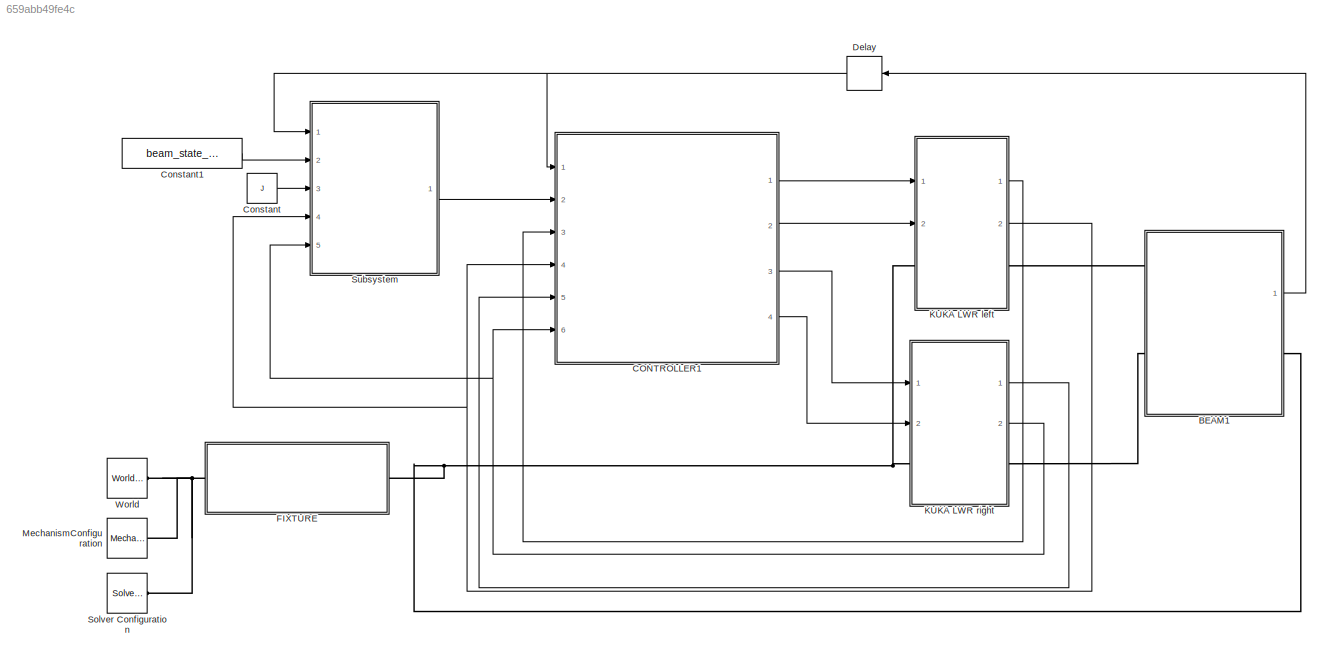
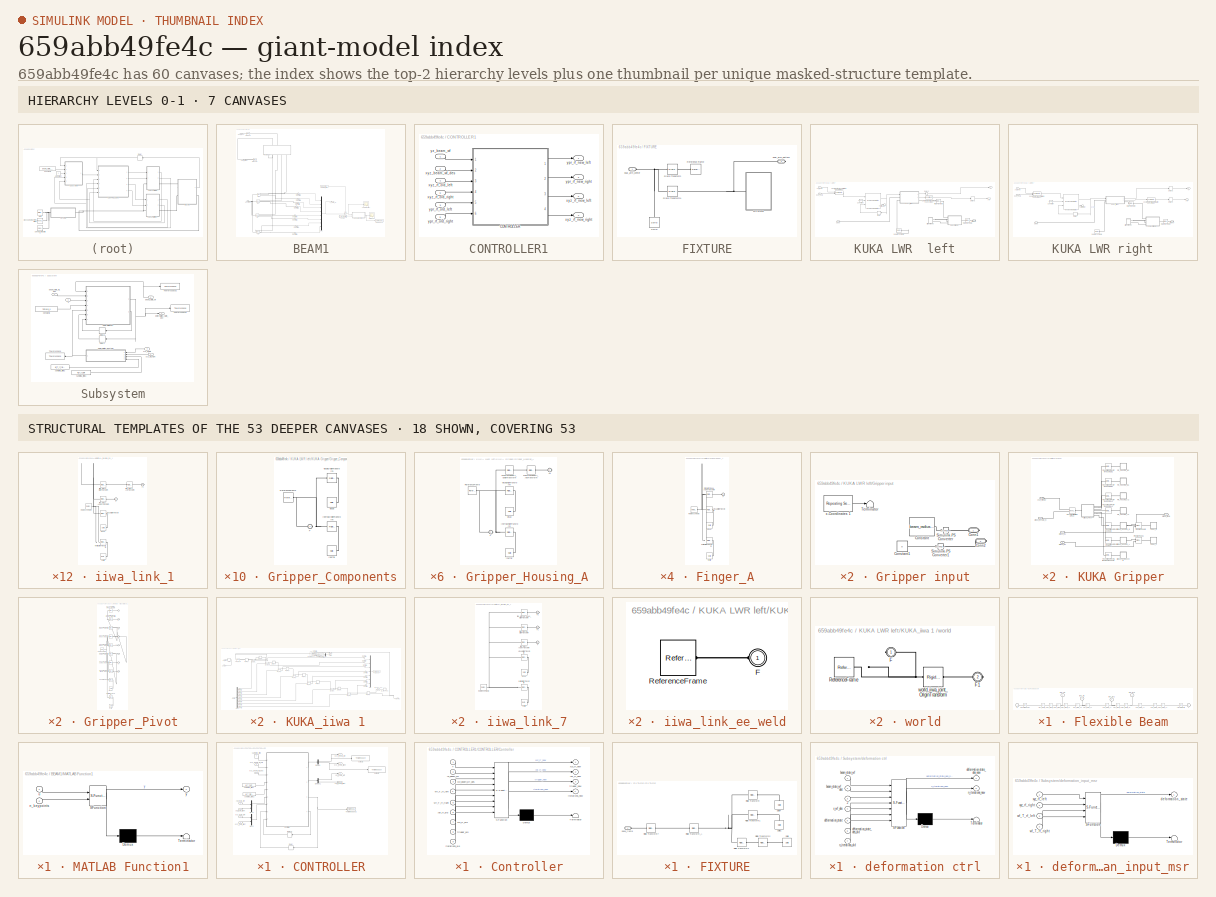
[diagram: thumbnail index - top-2 hierarchy levels (7 canvases) + 18 structural-template representatives of the remaining 53 canvases]
MODEL slx_659abb49fe4c
KIND model
CONFIG AbsTol = auto
CONFIG EnableMultiTasking = off
CONFIG FixedStep = auto
CONFIG MaxStep = auto
CONFIG MinStep = auto
CONFIG RelTol = 1e-3
CONFIG SampleTimeConstraint = Unconstrained
CONFIG Solver = VariableStepAuto
CONFIG SolverName = VariableStepAuto
CONFIG StartTime = 0.0
CONFIG StopTime = 3
BLOCK [SubSystem] BEAM1
  Ports = [0, 1, 0, 0, 0, 2, 1]
  RequestExecContextInheritance = off
BLOCK [Constant] BEAM1/Constant
  Value = n_keypoints
BLOCK [Scope] BEAM1/Coordinates errors1
  Floating = off
  NumInputPorts = 1
  Ports = [1]
  ScopeSpecificationString = Simulink.scopes.TimeScopeBlockCfg('CurrentConfiguration', extmgr.ConfigurationSet(extmgr.Configuration('Core','General UI',true),extmgr.Configuration('Core','Source UI',true),extmgr.Configuration('Sources','WiredSimulink',true,'DataLoggingVariableName','ScopeData1'),extmgr.Configuration('Visuals','Time Domain',true,'SerializedDisplays',{struct('MinYLimReal','-0.02039','MaxYLimReal','0.24956','YLab...<+1903ch>
BLOCK [SubSystem] BEAM1/Flexible Beam
  AncestorBlock = sm_flex_body_lib/Lumped Parameter/Bodies/Flexible Beam
  AttributesFormatString = No of Elem: 12\nRotation: Z
  CopyFcn = %set_param(gcb, 'LinkStatus', 'none')
  Ports = [0, 0, 0, 0, 0, 1, 5]
  RequestExecContextInheritance = off
  Tag = PublishSubsystem
BLOCK [PMIOPort] BEAM1/Flexible Beam/B
  Side = Left
BLOCK [PMIOPort] BEAM1/Flexible Beam/F
  Port = 2
  Side = Right
BLOCK [Reference] BEAM1/Flexible Beam/Flex_Elem_01  REF=sm_flex_body_lib/Lumped Parameter/Bodies/Flex_Element
  Ports = [0, 0, 0, 0, 0, 1, 1]
  SourceBlock = sm_flex_body_lib/Lumped Parameter/Bodies/Flex_Element
  SourceType = Flexible Beam Element
BLOCK [Reference] BEAM1/Flexible Beam/Flex_Elem_02  REF=sm_flex_body_lib/Lumped Parameter/Bodies/Flex_Element
  Ports = [0, 0, 0, 0, 0, 1, 1]
  SourceBlock = sm_flex_body_lib/Lumped Parameter/Bodies/Flex_Element
  SourceType = Flexible Beam Element
BLOCK [Reference] BEAM1/Flexible Beam/Flex_Elem_03  REF=sm_flex_body_lib/Lumped Parameter/Bodies/Flex_Element
  Ports = [0, 0, 0, 0, 0, 1, 1]
  SourceBlock = sm_flex_body_lib/Lumped Parameter/Bodies/Flex_Element
  SourceType = Flexible Beam Element
BLOCK [Reference] BEAM1/Flexible Beam/Flex_Elem_04  REF=sm_flex_body_lib/Lumped Parameter/Bodies/Flex_Element
  Ports = [0, 0, 0, 0, 0, 1, 1]
  SourceBlock = sm_flex_body_lib/Lumped Parameter/Bodies/Flex_Element
  SourceType = Flexible Beam Element
BLOCK [Reference] BEAM1/Flexible Beam/Flex_Elem_05  REF=sm_flex_body_lib/Lumped Parameter/Bodies/Flex_Element
  Ports = [0, 0, 0, 0, 0, 1, 1]
  SourceBlock = sm_flex_body_lib/Lumped Parameter/Bodies/Flex_Element
  SourceType = Flexible Beam Element
BLOCK [Reference] BEAM1/Flexible Beam/Flex_Elem_06  REF=sm_flex_body_lib/Lumped Parameter/Bodies/Flex_Element
  Ports = [0, 0, 0, 0, 0, 1, 1]
  SourceBlock = sm_flex_body_lib/Lumped Parameter/Bodies/Flex_Element
  SourceType = Flexible Beam Element
BLOCK [Reference] BEAM1/Flexible Beam/Flex_Elem_07  REF=sm_flex_body_lib/Lumped Parameter/Bodies/Flex_Element
  Ports = [0, 0, 0, 0, 0, 1, 1]
  SourceBlock = sm_flex_body_lib/Lumped Parameter/Bodies/Flex_Element
  SourceType = Flexible Beam Element
BLOCK [Reference] BEAM1/Flexible Beam/Flex_Elem_08  REF=sm_flex_body_lib/Lumped Parameter/Bodies/Flex_Element
  Ports = [0, 0, 0, 0, 0, 1, 1]
  SourceBlock = sm_flex_body_lib/Lumped Parameter/Bodies/Flex_Element
  SourceType = Flexible Beam Element
BLOCK [Reference] BEAM1/Flexible Beam/Flex_Elem_09  REF=sm_flex_body_lib/Lumped Parameter/Bodies/Flex_Element
  Ports = [0, 0, 0, 0, 0, 1, 1]
  SourceBlock = sm_flex_body_lib/Lumped Parameter/Bodies/Flex_Element
  SourceType = Flexible Beam Element
BLOCK [Reference] BEAM1/Flexible Beam/Flex_Elem_10  REF=sm_flex_body_lib/Lumped Parameter/Bodies/Flex_Element
  Ports = [0, 0, 0, 0, 0, 1, 1]
  SourceBlock = sm_flex_body_lib/Lumped Parameter/Bodies/Flex_Element
  SourceType = Flexible Beam Element
BLOCK [Reference] BEAM1/Flexible Beam/Flex_Elem_11  REF=sm_flex_body_lib/Lumped Parameter/Bodies/Flex_Element
  Ports = [0, 0, 0, 0, 0, 1, 1]
  SourceBlock = sm_flex_body_lib/Lumped Parameter/Bodies/Flex_Element
  SourceType = Flexible Beam Element
BLOCK [Reference] BEAM1/Flexible Beam/Flex_Elem_12  REF=sm_flex_body_lib/Lumped Parameter/Bodies/Flex_Element
  Ports = [0, 0, 0, 0, 0, 1, 1]
  SourceBlock = sm_flex_body_lib/Lumped Parameter/Bodies/Flex_Element
  SourceType = Flexible Beam Element
BLOCK [Reference] BEAM1/Flexible Beam/Transform BeamX  REF=sm_lib/Frames and
Transforms/Rigid
Transform
  Ports = [0, 0, 0, 0, 0, 1, 1]
  SourceBlock = sm_lib/Frames and\nTransforms/Rigid\nTransform
  SourceProductBaseCode = MS
  SourceProductName = Simscape Multibody
  SourceType = Rigid\nTransform
BLOCK [Reference] BEAM1/Flexible Beam/Transform PortF  REF=sm_lib/Frames and
Transforms/Rigid
Transform
  Ports = [0, 0, 0, 0, 0, 1, 1]
  SourceBlock = sm_lib/Frames and\nTransforms/Rigid\nTransform
  SourceProductBaseCode = MS
  SourceProductName = Simscape Multibody
  SourceType = Rigid\nTransform
BLOCK [PMIOPort] BEAM1/Flexible Beam/frame_left1
  Port = 4
  Side = Right
BLOCK [PMIOPort] BEAM1/Flexible Beam/frame_left2
  Port = 3
  Side = Right
BLOCK [PMIOPort] BEAM1/Flexible Beam/frame_right1
  Port = 5
  Side = Right
BLOCK [PMIOPort] BEAM1/Flexible Beam/frame_right2
  Port = 6
  Side = Right
BLOCK [Reference] BEAM1/Gimbal Joint  REF=sm_lib/Joints/Gimbal Joint
  Ports = [0, 0, 0, 0, 0, 1, 1]
  SourceBlock = sm_lib/Joints/Gimbal Joint
  SourceProductBaseCode = MS
  SourceProductName = Simscape Multibody
  SourceType = Gimbal Joint
BLOCK [Reference] BEAM1/Gimbal Joint1  REF=sm_lib/Joints/Gimbal Joint
  Ports = [0, 0, 0, 0, 0, 1, 1]
  SourceBlock = sm_lib/Joints/Gimbal Joint
  SourceProductBaseCode = MS
  SourceProductName = Simscape Multibody
  SourceType = Gimbal Joint
BLOCK [SubSystem] BEAM1/MATLAB Function1
  ErrorFcn = Stateflow.Translate.translate
  PermitHierarchicalResolution = ExplicitOnly
  Ports = [2, 1]
  RequestExecContextInheritance = off
  SFBlockType = MATLAB Function
  TreatAsAtomicUnit = on
BLOCK [Demux] BEAM1/MATLAB Function1/ Demux 
  Outputs = 1
  Ports = [1, 1]
BLOCK [S-Function] BEAM1/MATLAB Function1/ SFunction 
  EnableBusSupport = on
  FunctionName = sf_sfun
  PortCounts = [2 2]
  Ports = [2, 2]
  SFcnIsStateOwnerBlock = off
  SFunctionDeploymentMode = off
  Tag = Stateflow S-Function alignment_bending_procedure_n_4 5
BLOCK [Terminator] BEAM1/MATLAB Function1/ Terminator 
BLOCK [Inport] BEAM1/MATLAB Function1/n_keypoints
  IconDisplay = Port number
  Port = 2
BLOCK [Inport] BEAM1/MATLAB Function1/u
  IconDisplay = Port number
BLOCK [Outport] BEAM1/MATLAB Function1/y
  IconDisplay = Port number
BLOCK [Mux] BEAM1/Mux1
  DisplayOption = bar
  Inputs = 8
  Ports = [8, 1]
BLOCK [Reference] BEAM1/PS-Simulink Converter1  REF=nesl_utility/PS-Simulink
Converter
  Ports = [0, 1, 0, 0, 0, 1]
  SourceBlock = nesl_utility/PS-Simulink\nConverter
  SourceProductBaseCode = SS
  SourceProductName = Simscape
  SourceType = PS-Simulink\nConverter
BLOCK [Reference] BEAM1/PS-Simulink Converter11  REF=nesl_utility/PS-Simulink
Converter
  Ports = [0, 1, 0, 0, 0, 1]
  SourceBlock = nesl_utility/PS-Simulink\nConverter
  SourceProductBaseCode = SS
  SourceProductName = Simscape
  SourceType = PS-Simulink\nConverter
BLOCK [Reference] BEAM1/PS-Simulink Converter12  REF=nesl_utility/PS-Simulink
Converter
  Ports = [0, 1, 0, 0, 0, 1]
  SourceBlock = nesl_utility/PS-Simulink\nConverter
  SourceProductBaseCode = SS
  SourceProductName = Simscape
  SourceType = PS-Simulink\nConverter
BLOCK [Reference] BEAM1/PS-Simulink Converter2  REF=nesl_utility/PS-Simulink
Converter
  Ports = [0, 1, 0, 0, 0, 1]
  SourceBlock = nesl_utility/PS-Simulink\nConverter
  SourceProductBaseCode = SS
  SourceProductName = Simscape
  SourceType = PS-Simulink\nConverter
BLOCK [Reference] BEAM1/PS-Simulink Converter3  REF=nesl_utility/PS-Simulink
Converter
  Ports = [0, 1, 0, 0, 0, 1]
  SourceBlock = nesl_utility/PS-Simulink\nConverter
  SourceProductBaseCode = SS
  SourceProductName = Simscape
  SourceType = PS-Simulink\nConverter
BLOCK [Reference] BEAM1/PS-Simulink Converter4  REF=nesl_utility/PS-Simulink
Converter
  Ports = [0, 1, 0, 0, 0, 1]
  SourceBlock = nesl_utility/PS-Simulink\nConverter
  SourceProductBaseCode = SS
  SourceProductName = Simscape
  SourceType = PS-Simulink\nConverter
BLOCK [Reference] BEAM1/PS-Simulink Converter7  REF=nesl_utility/PS-Simulink
Converter
  Ports = [0, 1, 0, 0, 0, 1]
  SourceBlock = nesl_utility/PS-Simulink\nConverter
  SourceProductBaseCode = SS
  SourceProductName = Simscape
  SourceType = PS-Simulink\nConverter
BLOCK [Reference] BEAM1/PS-Simulink Converter8  REF=nesl_utility/PS-Simulink
Converter
  Ports = [0, 1, 0, 0, 0, 1]
  SourceBlock = nesl_utility/PS-Simulink\nConverter
  SourceProductBaseCode = SS
  SourceProductName = Simscape
  SourceType = PS-Simulink\nConverter
BLOCK [Sum] BEAM1/Sum1
  IconShape = round
  InputSameDT = off
  Inputs = -+|
  OutDataTypeStr = Inherit: Inherit via internal rule
  Ports = [2, 1]
  SaturateOnIntegerOverflow = off
BLOCK [ToWorkspace] BEAM1/To Workspace1
  FixptAsFi = on
  MaxDataPoints = inf
  Ports = [1]
  SampleTime = T
  Save2DSignal = 2-D array (concatenate along first dimension)
  VariableName = error_norm
BLOCK [PMIOPort] BEAM1/base_frame
  Port = 3
  Side = Right
BLOCK [PMIOPort] BEAM1/beam_base
  Side = Left
BLOCK [PMIOPort] BEAM1/beam_follower
  Port = 2
  Side = Left
BLOCK [Scope] BEAM1/error measure
  Floating = off
  NumInputPorts = 1
  Ports = [1]
  ScopeSpecificationString = Simulink.scopes.TimeScopeBlockCfg('CurrentConfiguration', extmgr.ConfigurationSet(extmgr.Configuration('Core','General UI',true),extmgr.Configuration('Core','Source UI',true),extmgr.Configuration('Sources','WiredSimulink',true,'DataLoggingVariableName','ScopeData2'),extmgr.Configuration('Visuals','Time Domain',true,'SerializedDisplays',{struct('MinYLimReal','-0.01312','MaxYLimReal','0.13274','YLab...<+1933ch>
BLOCK [Reference] BEAM1/left1  REF=sm_lib/Frames and
Transforms/Transform
Sensor
  Ports = [0, 0, 0, 0, 0, 1, 3]
  SourceBlock = sm_lib/Frames and\nTransforms/Transform\nSensor
  SourceProductBaseCode = MS
  SourceProductName = Simscape Multibody
  SourceType = Transform\nSensor
BLOCK [Reference] BEAM1/left2  REF=sm_lib/Frames and
Transforms/Transform
Sensor
  Ports = [0, 0, 0, 0, 0, 1, 3]
  SourceBlock = sm_lib/Frames and\nTransforms/Transform\nSensor
  SourceProductBaseCode = MS
  SourceProductName = Simscape Multibody
  SourceType = Transform\nSensor
BLOCK [Reference] BEAM1/right1  REF=sm_lib/Frames and
Transforms/Transform
Sensor
  Ports = [0, 0, 0, 0, 0, 1, 3]
  SourceBlock = sm_lib/Frames and\nTransforms/Transform\nSensor
  SourceProductBaseCode = MS
  SourceProductName = Simscape Multibody
  SourceType = Transform\nSensor
BLOCK [Reference] BEAM1/right2  REF=sm_lib/Frames and
Transforms/Transform
Sensor
  Ports = [0, 0, 0, 0, 0, 1, 3]
  SourceBlock = sm_lib/Frames and\nTransforms/Transform\nSensor
  SourceProductBaseCode = MS
  SourceProductName = Simscape Multibody
  SourceType = Transform\nSensor
BLOCK [Constant] BEAM1/sampling_time2
  Value = beam_state_wf_des
BLOCK [Outport] BEAM1/yz_beam_wf
  IconDisplay = Port number
BLOCK [SubSystem] CONTROLLER1
  Ports = [6, 4]
  RequestExecContextInheritance = off
BLOCK [SubSystem] CONTROLLER1/CONTROLLER
  Ports = [6, 4]
  RequestExecContextInheritance = off
BLOCK [SubSystem] CONTROLLER1/CONTROLLER/Controller
  ErrorFcn = Stateflow.Translate.translate
  PermitHierarchicalResolution = ExplicitOnly
  Ports = [9, 4]
  RequestExecContextInheritance = off
  SFBlockType = MATLAB Function
  TreatAsAtomicUnit = on
BLOCK [Demux] CONTROLLER1/CONTROLLER/Controller/ Demux 
  Outputs = 1
  Ports = [1, 1]
BLOCK [S-Function] CONTROLLER1/CONTROLLER/Controller/ SFunction 
  EnableBusSupport = on
  FunctionName = sf_sfun
  PortCounts = [9 5]
  Ports = [9, 5]
  SFcnIsStateOwnerBlock = off
  SFunctionDeploymentMode = off
  Tag = Stateflow S-Function alignment_bending_procedure_n_4 2
BLOCK [Terminator] CONTROLLER1/CONTROLLER/Controller/ Terminator 
BLOCK [Inport] CONTROLLER1/CONTROLLER/Controller/T
  IconDisplay = Port number
BLOCK [Outport] CONTROLLER1/CONTROLLER/Controller/iterations_new
  IconDisplay = Port number
  Port = 4
BLOCK [Inport] CONTROLLER1/CONTROLLER/Controller/iterations_old
  IconDisplay = Port number
  Port = 9
BLOCK [Outport] CONTROLLER1/CONTROLLER/Controller/trigger_new
  IconDisplay = Port number
  Port = 3
BLOCK [Inport] CONTROLLER1/CONTROLLER/Controller/trigger_old
  IconDisplay = Port number
  Port = 8
BLOCK [Inport] CONTROLLER1/CONTROLLER/Controller/wf_T_rf_left
  IconDisplay = Port number
  Port = 4
BLOCK [Inport] CONTROLLER1/CONTROLLER/Controller/wf_T_rf_right
  IconDisplay = Port number
  Port = 5
BLOCK [Inport] CONTROLLER1/CONTROLLER/Controller/xyz_beam_wf_des
  IconDisplay = Port number
  Port = 3
BLOCK [Outport] CONTROLLER1/CONTROLLER/Controller/xyz_rf_new
  IconDisplay = Port number
BLOCK [Inport] CONTROLLER1/CONTROLLER/Controller/xyz_rf_old
  IconDisplay = Port number
  Port = 7
BLOCK [Outport] CONTROLLER1/CONTROLLER/Controller/ypr_rf_new
  IconDisplay = Port number
  Port = 2
BLOCK [Inport] CONTROLLER1/CONTROLLER/Controller/ypr_rf_old
  IconDisplay = Port number
  Port = 6
BLOCK [Inport] CONTROLLER1/CONTROLLER/Controller/yz_beam_wf
  IconDisplay = Port number
  Port = 2
BLOCK [Delay] CONTROLLER1/CONTROLLER/Delay
  DelayLength = 1
  InitialCondition = zeros(5,1)
  InputPortMap = u0
  Ports = [1, 1]
BLOCK [Delay] CONTROLLER1/CONTROLLER/Delay2
  DelayLength = 1
  InitialCondition = 0
  InputPortMap = u0
  Ports = [1, 1]
  SampleTime = T
BLOCK [Demux] CONTROLLER1/CONTROLLER/Demux
  DisplayOption = bar
  Outputs = [3 3]
  Ports = [1, 2]
BLOCK [Demux] CONTROLLER1/CONTROLLER/Demux1
  DisplayOption = bar
  Outputs = [3 3]
  Ports = [1, 2]
BLOCK [Mux] CONTROLLER1/CONTROLLER/Mux1
  DisplayOption = bar
  Inputs = 2
  Ports = [2, 1]
BLOCK [Mux] CONTROLLER1/CONTROLLER/Mux2
  DisplayOption = bar
  Inputs = 2
  Ports = [2, 1]
BLOCK [ToWorkspace] CONTROLLER1/CONTROLLER/To Workspace2
  FixptAsFi = on
  MaxDataPoints = inf
  Ports = [1]
  SampleTime = -1
  Save2DSignal = 3-D array (concatenate along third dimension)
  VariableName = trigger
BLOCK [ToWorkspace] CONTROLLER1/CONTROLLER/output1
  FixptAsFi = on
  MaxDataPoints = inf
  Ports = [1]
  SampleTime = -1
  Save2DSignal = 2-D array (concatenate along first dimension)
  VariableName = xyz_rf_new_left
BLOCK [ToWorkspace] CONTROLLER1/CONTROLLER/output2
  FixptAsFi = on
  MaxDataPoints = inf
  Ports = [1]
  SampleTime = -1
  Save2DSignal = 2-D array (concatenate along first dimension)
  VariableName = xyz_rf_new_right
BLOCK [Constant] CONTROLLER1/CONTROLLER/sampling_time
  Value = T
BLOCK [Constant] CONTROLLER1/CONTROLLER/sampling_time1
  Value = wf_T_rf_left
BLOCK [Constant] CONTROLLER1/CONTROLLER/sampling_time2
  Value = wf_T_rf_right
BLOCK [Inport] CONTROLLER1/CONTROLLER/xyz_beam_wf_des
  IconDisplay = Port number
  Port = 2
BLOCK [Inport] CONTROLLER1/CONTROLLER/xyz_beam_wf_old
  IconDisplay = Port number
BLOCK [Outport] CONTROLLER1/CONTROLLER/xyz_rf_new_left
  IconDisplay = Port number
  Port = 3
BLOCK [Outport] CONTROLLER1/CONTROLLER/xyz_rf_new_right
  IconDisplay = Port number
  Port = 4
BLOCK [Inport] CONTROLLER1/CONTROLLER/xyz_rf_old_left 
  IconDisplay = Port number
  Port = 3
BLOCK [Inport] CONTROLLER1/CONTROLLER/xyz_rf_old_right
  IconDisplay = Port number
  Port = 4
BLOCK [Outport] CONTROLLER1/CONTROLLER/ypr_rf_new_left
  IconDisplay = Port number
BLOCK [Outport] CONTROLLER1/CONTROLLER/ypr_rf_new_right
  IconDisplay = Port number
  Port = 2
BLOCK [Inport] CONTROLLER1/CONTROLLER/ypr_rf_old_left
  IconDisplay = Port number
  Port = 5
BLOCK [Inport] CONTROLLER1/CONTROLLER/ypr_rf_old_right
  IconDisplay = Port number
  Port = 6
BLOCK [Inport] CONTROLLER1/xyz_beam_wf_des
  IconDisplay = Port number
  Port = 2
BLOCK [Outport] CONTROLLER1/xyz_rf_new_left
  IconDisplay = Port number
  Port = 2
BLOCK [Outport] CONTROLLER1/xyz_rf_new_right
  IconDisplay = Port number
  Port = 4
BLOCK [Inport] CONTROLLER1/xyz_rf_old_left
  IconDisplay = Port number
  Port = 4
BLOCK [Inport] CONTROLLER1/xyz_rf_old_right
  IconDisplay = Port number
  Port = 6
BLOCK [Outport] CONTROLLER1/ypr_rf_new_left
  IconDisplay = Port number
BLOCK [Outport] CONTROLLER1/ypr_rf_new_right
  IconDisplay = Port number
  Port = 3
BLOCK [Inport] CONTROLLER1/ypr_rf_old_left
  IconDisplay = Port number
  Port = 3
BLOCK [Inport] CONTROLLER1/ypr_rf_old_right
  IconDisplay = Port number
  Port = 5
BLOCK [Inport] CONTROLLER1/yz_beam_wf
  IconDisplay = Port number
BLOCK [Constant] Constant
  Value = J
BLOCK [Constant] Constant1
  Value = beam_state_wf_des
BLOCK [Delay] Delay
  DelayLength = 1
  InitialCondition = -9999*ones(2*n_keypoints,1)
  InputPortMap = u0
  Ports = [1, 1]
BLOCK [SubSystem] FIXTURE
  Ports = [0, 0, 0, 0, 0, 1, 1]
  RequestExecContextInheritance = off
BLOCK [SubSystem] FIXTURE/FIXTURE
  Ports = [0, 0, 0, 0, 0, 1]
  RequestExecContextInheritance = off
BLOCK [Reference] FIXTURE/FIXTURE/Rigid Transform  REF=sm_lib/Frames and
Transforms/Rigid
Transform
  Ports = [0, 0, 0, 0, 0, 1, 1]
  SourceBlock = sm_lib/Frames and\nTransforms/Rigid\nTransform
  SourceProductBaseCode = MS
  SourceProductName = Simscape Multibody
  SourceType = Rigid\nTransform
BLOCK [Reference] FIXTURE/FIXTURE/Rigid Transform1  REF=sm_lib/Frames and
Transforms/Rigid
Transform
  Ports = [0, 0, 0, 0, 0, 1, 1]
  SourceBlock = sm_lib/Frames and\nTransforms/Rigid\nTransform
  SourceProductBaseCode = MS
  SourceProductName = Simscape Multibody
  SourceType = Rigid\nTransform
BLOCK [Reference] FIXTURE/FIXTURE/Rigid Transform2  REF=sm_lib/Frames and
Transforms/Rigid
Transform
  Ports = [0, 0, 0, 0, 0, 1, 1]
  SourceBlock = sm_lib/Frames and\nTransforms/Rigid\nTransform
  SourceProductBaseCode = MS
  SourceProductName = Simscape Multibody
  SourceType = Rigid\nTransform
BLOCK [Reference] FIXTURE/FIXTURE/Rigid Transform3  REF=sm_lib/Frames and
Transforms/Rigid
Transform
  Ports = [0, 0, 0, 0, 0, 1, 1]
  SourceBlock = sm_lib/Frames and\nTransforms/Rigid\nTransform
  SourceProductBaseCode = MS
  SourceProductName = Simscape Multibody
  SourceType = Rigid\nTransform
BLOCK [Reference] FIXTURE/FIXTURE/Rigid Transform7  REF=sm_lib/Frames and
Transforms/Rigid
Transform
  Ports = [0, 0, 0, 0, 0, 1, 1]
  SourceBlock = sm_lib/Frames and\nTransforms/Rigid\nTransform
  SourceProductBaseCode = MS
  SourceProductName = Simscape Multibody
  SourceType = Rigid\nTransform
BLOCK [Reference] FIXTURE/FIXTURE/Rigid Transform_A  REF=sm_lib/Frames and
Transforms/Rigid
Transform
  Ports = [0, 0, 0, 0, 0, 1, 1]
  SourceBlock = sm_lib/Frames and\nTransforms/Rigid\nTransform
  SourceProductBaseCode = MS
  SourceProductName = Simscape Multibody
  SourceType = Rigid\nTransform
BLOCK [Reference] FIXTURE/FIXTURE/Solid  REF=sm_lib/Body Elements/Solid
  Ports = [0, 0, 0, 0, 0, 0, 1]
  SourceBlock = sm_lib/Body Elements/Solid
  SourceProductBaseCode = MS
  SourceProductName = Simscape Multibody
  SourceType = Solid
BLOCK [Reference] FIXTURE/FIXTURE/Solid1  REF=sm_lib/Body Elements/Solid
  Ports = [0, 0, 0, 0, 0, 0, 1]
  SourceBlock = sm_lib/Body Elements/Solid
  SourceProductBaseCode = MS
  SourceProductName = Simscape Multibody
  SourceType = Solid
BLOCK [Reference] FIXTURE/FIXTURE/Solid4  REF=sm_lib/Body Elements/Solid
  Ports = [0, 0, 0, 0, 0, 0, 1]
  SourceBlock = sm_lib/Body Elements/Solid
  SourceProductBaseCode = MS
  SourceProductName = Simscape Multibody
  SourceType = Solid
BLOCK [PMIOPort] FIXTURE/FIXTURE/base_frame
  Side = Left
BLOCK [Reference] FIXTURE/Reference Frame  REF=sm_lib/Frames and
Transforms/Reference
Frame
  Ports = [0, 0, 0, 0, 0, 0, 1]
  SourceBlock = sm_lib/Frames and\nTransforms/Reference\nFrame
  SourceProductBaseCode = MS
  SourceProductName = Simscape Multibody
  SourceType = Reference\nFrame
BLOCK [Reference] FIXTURE/Rigid Transform  REF=sm_lib/Frames and
Transforms/Rigid
Transform
  Ports = [0, 0, 0, 0, 0, 1, 1]
  SourceBlock = sm_lib/Frames and\nTransforms/Rigid\nTransform
  SourceProductBaseCode = MS
  SourceProductName = Simscape Multibody
  SourceType = Rigid\nTransform
BLOCK [Reference] FIXTURE/Rigid Transform1  REF=sm_lib/Frames and
Transforms/Rigid
Transform
  Ports = [0, 0, 0, 0, 0, 1, 1]
  SourceBlock = sm_lib/Frames and\nTransforms/Rigid\nTransform
  SourceProductBaseCode = MS
  SourceProductName = Simscape Multibody
  SourceType = Rigid\nTransform
BLOCK [Reference] FIXTURE/Solid  REF=sm_lib/Body Elements/Solid
  Ports = [0, 0, 0, 0, 0, 0, 1]
  SourceBlock = sm_lib/Body Elements/Solid
  SourceProductBaseCode = MS
  SourceProductName = Simscape Multibody
  SourceType = Solid
BLOCK [PMIOPort] FIXTURE/dual_arm_bottom
  Port = 2
  Side = Right
BLOCK [PMIOPort] FIXTURE/dual_arm_center
  Side = Left
BLOCK [SubSystem] KUKA LWR  left
  Ports = [2, 2, 0, 0, 0, 1, 1]
  RequestExecContextInheritance = off
BLOCK [Constant] KUKA LWR  left/Constant
  Value = [1 1 1 1 1 1]
BLOCK [Reference] KUKA LWR  left/Coordinate Transformation Conversion  REF=robotcorelib/Coordinate Transformation Conversion
  Ports = [1, 1]
  SourceBlock = robotcorelib/Coordinate Transformation Conversion
  SourceProductBaseCode = RO
  SourceProductName = Robotics System Toolbox
  SourceType = robotics.slcore.internal.block.CoordinateTransformationConversion
BLOCK [Reference] KUKA LWR  left/Coordinate Transformation Conversion1  REF=robotcorelib/Coordinate Transformation Conversion
  Ports = [2, 1]
  SourceBlock = robotcorelib/Coordinate Transformation Conversion
  SourceProductBaseCode = RO
  SourceProductName = Robotics System Toolbox
  SourceType = robotics.slcore.internal.block.CoordinateTransformationConversion
BLOCK [Delay] KUKA LWR  left/Delay
  DelayLength = 1
  InitialCondition = [0 0 0 0 0 0 0]'
  InputPortMap = u0
  Ports = [1, 1]
  SampleTime = T
BLOCK [Delay] KUKA LWR  left/Delay1
  DelayLength = 1
  InitialCondition = ee_initial_orientation
  InputPortMap = u0
  Ports = [1, 1]
BLOCK [Delay] KUKA LWR  left/Delay2
  DelayLength = 1
  InitialCondition = ee_initial_position
  InputPortMap = u0
  Ports = [1, 1]
BLOCK [SubSystem] KUKA LWR  left/Gripper input
  Ports = [0, 0, 0, 0, 0, 0, 2]
  RequestExecContextInheritance = off
BLOCK [PMIOPort] KUKA LWR  left/Gripper input/Conn1
  Side = Right
BLOCK [PMIOPort] KUKA LWR  left/Gripper input/Conn2
  Port = 2
  Side = Right
BLOCK [Constant] KUKA LWR  left/Gripper input/Constant
  SampleTime = T
  Value = beam_radius/2
BLOCK [Constant] KUKA LWR  left/Gripper input/Constant1
  Value = 0
BLOCK [Reference] KUKA LWR  left/Gripper input/Simulink-PS Converter  REF=nesl_utility/Simulink-PS
Converter
  Ports = [1, 0, 0, 0, 0, 0, 1]
  SourceBlock = nesl_utility/Simulink-PS\nConverter
  SourceProductBaseCode = SS
  SourceProductName = Simscape
  SourceType = Simulink-PS\nConverter
BLOCK [Reference] KUKA LWR  left/Gripper input/Simulink-PS Converter1  REF=nesl_utility/Simulink-PS
Converter
  Ports = [1, 0, 0, 0, 0, 0, 1]
  SourceBlock = nesl_utility/Simulink-PS\nConverter
  SourceProductBaseCode = SS
  SourceProductName = Simscape
  SourceType = Simulink-PS\nConverter
BLOCK [Terminator] KUKA LWR  left/Gripper input/Terminator
BLOCK [Reference] KUKA LWR  left/Gripper input/x-Coordinates 1  REF=simulink/Sources/Repeating
Sequence
Interpolated
  Ports = [0, 1]
  SourceBlock = simulink/Sources/Repeating\nSequence\nInterpolated
  SourceProductBaseCode = SL
  SourceProductName = Simulink
  SourceType = Repeating Sequence Interpolated
BLOCK [Reference] KUKA LWR  left/Inverse Kinematics  REF=robotmaniplib/Inverse Kinematics
  Ports = [3, 2]
  SourceBlock = robotmaniplib/Inverse Kinematics
  SourceProductBaseCode = RO
  SourceProductName = Robotics System Toolbox
  SourceType = Inverse Kinematics
BLOCK [SubSystem] KUKA LWR  left/KUKA Gripper
  Ports = [0, 0, 0, 0, 0, 4, 1]
  RequestExecContextInheritance = off
BLOCK [SubSystem] KUKA LWR  left/KUKA Gripper/Finger_A
  Ports = [0, 0, 0, 0, 0, 1]
  RequestExecContextInheritance = off
BLOCK [PMIOPort] KUKA LWR  left/KUKA Gripper/Finger_A/F
  Side = Left
BLOCK [Reference] KUKA LWR  left/KUKA Gripper/Finger_A/Inertia  REF=sm_lib/Body Elements/Solid
  Ports = [0, 0, 0, 0, 0, 0, 1]
  SourceBlock = sm_lib/Body Elements/Solid
  SourceProductBaseCode = MS
  SourceProductName = Simscape Multibody
  SourceType = Solid
BLOCK [Reference] KUKA LWR  left/KUKA Gripper/Finger_A/InertiaOriginTransform  REF=sm_lib/Frames and
Transforms/Rigid
Transform
  Ports = [0, 0, 0, 0, 0, 1, 1]
  SourceBlock = sm_lib/Frames and\nTransforms/Rigid\nTransform
  SourceProductBaseCode = MS
  SourceProductName = Simscape Multibody
  SourceType = Rigid\nTransform
BLOCK [Reference] KUKA LWR  left/KUKA Gripper/Finger_A/PrismaticFingerA_AxisInvTransform  REF=sm_lib/Frames and
Transforms/Rigid
Transform
  Ports = [0, 0, 0, 0, 0, 1, 1]
  SourceBlock = sm_lib/Frames and\nTransforms/Rigid\nTransform
  SourceProductBaseCode = MS
  SourceProductName = Simscape Multibody
  SourceType = Rigid\nTransform
BLOCK [Reference] KUKA LWR  left/KUKA Gripper/Finger_A/ReferenceFrame  REF=sm_lib/Frames and
Transforms/Reference
Frame
  Ports = [0, 0, 0, 0, 0, 0, 1]
  SourceBlock = sm_lib/Frames and\nTransforms/Reference\nFrame
  SourceProductBaseCode = MS
  SourceProductName = Simscape Multibody
  SourceType = Reference\nFrame
BLOCK [Reference] KUKA LWR  left/KUKA Gripper/Finger_A/Visual  REF=sm_lib/Body Elements/Solid
  Ports = [0, 0, 0, 0, 0, 0, 1]
  SourceBlock = sm_lib/Body Elements/Solid
  SourceProductBaseCode = MS
  SourceProductName = Simscape Multibody
  SourceType = Solid
BLOCK [Reference] KUKA LWR  left/KUKA Gripper/Finger_A/VisualOriginTransform  REF=sm_lib/Frames and
Transforms/Rigid
Transform
  Ports = [0, 0, 0, 0, 0, 1, 1]
  SourceBlock = sm_lib/Frames and\nTransforms/Rigid\nTransform
  SourceProductBaseCode = MS
  SourceProductName = Simscape Multibody
  SourceType = Rigid\nTransform
BLOCK [SubSystem] KUKA LWR  left/KUKA Gripper/Finger_B
  Ports = [0, 0, 0, 0, 0, 1]
  RequestExecContextInheritance = off
BLOCK [PMIOPort] KUKA LWR  left/KUKA Gripper/Finger_B/F
  Side = Left
BLOCK [Reference] KUKA LWR  left/KUKA Gripper/Finger_B/Inertia  REF=sm_lib/Body Elements/Solid
  Ports = [0, 0, 0, 0, 0, 0, 1]
  SourceBlock = sm_lib/Body Elements/Solid
  SourceProductBaseCode = MS
  SourceProductName = Simscape Multibody
  SourceType = Solid
BLOCK [Reference] KUKA LWR  left/KUKA Gripper/Finger_B/InertiaOriginTransform  REF=sm_lib/Frames and
Transforms/Rigid
Transform
  Ports = [0, 0, 0, 0, 0, 1, 1]
  SourceBlock = sm_lib/Frames and\nTransforms/Rigid\nTransform
  SourceProductBaseCode = MS
  SourceProductName = Simscape Multibody
  SourceType = Rigid\nTransform
BLOCK [Reference] KUKA LWR  left/KUKA Gripper/Finger_B/PrismaticFingerB_AxisInvTransform  REF=sm_lib/Frames and
Transforms/Rigid
Transform
  Ports = [0, 0, 0, 0, 0, 1, 1]
  SourceBlock = sm_lib/Frames and\nTransforms/Rigid\nTransform
  SourceProductBaseCode = MS
  SourceProductName = Simscape Multibody
  SourceType = Rigid\nTransform
BLOCK [Reference] KUKA LWR  left/KUKA Gripper/Finger_B/ReferenceFrame  REF=sm_lib/Frames and
Transforms/Reference
Frame
  Ports = [0, 0, 0, 0, 0, 0, 1]
  SourceBlock = sm_lib/Frames and\nTransforms/Reference\nFrame
  SourceProductBaseCode = MS
  SourceProductName = Simscape Multibody
  SourceType = Reference\nFrame
BLOCK [Reference] KUKA LWR  left/KUKA Gripper/Finger_B/Visual  REF=sm_lib/Body Elements/Solid
  Ports = [0, 0, 0, 0, 0, 0, 1]
  SourceBlock = sm_lib/Body Elements/Solid
  SourceProductBaseCode = MS
  SourceProductName = Simscape Multibody
  SourceType = Solid
BLOCK [Reference] KUKA LWR  left/KUKA Gripper/Finger_B/VisualOriginTransform  REF=sm_lib/Frames and
Transforms/Rigid
Transform
  Ports = [0, 0, 0, 0, 0, 1, 1]
  SourceBlock = sm_lib/Frames and\nTransforms/Rigid\nTransform
  SourceProductBaseCode = MS
  SourceProductName = Simscape Multibody
  SourceType = Rigid\nTransform
BLOCK [Reference] KUKA LWR  left/KUKA Gripper/FixedGripperPivotGripperComponents  REF=sm_lib/Joints/Weld Joint
  Ports = [0, 0, 0, 0, 0, 1, 1]
  SourceBlock = sm_lib/Joints/Weld Joint
  SourceProductBaseCode = MS
  SourceProductName = Simscape Multibody
  SourceType = Weld Joint
BLOCK [Reference] KUKA LWR  left/KUKA Gripper/FixedGripperPivotHousingA  REF=sm_lib/Joints/Weld Joint
  Ports = [0, 0, 0, 0, 0, 1, 1]
  SourceBlock = sm_lib/Joints/Weld Joint
  SourceProductBaseCode = MS
  SourceProductName = Simscape Multibody
  SourceType = Weld Joint
BLOCK [Reference] KUKA LWR  left/KUKA Gripper/FixedGripperPivotHousingB  REF=sm_lib/Joints/Weld Joint
  Ports = [0, 0, 0, 0, 0, 1, 1]
  SourceBlock = sm_lib/Joints/Weld Joint
  SourceProductBaseCode = MS
  SourceProductName = Simscape Multibody
  SourceType = Weld Joint
BLOCK [Reference] KUKA LWR  left/KUKA Gripper/FixedGripperPivotPinHousingA1  REF=sm_lib/Joints/Weld Joint
  Ports = [0, 0, 0, 0, 0, 1, 1]
  SourceBlock = sm_lib/Joints/Weld Joint
  SourceProductBaseCode = MS
  SourceProductName = Simscape Multibody
  SourceType = Weld Joint
BLOCK [Reference] KUKA LWR  left/KUKA Gripper/FixedGripperPivotPinHousingA2  REF=sm_lib/Joints/Weld Joint
  Ports = [0, 0, 0, 0, 0, 1, 1]
  SourceBlock = sm_lib/Joints/Weld Joint
  SourceProductBaseCode = MS
  SourceProductName = Simscape Multibody
  SourceType = Weld Joint
BLOCK [Reference] KUKA LWR  left/KUKA Gripper/FixedGripperPivotPinHousingB1  REF=sm_lib/Joints/Weld Joint
  Ports = [0, 0, 0, 0, 0, 1, 1]
  SourceBlock = sm_lib/Joints/Weld Joint
  SourceProductBaseCode = MS
  SourceProductName = Simscape Multibody
  SourceType = Weld Joint
BLOCK [Reference] KUKA LWR  left/KUKA Gripper/FixedGripperPivotPinHousingB2  REF=sm_lib/Joints/Weld Joint
  Ports = [0, 0, 0, 0, 0, 1, 1]
  SourceBlock = sm_lib/Joints/Weld Joint
  SourceProductBaseCode = MS
  SourceProductName = Simscape Multibody
  SourceType = Weld Joint
BLOCK [SubSystem] KUKA LWR  left/KUKA Gripper/Gripper_Components
  Ports = [0, 0, 0, 0, 0, 1]
  RequestExecContextInheritance = off
BLOCK [PMIOPort] KUKA LWR  left/KUKA Gripper/Gripper_Components/F
  Side = Left
BLOCK [Reference] KUKA LWR  left/KUKA Gripper/Gripper_Components/Inertia  REF=sm_lib/Body Elements/Solid
  Ports = [0, 0, 0, 0, 0, 0, 1]
  SourceBlock = sm_lib/Body Elements/Solid
  SourceProductBaseCode = MS
  SourceProductName = Simscape Multibody
  SourceType = Solid
BLOCK [Reference] KUKA LWR  left/KUKA Gripper/Gripper_Components/InertiaOriginTransform  REF=sm_lib/Frames and
Transforms/Rigid
Transform
  Ports = [0, 0, 0, 0, 0, 1, 1]
  SourceBlock = sm_lib/Frames and\nTransforms/Rigid\nTransform
  SourceProductBaseCode = MS
  SourceProductName = Simscape Multibody
  SourceType = Rigid\nTransform
BLOCK [Reference] KUKA LWR  left/KUKA Gripper/Gripper_Components/ReferenceFrame  REF=sm_lib/Frames and
Transforms/Reference
Frame
  Ports = [0, 0, 0, 0, 0, 0, 1]
  SourceBlock = sm_lib/Frames and\nTransforms/Reference\nFrame
  SourceProductBaseCode = MS
  SourceProductName = Simscape Multibody
  SourceType = Reference\nFrame
BLOCK [Reference] KUKA LWR  left/KUKA Gripper/Gripper_Components/Visual  REF=sm_lib/Body Elements/Solid
  Ports = [0, 0, 0, 0, 0, 0, 1]
  SourceBlock = sm_lib/Body Elements/Solid
  SourceProductBaseCode = MS
  SourceProductName = Simscape Multibody
  SourceType = Solid
BLOCK [Reference] KUKA LWR  left/KUKA Gripper/Gripper_Components/VisualOriginTransform  REF=sm_lib/Frames and
Transforms/Rigid
Transform
  Ports = [0, 0, 0, 0, 0, 1, 1]
  SourceBlock = sm_lib/Frames and\nTransforms/Rigid\nTransform
  SourceProductBaseCode = MS
  SourceProductName = Simscape Multibody
  SourceType = Rigid\nTransform
BLOCK [SubSystem] KUKA LWR  left/KUKA Gripper/Gripper_Housing_A
  Ports = [0, 0, 0, 0, 0, 1, 1]
  RequestExecContextInheritance = off
BLOCK [PMIOPort] KUKA LWR  left/KUKA Gripper/Gripper_Housing_A/F
  Side = Left
BLOCK [PMIOPort] KUKA LWR  left/KUKA Gripper/Gripper_Housing_A/F1
  Port = 2
  Side = Right
BLOCK [Reference] KUKA LWR  left/KUKA Gripper/Gripper_Housing_A/Inertia  REF=sm_lib/Body Elements/Solid
  Ports = [0, 0, 0, 0, 0, 0, 1]
  SourceBlock = sm_lib/Body Elements/Solid
  SourceProductBaseCode = MS
  SourceProductName = Simscape Multibody
  SourceType = Solid
BLOCK [Reference] KUKA LWR  left/KUKA Gripper/Gripper_Housing_A/InertiaOriginTransform  REF=sm_lib/Frames and
Transforms/Rigid
Transform
  Ports = [0, 0, 0, 0, 0, 1, 1]
  SourceBlock = sm_lib/Frames and\nTransforms/Rigid\nTransform
  SourceProductBaseCode = MS
  SourceProductName = Simscape Multibody
  SourceType = Rigid\nTransform
BLOCK [Reference] KUKA LWR  left/KUKA Gripper/Gripper_Housing_A/PrismaticFingerA_AxisTransform  REF=sm_lib/Frames and
Transforms/Rigid
Transform
  Ports = [0, 0, 0, 0, 0, 1, 1]
  SourceBlock = sm_lib/Frames and\nTransforms/Rigid\nTransform
  SourceProductBaseCode = MS
  SourceProductName = Simscape Multibody
  SourceType = Rigid\nTransform
BLOCK [Reference] KUKA LWR  left/KUKA Gripper/Gripper_Housing_A/PrismaticFingerA_OriginTransform  REF=sm_lib/Frames and
Transforms/Rigid
Transform
  Ports = [0, 0, 0, 0, 0, 1, 1]
  SourceBlock = sm_lib/Frames and\nTransforms/Rigid\nTransform
  SourceProductBaseCode = MS
  SourceProductName = Simscape Multibody
  SourceType = Rigid\nTransform
BLOCK [Reference] KUKA LWR  left/KUKA Gripper/Gripper_Housing_A/ReferenceFrame  REF=sm_lib/Frames and
Transforms/Reference
Frame
  Ports = [0, 0, 0, 0, 0, 0, 1]
  SourceBlock = sm_lib/Frames and\nTransforms/Reference\nFrame
  SourceProductBaseCode = MS
  SourceProductName = Simscape Multibody
  SourceType = Reference\nFrame
BLOCK [Reference] KUKA LWR  left/KUKA Gripper/Gripper_Housing_A/Visual  REF=sm_lib/Body Elements/Solid
  Ports = [0, 0, 0, 0, 0, 0, 1]
  SourceBlock = sm_lib/Body Elements/Solid
  SourceProductBaseCode = MS
  SourceProductName = Simscape Multibody
  SourceType = Solid
BLOCK [Reference] KUKA LWR  left/KUKA Gripper/Gripper_Housing_A/VisualOriginTransform  REF=sm_lib/Frames and
Transforms/Rigid
Transform
  Ports = [0, 0, 0, 0, 0, 1, 1]
  SourceBlock = sm_lib/Frames and\nTransforms/Rigid\nTransform
  SourceProductBaseCode = MS
  SourceProductName = Simscape Multibody
  SourceType = Rigid\nTransform
BLOCK [SubSystem] KUKA LWR  left/KUKA Gripper/Gripper_Housing_B
  Ports = [0, 0, 0, 0, 0, 1, 1]
  RequestExecContextInheritance = off
BLOCK [PMIOPort] KUKA LWR  left/KUKA Gripper/Gripper_Housing_B/F
  Side = Left
BLOCK [PMIOPort] KUKA LWR  left/KUKA Gripper/Gripper_Housing_B/F1
  Port = 2
  Side = Right
BLOCK [Reference] KUKA LWR  left/KUKA Gripper/Gripper_Housing_B/Inertia  REF=sm_lib/Body Elements/Solid
  Ports = [0, 0, 0, 0, 0, 0, 1]
  SourceBlock = sm_lib/Body Elements/Solid
  SourceProductBaseCode = MS
  SourceProductName = Simscape Multibody
  SourceType = Solid
BLOCK [Reference] KUKA LWR  left/KUKA Gripper/Gripper_Housing_B/InertiaOriginTransform  REF=sm_lib/Frames and
Transforms/Rigid
Transform
  Ports = [0, 0, 0, 0, 0, 1, 1]
  SourceBlock = sm_lib/Frames and\nTransforms/Rigid\nTransform
  SourceProductBaseCode = MS
  SourceProductName = Simscape Multibody
  SourceType = Rigid\nTransform
BLOCK [Reference] KUKA LWR  left/KUKA Gripper/Gripper_Housing_B/PrismaticFingerB_AxisTransform  REF=sm_lib/Frames and
Transforms/Rigid
Transform
  Ports = [0, 0, 0, 0, 0, 1, 1]
  SourceBlock = sm_lib/Frames and\nTransforms/Rigid\nTransform
  SourceProductBaseCode = MS
  SourceProductName = Simscape Multibody
  SourceType = Rigid\nTransform
BLOCK [Reference] KUKA LWR  left/KUKA Gripper/Gripper_Housing_B/PrismaticFingerB_OriginTransform  REF=sm_lib/Frames and
Transforms/Rigid
Transform
  Ports = [0, 0, 0, 0, 0, 1, 1]
  SourceBlock = sm_lib/Frames and\nTransforms/Rigid\nTransform
  SourceProductBaseCode = MS
  SourceProductName = Simscape Multibody
  SourceType = Rigid\nTransform
BLOCK [Reference] KUKA LWR  left/KUKA Gripper/Gripper_Housing_B/ReferenceFrame  REF=sm_lib/Frames and
Transforms/Reference
Frame
  Ports = [0, 0, 0, 0, 0, 0, 1]
  SourceBlock = sm_lib/Frames and\nTransforms/Reference\nFrame
  SourceProductBaseCode = MS
  SourceProductName = Simscape Multibody
  SourceType = Reference\nFrame
BLOCK [Reference] KUKA LWR  left/KUKA Gripper/Gripper_Housing_B/Visual  REF=sm_lib/Body Elements/Solid
  Ports = [0, 0, 0, 0, 0, 0, 1]
  SourceBlock = sm_lib/Body Elements/Solid
  SourceProductBaseCode = MS
  SourceProductName = Simscape Multibody
  SourceType = Solid
BLOCK [Reference] KUKA LWR  left/KUKA Gripper/Gripper_Housing_B/VisualOriginTransform  REF=sm_lib/Frames and
Transforms/Rigid
Transform
  Ports = [0, 0, 0, 0, 0, 1, 1]
  SourceBlock = sm_lib/Frames and\nTransforms/Rigid\nTransform
  SourceProductBaseCode = MS
  SourceProductName = Simscape Multibody
  SourceType = Rigid\nTransform
BLOCK [SubSystem] KUKA LWR  left/KUKA Gripper/Gripper_Pivot
  Ports = [0, 0, 0, 0, 0, 1, 7]
  RequestExecContextInheritance = off
BLOCK [PMIOPort] KUKA LWR  left/KUKA Gripper/Gripper_Pivot/F
  Side = Left
BLOCK [PMIOPort] KUKA LWR  left/KUKA Gripper/Gripper_Pivot/F1
  Port = 8
  Side = Right
BLOCK [PMIOPort] KUKA LWR  left/KUKA Gripper/Gripper_Pivot/F2
  Port = 7
  Side = Right
BLOCK [PMIOPort] KUKA LWR  left/KUKA Gripper/Gripper_Pivot/F3
  Port = 6
  Side = Right
BLOCK [PMIOPort] KUKA LWR  left/KUKA Gripper/Gripper_Pivot/F4
  Port = 5
  Side = Right
BLOCK [PMIOPort] KUKA LWR  left/KUKA Gripper/Gripper_Pivot/F5
  Port = 4
  Side = Right
BLOCK [PMIOPort] KUKA LWR  left/KUKA Gripper/Gripper_Pivot/F6
  Port = 3
  Side = Right
BLOCK [PMIOPort] KUKA LWR  left/KUKA Gripper/Gripper_Pivot/F7
  Port = 2
  Side = Right
BLOCK [Reference] KUKA LWR  left/KUKA Gripper/Gripper_Pivot/FixedGripperPivotGripperComponents_OriginTransform  REF=sm_lib/Frames and
Transforms/Rigid
Transform
  Ports = [0, 0, 0, 0, 0, 1, 1]
  SourceBlock = sm_lib/Frames and\nTransforms/Rigid\nTransform
  SourceProductBaseCode = MS
  SourceProductName = Simscape Multibody
  SourceType = Rigid\nTransform
BLOCK [Reference] KUKA LWR  left/KUKA Gripper/Gripper_Pivot/FixedGripperPivotHousingA_OriginTransform  REF=sm_lib/Frames and
Transforms/Rigid
Transform
  Ports = [0, 0, 0, 0, 0, 1, 1]
  SourceBlock = sm_lib/Frames and\nTransforms/Rigid\nTransform
  SourceProductBaseCode = MS
  SourceProductName = Simscape Multibody
  SourceType = Rigid\nTransform
BLOCK [Reference] KUKA LWR  left/KUKA Gripper/Gripper_Pivot/FixedGripperPivotHousingB_OriginTransform  REF=sm_lib/Frames and
Transforms/Rigid
Transform
  Ports = [0, 0, 0, 0, 0, 1, 1]
  SourceBlock = sm_lib/Frames and\nTransforms/Rigid\nTransform
  SourceProductBaseCode = MS
  SourceProductName = Simscape Multibody
  SourceType = Rigid\nTransform
BLOCK [Reference] KUKA LWR  left/KUKA Gripper/Gripper_Pivot/FixedGripperPivotPinHousingA1_OriginTransform  REF=sm_lib/Frames and
Transforms/Rigid
Transform
  Ports = [0, 0, 0, 0, 0, 1, 1]
  SourceBlock = sm_lib/Frames and\nTransforms/Rigid\nTransform
  SourceProductBaseCode = MS
  SourceProductName = Simscape Multibody
  SourceType = Rigid\nTransform
BLOCK [Reference] KUKA LWR  left/KUKA Gripper/Gripper_Pivot/FixedGripperPivotPinHousingA2_OriginTransform  REF=sm_lib/Frames and
Transforms/Rigid
Transform
  Ports = [0, 0, 0, 0, 0, 1, 1]
  SourceBlock = sm_lib/Frames and\nTransforms/Rigid\nTransform
  SourceProductBaseCode = MS
  SourceProductName = Simscape Multibody
  SourceType = Rigid\nTransform
BLOCK [Reference] KUKA LWR  left/KUKA Gripper/Gripper_Pivot/FixedGripperPivotPinHousingB1_OriginTransform  REF=sm_lib/Frames and
Transforms/Rigid
Transform
  Ports = [0, 0, 0, 0, 0, 1, 1]
  SourceBlock = sm_lib/Frames and\nTransforms/Rigid\nTransform
  SourceProductBaseCode = MS
  SourceProductName = Simscape Multibody
  SourceType = Rigid\nTransform
BLOCK [Reference] KUKA LWR  left/KUKA Gripper/Gripper_Pivot/FixedGripperPivotPinHousingB2_OriginTransform  REF=sm_lib/Frames and
Transforms/Rigid
Transform
  Ports = [0, 0, 0, 0, 0, 1, 1]
  SourceBlock = sm_lib/Frames and\nTransforms/Rigid\nTransform
  SourceProductBaseCode = MS
  SourceProductName = Simscape Multibody
  SourceType = Rigid\nTransform
BLOCK [Reference] KUKA LWR  left/KUKA Gripper/Gripper_Pivot/Inertia  REF=sm_lib/Body Elements/Solid
  Ports = [0, 0, 0, 0, 0, 0, 1]
  SourceBlock = sm_lib/Body Elements/Solid
  SourceProductBaseCode = MS
  SourceProductName = Simscape Multibody
  SourceType = Solid
BLOCK [Reference] KUKA LWR  left/KUKA Gripper/Gripper_Pivot/InertiaOriginTransform  REF=sm_lib/Frames and
Transforms/Rigid
Transform
  Ports = [0, 0, 0, 0, 0, 1, 1]
  SourceBlock = sm_lib/Frames and\nTransforms/Rigid\nTransform
  SourceProductBaseCode = MS
  SourceProductName = Simscape Multibody
  SourceType = Rigid\nTransform
BLOCK [Reference] KUKA LWR  left/KUKA Gripper/Gripper_Pivot/ReferenceFrame  REF=sm_lib/Frames and
Transforms/Reference
Frame
  Ports = [0, 0, 0, 0, 0, 0, 1]
  SourceBlock = sm_lib/Frames and\nTransforms/Reference\nFrame
  SourceProductBaseCode = MS
  SourceProductName = Simscape Multibody
  SourceType = Reference\nFrame
BLOCK [Reference] KUKA LWR  left/KUKA Gripper/Gripper_Pivot/RevoluteWristGripperPivot_AxisInvTransform  REF=sm_lib/Frames and
Transforms/Rigid
Transform
  Ports = [0, 0, 0, 0, 0, 1, 1]
  SourceBlock = sm_lib/Frames and\nTransforms/Rigid\nTransform
  SourceProductBaseCode = MS
  SourceProductName = Simscape Multibody
  SourceType = Rigid\nTransform
BLOCK [Reference] KUKA LWR  left/KUKA Gripper/Gripper_Pivot/Visual  REF=sm_lib/Body Elements/Solid
  Ports = [0, 0, 0, 0, 0, 0, 1]
  SourceBlock = sm_lib/Body Elements/Solid
  SourceProductBaseCode = MS
  SourceProductName = Simscape Multibody
  SourceType = Solid
BLOCK [Reference] KUKA LWR  left/KUKA Gripper/Gripper_Pivot/VisualOriginTransform  REF=sm_lib/Frames and
Transforms/Rigid
Transform
  Ports = [0, 0, 0, 0, 0, 1, 1]
  SourceBlock = sm_lib/Frames and\nTransforms/Rigid\nTransform
  SourceProductBaseCode = MS
  SourceProductName = Simscape Multibody
  SourceType = Rigid\nTransform
BLOCK [SubSystem] KUKA LWR  left/KUKA Gripper/Pin_Housing_A1
  Ports = [0, 0, 0, 0, 0, 1]
  RequestExecContextInheritance = off
BLOCK [PMIOPort] KUKA LWR  left/KUKA Gripper/Pin_Housing_A1/F
  Side = Left
BLOCK [Reference] KUKA LWR  left/KUKA Gripper/Pin_Housing_A1/Inertia  REF=sm_lib/Body Elements/Solid
  Ports = [0, 0, 0, 0, 0, 0, 1]
  SourceBlock = sm_lib/Body Elements/Solid
  SourceProductBaseCode = MS
  SourceProductName = Simscape Multibody
  SourceType = Solid
BLOCK [Reference] KUKA LWR  left/KUKA Gripper/Pin_Housing_A1/InertiaOriginTransform  REF=sm_lib/Frames and
Transforms/Rigid
Transform
  Ports = [0, 0, 0, 0, 0, 1, 1]
  SourceBlock = sm_lib/Frames and\nTransforms/Rigid\nTransform
  SourceProductBaseCode = MS
  SourceProductName = Simscape Multibody
  SourceType = Rigid\nTransform
BLOCK [Reference] KUKA LWR  left/KUKA Gripper/Pin_Housing_A1/ReferenceFrame  REF=sm_lib/Frames and
Transforms/Reference
Frame
  Ports = [0, 0, 0, 0, 0, 0, 1]
  SourceBlock = sm_lib/Frames and\nTransforms/Reference\nFrame
  SourceProductBaseCode = MS
  SourceProductName = Simscape Multibody
  SourceType = Reference\nFrame
BLOCK [Reference] KUKA LWR  left/KUKA Gripper/Pin_Housing_A1/Visual  REF=sm_lib/Body Elements/Solid
  Ports = [0, 0, 0, 0, 0, 0, 1]
  SourceBlock = sm_lib/Body Elements/Solid
  SourceProductBaseCode = MS
  SourceProductName = Simscape Multibody
  SourceType = Solid
BLOCK [Reference] KUKA LWR  left/KUKA Gripper/Pin_Housing_A1/VisualOriginTransform  REF=sm_lib/Frames and
Transforms/Rigid
Transform
  Ports = [0, 0, 0, 0, 0, 1, 1]
  SourceBlock = sm_lib/Frames and\nTransforms/Rigid\nTransform
  SourceProductBaseCode = MS
  SourceProductName = Simscape Multibody
  SourceType = Rigid\nTransform
BLOCK [SubSystem] KUKA LWR  left/KUKA Gripper/Pin_Housing_A2
  Ports = [0, 0, 0, 0, 0, 1]
  RequestExecContextInheritance = off
BLOCK [PMIOPort] KUKA LWR  left/KUKA Gripper/Pin_Housing_A2/F
  Side = Left
BLOCK [Reference] KUKA LWR  left/KUKA Gripper/Pin_Housing_A2/Inertia  REF=sm_lib/Body Elements/Solid
  Ports = [0, 0, 0, 0, 0, 0, 1]
  SourceBlock = sm_lib/Body Elements/Solid
  SourceProductBaseCode = MS
  SourceProductName = Simscape Multibody
  SourceType = Solid
BLOCK [Reference] KUKA LWR  left/KUKA Gripper/Pin_Housing_A2/InertiaOriginTransform  REF=sm_lib/Frames and
Transforms/Rigid
Transform
  Ports = [0, 0, 0, 0, 0, 1, 1]
  SourceBlock = sm_lib/Frames and\nTransforms/Rigid\nTransform
  SourceProductBaseCode = MS
  SourceProductName = Simscape Multibody
  SourceType = Rigid\nTransform
BLOCK [Reference] KUKA LWR  left/KUKA Gripper/Pin_Housing_A2/ReferenceFrame  REF=sm_lib/Frames and
Transforms/Reference
Frame
  Ports = [0, 0, 0, 0, 0, 0, 1]
  SourceBlock = sm_lib/Frames and\nTransforms/Reference\nFrame
  SourceProductBaseCode = MS
  SourceProductName = Simscape Multibody
  SourceType = Reference\nFrame
BLOCK [Reference] KUKA LWR  left/KUKA Gripper/Pin_Housing_A2/Visual  REF=sm_lib/Body Elements/Solid
  Ports = [0, 0, 0, 0, 0, 0, 1]
  SourceBlock = sm_lib/Body Elements/Solid
  SourceProductBaseCode = MS
  SourceProductName = Simscape Multibody
  SourceType = Solid
BLOCK [Reference] KUKA LWR  left/KUKA Gripper/Pin_Housing_A2/VisualOriginTransform  REF=sm_lib/Frames and
Transforms/Rigid
Transform
  Ports = [0, 0, 0, 0, 0, 1, 1]
  SourceBlock = sm_lib/Frames and\nTransforms/Rigid\nTransform
  SourceProductBaseCode = MS
  SourceProductName = Simscape Multibody
  SourceType = Rigid\nTransform
BLOCK [SubSystem] KUKA LWR  left/KUKA Gripper/Pin_Housing_B1
  Ports = [0, 0, 0, 0, 0, 1]
  RequestExecContextInheritance = off
BLOCK [PMIOPort] KUKA LWR  left/KUKA Gripper/Pin_Housing_B1/F
  Side = Left
BLOCK [Reference] KUKA LWR  left/KUKA Gripper/Pin_Housing_B1/Inertia  REF=sm_lib/Body Elements/Solid
  Ports = [0, 0, 0, 0, 0, 0, 1]
  SourceBlock = sm_lib/Body Elements/Solid
  SourceProductBaseCode = MS
  SourceProductName = Simscape Multibody
  SourceType = Solid
BLOCK [Reference] KUKA LWR  left/KUKA Gripper/Pin_Housing_B1/InertiaOriginTransform  REF=sm_lib/Frames and
Transforms/Rigid
Transform
  Ports = [0, 0, 0, 0, 0, 1, 1]
  SourceBlock = sm_lib/Frames and\nTransforms/Rigid\nTransform
  SourceProductBaseCode = MS
  SourceProductName = Simscape Multibody
  SourceType = Rigid\nTransform
BLOCK [Reference] KUKA LWR  left/KUKA Gripper/Pin_Housing_B1/ReferenceFrame  REF=sm_lib/Frames and
Transforms/Reference
Frame
  Ports = [0, 0, 0, 0, 0, 0, 1]
  SourceBlock = sm_lib/Frames and\nTransforms/Reference\nFrame
  SourceProductBaseCode = MS
  SourceProductName = Simscape Multibody
  SourceType = Reference\nFrame
BLOCK [Reference] KUKA LWR  left/KUKA Gripper/Pin_Housing_B1/Visual  REF=sm_lib/Body Elements/Solid
  Ports = [0, 0, 0, 0, 0, 0, 1]
  SourceBlock = sm_lib/Body Elements/Solid
  SourceProductBaseCode = MS
  SourceProductName = Simscape Multibody
  SourceType = Solid
BLOCK [Reference] KUKA LWR  left/KUKA Gripper/Pin_Housing_B1/VisualOriginTransform  REF=sm_lib/Frames and
Transforms/Rigid
Transform
  Ports = [0, 0, 0, 0, 0, 1, 1]
  SourceBlock = sm_lib/Frames and\nTransforms/Rigid\nTransform
  SourceProductBaseCode = MS
  SourceProductName = Simscape Multibody
  SourceType = Rigid\nTransform
BLOCK [SubSystem] KUKA LWR  left/KUKA Gripper/Pin_Housing_B2
  Ports = [0, 0, 0, 0, 0, 1]
  RequestExecContextInheritance = off
BLOCK [PMIOPort] KUKA LWR  left/KUKA Gripper/Pin_Housing_B2/F
  Side = Left
BLOCK [Reference] KUKA LWR  left/KUKA Gripper/Pin_Housing_B2/Inertia  REF=sm_lib/Body Elements/Solid
  Ports = [0, 0, 0, 0, 0, 0, 1]
  SourceBlock = sm_lib/Body Elements/Solid
  SourceProductBaseCode = MS
  SourceProductName = Simscape Multibody
  SourceType = Solid
BLOCK [Reference] KUKA LWR  left/KUKA Gripper/Pin_Housing_B2/InertiaOriginTransform  REF=sm_lib/Frames and
Transforms/Rigid
Transform
  Ports = [0, 0, 0, 0, 0, 1, 1]
  SourceBlock = sm_lib/Frames and\nTransforms/Rigid\nTransform
  SourceProductBaseCode = MS
  SourceProductName = Simscape Multibody
  SourceType = Rigid\nTransform
BLOCK [Reference] KUKA LWR  left/KUKA Gripper/Pin_Housing_B2/ReferenceFrame  REF=sm_lib/Frames and
Transforms/Reference
Frame
  Ports = [0, 0, 0, 0, 0, 0, 1]
  SourceBlock = sm_lib/Frames and\nTransforms/Reference\nFrame
  SourceProductBaseCode = MS
  SourceProductName = Simscape Multibody
  SourceType = Reference\nFrame
BLOCK [Reference] KUKA LWR  left/KUKA Gripper/Pin_Housing_B2/Visual  REF=sm_lib/Body Elements/Solid
  Ports = [0, 0, 0, 0, 0, 0, 1]
  SourceBlock = sm_lib/Body Elements/Solid
  SourceProductBaseCode = MS
  SourceProductName = Simscape Multibody
  SourceType = Solid
BLOCK [Reference] KUKA LWR  left/KUKA Gripper/Pin_Housing_B2/VisualOriginTransform  REF=sm_lib/Frames and
Transforms/Rigid
Transform
  Ports = [0, 0, 0, 0, 0, 1, 1]
  SourceBlock = sm_lib/Frames and\nTransforms/Rigid\nTransform
  SourceProductBaseCode = MS
  SourceProductName = Simscape Multibody
  SourceType = Rigid\nTransform
BLOCK [Reference] KUKA LWR  left/KUKA Gripper/PrismaticFingerA  REF=sm_lib/Joints/Prismatic
Joint
  Ports = [0, 0, 0, 0, 0, 2, 1]
  SourceBlock = sm_lib/Joints/Prismatic\nJoint
  SourceProductBaseCode = MS
  SourceProductName = Simscape Multibody
  SourceType = Prismatic\nJoint
BLOCK [Reference] KUKA LWR  left/KUKA Gripper/PrismaticFingerB  REF=sm_lib/Joints/Prismatic
Joint
  Ports = [0, 0, 0, 0, 0, 2, 1]
  SourceBlock = sm_lib/Joints/Prismatic\nJoint
  SourceProductBaseCode = MS
  SourceProductName = Simscape Multibody
  SourceType = Prismatic\nJoint
BLOCK [Reference] KUKA LWR  left/KUKA Gripper/RevoluteWristGripperPivot  REF=sm_lib/Joints/Revolute Joint
  Ports = [0, 0, 0, 0, 0, 2, 1]
  SourceBlock = sm_lib/Joints/Revolute Joint
  SourceProductBaseCode = MS
  SourceProductName = Simscape Multibody
  SourceType = Revolute Joint
BLOCK [PMIOPort] KUKA LWR  left/KUKA Gripper/end_effector
  Side = Left
BLOCK [PMIOPort] KUKA LWR  left/KUKA Gripper/gripper_frame
  Port = 4
  Side = Right
BLOCK [PMIOPort] KUKA LWR  left/KUKA Gripper/gripper_in1
  Port = 2
  Side = Left
BLOCK [PMIOPort] KUKA LWR  left/KUKA Gripper/gripper_in2
  Port = 3
  Side = Left
BLOCK [PMIOPort] KUKA LWR  left/KUKA Gripper/gripper_revolute_in
  Port = 5
  Side = Left
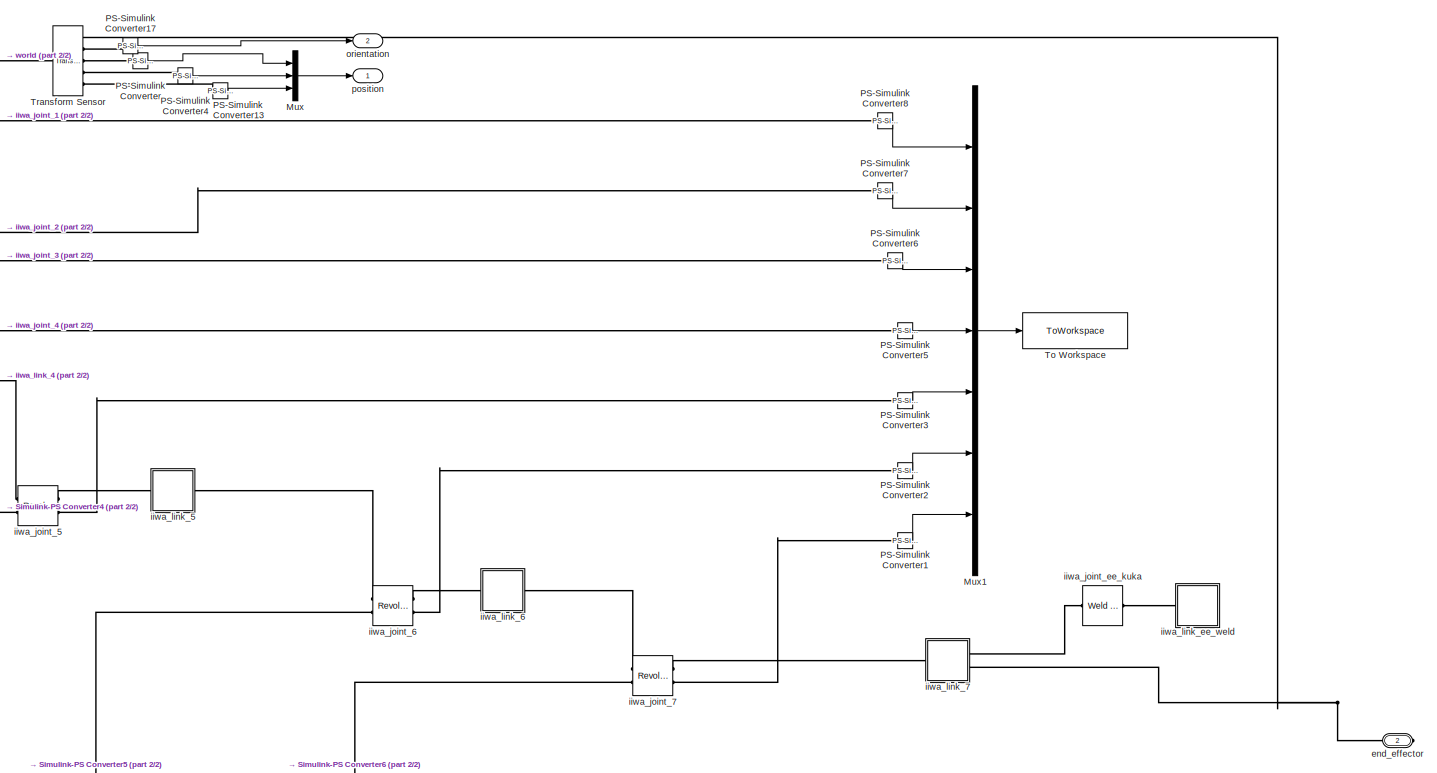
[diagram: KUKA LWR  left/KUKA_iiwa 1  - part 1/2, right side, full height]
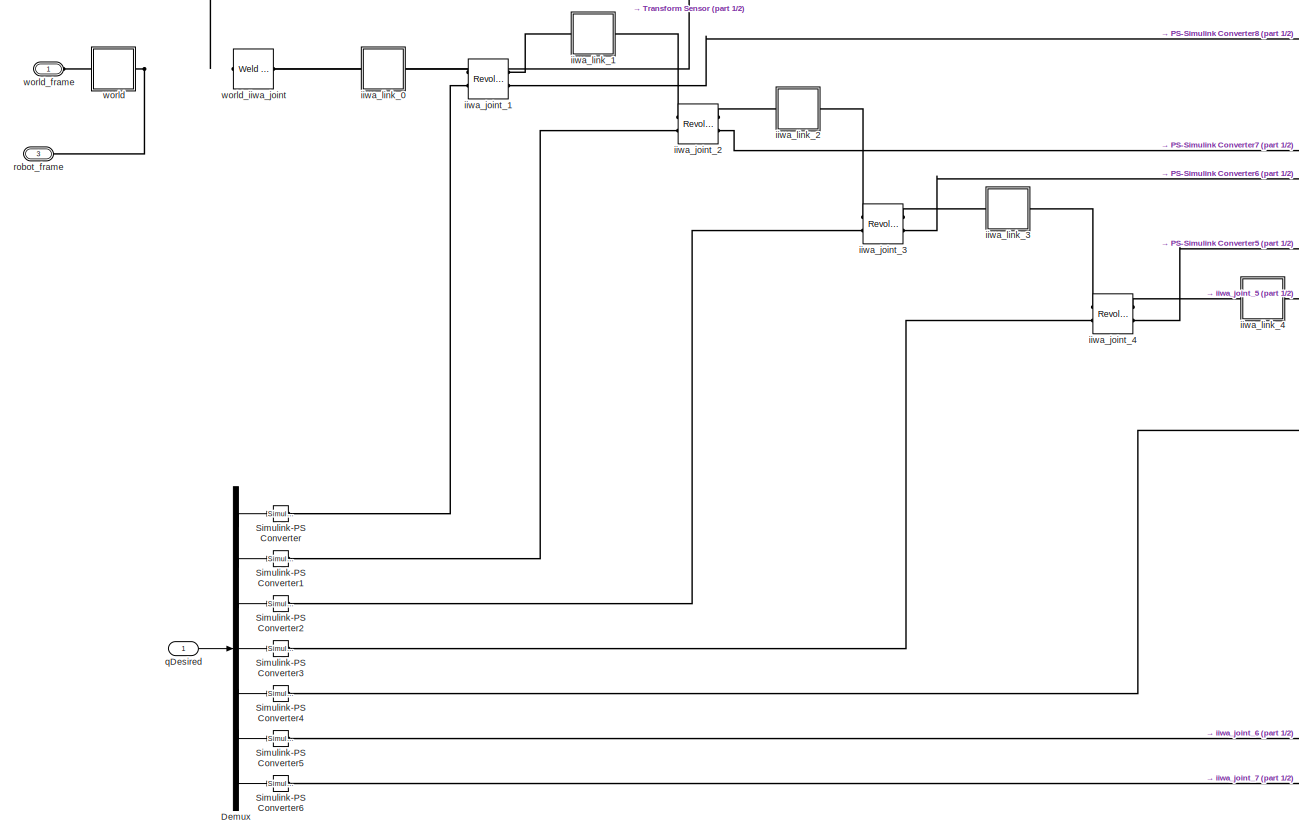
[diagram: KUKA LWR  left/KUKA_iiwa 1  - part 2/2, left side, full height]
BLOCK [SubSystem] KUKA LWR  left/KUKA_iiwa 1 
  Ports = [1, 2, 0, 0, 0, 2, 1]
  RequestExecContextInheritance = off
BLOCK [Demux] KUKA LWR  left/KUKA_iiwa 1 /Demux
  DisplayOption = bar
  Outputs = 7
  Ports = [1, 7]
BLOCK [Mux] KUKA LWR  left/KUKA_iiwa 1 /Mux
  DisplayOption = bar
  Inputs = 3
  Ports = [3, 1]
BLOCK [Mux] KUKA LWR  left/KUKA_iiwa 1 /Mux1
  DisplayOption = bar
  Inputs = 7
  Ports = [7, 1]
BLOCK [Reference] KUKA LWR  left/KUKA_iiwa 1 /PS-Simulink Converter  REF=nesl_utility/PS-Simulink
Converter
  Ports = [0, 1, 0, 0, 0, 1]
  SourceBlock = nesl_utility/PS-Simulink\nConverter
  SourceProductBaseCode = SS
  SourceProductName = Simscape
  SourceType = PS-Simulink\nConverter
BLOCK [Reference] KUKA LWR  left/KUKA_iiwa 1 /PS-Simulink Converter1  REF=nesl_utility/PS-Simulink
Converter
  Ports = [0, 1, 0, 0, 0, 1]
  SourceBlock = nesl_utility/PS-Simulink\nConverter
  SourceProductBaseCode = SS
  SourceProductName = Simscape
  SourceType = PS-Simulink\nConverter
BLOCK [Reference] KUKA LWR  left/KUKA_iiwa 1 /PS-Simulink Converter13  REF=nesl_utility/PS-Simulink
Converter
  Ports = [0, 1, 0, 0, 0, 1]
  SourceBlock = nesl_utility/PS-Simulink\nConverter
  SourceProductBaseCode = SS
  SourceProductName = Simscape
  SourceType = PS-Simulink\nConverter
BLOCK [Reference] KUKA LWR  left/KUKA_iiwa 1 /PS-Simulink Converter17  REF=nesl_utility/PS-Simulink
Converter
  Ports = [0, 1, 0, 0, 0, 1]
  SourceBlock = nesl_utility/PS-Simulink\nConverter
  SourceProductBaseCode = SS
  SourceProductName = Simscape
  SourceType = PS-Simulink\nConverter
BLOCK [Reference] KUKA LWR  left/KUKA_iiwa 1 /PS-Simulink Converter2  REF=nesl_utility/PS-Simulink
Converter
  Ports = [0, 1, 0, 0, 0, 1]
  SourceBlock = nesl_utility/PS-Simulink\nConverter
  SourceProductBaseCode = SS
  SourceProductName = Simscape
  SourceType = PS-Simulink\nConverter
BLOCK [Reference] KUKA LWR  left/KUKA_iiwa 1 /PS-Simulink Converter3  REF=nesl_utility/PS-Simulink
Converter
  Ports = [0, 1, 0, 0, 0, 1]
  SourceBlock = nesl_utility/PS-Simulink\nConverter
  SourceProductBaseCode = SS
  SourceProductName = Simscape
  SourceType = PS-Simulink\nConverter
BLOCK [Reference] KUKA LWR  left/KUKA_iiwa 1 /PS-Simulink Converter4  REF=nesl_utility/PS-Simulink
Converter
  Ports = [0, 1, 0, 0, 0, 1]
  SourceBlock = nesl_utility/PS-Simulink\nConverter
  SourceProductBaseCode = SS
  SourceProductName = Simscape
  SourceType = PS-Simulink\nConverter
BLOCK [Reference] KUKA LWR  left/KUKA_iiwa 1 /PS-Simulink Converter5  REF=nesl_utility/PS-Simulink
Converter
  Ports = [0, 1, 0, 0, 0, 1]
  SourceBlock = nesl_utility/PS-Simulink\nConverter
  SourceProductBaseCode = SS
  SourceProductName = Simscape
  SourceType = PS-Simulink\nConverter
BLOCK [Reference] KUKA LWR  left/KUKA_iiwa 1 /PS-Simulink Converter6  REF=nesl_utility/PS-Simulink
Converter
  Ports = [0, 1, 0, 0, 0, 1]
  SourceBlock = nesl_utility/PS-Simulink\nConverter
  SourceProductBaseCode = SS
  SourceProductName = Simscape
  SourceType = PS-Simulink\nConverter
BLOCK [Reference] KUKA LWR  left/KUKA_iiwa 1 /PS-Simulink Converter7  REF=nesl_utility/PS-Simulink
Converter
  Ports = [0, 1, 0, 0, 0, 1]
  SourceBlock = nesl_utility/PS-Simulink\nConverter
  SourceProductBaseCode = SS
  SourceProductName = Simscape
  SourceType = PS-Simulink\nConverter
BLOCK [Reference] KUKA LWR  left/KUKA_iiwa 1 /PS-Simulink Converter8  REF=nesl_utility/PS-Simulink
Converter
  Ports = [0, 1, 0, 0, 0, 1]
  SourceBlock = nesl_utility/PS-Simulink\nConverter
  SourceProductBaseCode = SS
  SourceProductName = Simscape
  SourceType = PS-Simulink\nConverter
BLOCK [Reference] KUKA LWR  left/KUKA_iiwa 1 /Simulink-PS Converter  REF=nesl_utility/Simulink-PS
Converter
  Ports = [1, 0, 0, 0, 0, 0, 1]
  SourceBlock = nesl_utility/Simulink-PS\nConverter
  SourceProductBaseCode = SS
  SourceProductName = Simscape
  SourceType = Simulink-PS\nConverter
BLOCK [Reference] KUKA LWR  left/KUKA_iiwa 1 /Simulink-PS Converter1  REF=nesl_utility/Simulink-PS
Converter
  Ports = [1, 0, 0, 0, 0, 0, 1]
  SourceBlock = nesl_utility/Simulink-PS\nConverter
  SourceProductBaseCode = SS
  SourceProductName = Simscape
  SourceType = Simulink-PS\nConverter
BLOCK [Reference] KUKA LWR  left/KUKA_iiwa 1 /Simulink-PS Converter2  REF=nesl_utility/Simulink-PS
Converter
  Ports = [1, 0, 0, 0, 0, 0, 1]
  SourceBlock = nesl_utility/Simulink-PS\nConverter
  SourceProductBaseCode = SS
  SourceProductName = Simscape
  SourceType = Simulink-PS\nConverter
BLOCK [Reference] KUKA LWR  left/KUKA_iiwa 1 /Simulink-PS Converter3  REF=nesl_utility/Simulink-PS
Converter
  Ports = [1, 0, 0, 0, 0, 0, 1]
  SourceBlock = nesl_utility/Simulink-PS\nConverter
  SourceProductBaseCode = SS
  SourceProductName = Simscape
  SourceType = Simulink-PS\nConverter
BLOCK [Reference] KUKA LWR  left/KUKA_iiwa 1 /Simulink-PS Converter4  REF=nesl_utility/Simulink-PS
Converter
  Ports = [1, 0, 0, 0, 0, 0, 1]
  SourceBlock = nesl_utility/Simulink-PS\nConverter
  SourceProductBaseCode = SS
  SourceProductName = Simscape
  SourceType = Simulink-PS\nConverter
BLOCK [Reference] KUKA LWR  left/KUKA_iiwa 1 /Simulink-PS Converter5  REF=nesl_utility/Simulink-PS
Converter
  Ports = [1, 0, 0, 0, 0, 0, 1]
  SourceBlock = nesl_utility/Simulink-PS\nConverter
  SourceProductBaseCode = SS
  SourceProductName = Simscape
  SourceType = Simulink-PS\nConverter
BLOCK [Reference] KUKA LWR  left/KUKA_iiwa 1 /Simulink-PS Converter6  REF=nesl_utility/Simulink-PS
Converter
  Ports = [1, 0, 0, 0, 0, 0, 1]
  SourceBlock = nesl_utility/Simulink-PS\nConverter
  SourceProductBaseCode = SS
  SourceProductName = Simscape
  SourceType = Simulink-PS\nConverter
BLOCK [ToWorkspace] KUKA LWR  left/KUKA_iiwa 1 /To Workspace
  FixptAsFi = on
  MaxDataPoints = inf
  Ports = [1]
  SampleTime = T
  Save2DSignal = 2-D array (concatenate along first dimension)
  VariableName = q_left
BLOCK [Reference] KUKA LWR  left/KUKA_iiwa 1 /Transform Sensor  REF=sm_lib/Frames and
Transforms/Transform
Sensor
  Ports = [0, 0, 0, 0, 0, 1, 5]
  SourceBlock = sm_lib/Frames and\nTransforms/Transform\nSensor
  SourceProductBaseCode = MS
  SourceProductName = Simscape Multibody
  SourceType = Transform\nSensor
BLOCK [PMIOPort] KUKA LWR  left/KUKA_iiwa 1 /end_effector
  Port = 2
  Side = Right
BLOCK [Reference] KUKA LWR  left/KUKA_iiwa 1 /iiwa_joint_1  REF=sm_lib/Joints/Revolute Joint
  Ports = [0, 0, 0, 0, 0, 2, 2]
  SourceBlock = sm_lib/Joints/Revolute Joint
  SourceProductBaseCode = MS
  SourceProductName = Simscape Multibody
  SourceType = Revolute Joint
BLOCK [Reference] KUKA LWR  left/KUKA_iiwa 1 /iiwa_joint_2  REF=sm_lib/Joints/Revolute Joint
  Ports = [0, 0, 0, 0, 0, 2, 2]
  SourceBlock = sm_lib/Joints/Revolute Joint
  SourceProductBaseCode = MS
  SourceProductName = Simscape Multibody
  SourceType = Revolute Joint
BLOCK [Reference] KUKA LWR  left/KUKA_iiwa 1 /iiwa_joint_3  REF=sm_lib/Joints/Revolute Joint
  Ports = [0, 0, 0, 0, 0, 2, 2]
  SourceBlock = sm_lib/Joints/Revolute Joint
  SourceProductBaseCode = MS
  SourceProductName = Simscape Multibody
  SourceType = Revolute Joint
BLOCK [Reference] KUKA LWR  left/KUKA_iiwa 1 /iiwa_joint_4  REF=sm_lib/Joints/Revolute Joint
  Ports = [0, 0, 0, 0, 0, 2, 2]
  SourceBlock = sm_lib/Joints/Revolute Joint
  SourceProductBaseCode = MS
  SourceProductName = Simscape Multibody
  SourceType = Revolute Joint
BLOCK [Reference] KUKA LWR  left/KUKA_iiwa 1 /iiwa_joint_5  REF=sm_lib/Joints/Revolute Joint
  Ports = [0, 0, 0, 0, 0, 2, 2]
  SourceBlock = sm_lib/Joints/Revolute Joint
  SourceProductBaseCode = MS
  SourceProductName = Simscape Multibody
  SourceType = Revolute Joint
BLOCK [Reference] KUKA LWR  left/KUKA_iiwa 1 /iiwa_joint_6  REF=sm_lib/Joints/Revolute Joint
  Ports = [0, 0, 0, 0, 0, 2, 2]
  SourceBlock = sm_lib/Joints/Revolute Joint
  SourceProductBaseCode = MS
  SourceProductName = Simscape Multibody
  SourceType = Revolute Joint
BLOCK [Reference] KUKA LWR  left/KUKA_iiwa 1 /iiwa_joint_7  REF=sm_lib/Joints/Revolute Joint
  Ports = [0, 0, 0, 0, 0, 2, 2]
  SourceBlock = sm_lib/Joints/Revolute Joint
  SourceProductBaseCode = MS
  SourceProductName = Simscape Multibody
  SourceType = Revolute Joint
BLOCK [Reference] KUKA LWR  left/KUKA_iiwa 1 /iiwa_joint_ee_kuka  REF=sm_lib/Joints/Weld Joint
  Ports = [0, 0, 0, 0, 0, 1, 1]
  SourceBlock = sm_lib/Joints/Weld Joint
  SourceProductBaseCode = MS
  SourceProductName = Simscape Multibody
  SourceType = Weld Joint
BLOCK [SubSystem] KUKA LWR  left/KUKA_iiwa 1 /iiwa_link_0
  Ports = [0, 0, 0, 0, 0, 1, 1]
  RequestExecContextInheritance = off
BLOCK [PMIOPort] KUKA LWR  left/KUKA_iiwa 1 /iiwa_link_0/F
  Side = Left
BLOCK [PMIOPort] KUKA LWR  left/KUKA_iiwa 1 /iiwa_link_0/F1
  Port = 2
  Side = Right
BLOCK [Reference] KUKA LWR  left/KUKA_iiwa 1 /iiwa_link_0/Inertia  REF=sm_lib/Body Elements/Inertia
  Ports = [0, 0, 0, 0, 0, 0, 1]
  SourceBlock = sm_lib/Body Elements/Inertia
  SourceProductBaseCode = MS
  SourceProductName = Simscape Multibody
  SourceType = Inertia
BLOCK [Reference] KUKA LWR  left/KUKA_iiwa 1 /iiwa_link_0/InertiaOriginTransform  REF=sm_lib/Frames and
Transforms/Rigid
Transform
  Ports = [0, 0, 0, 0, 0, 1, 1]
  SourceBlock = sm_lib/Frames and\nTransforms/Rigid\nTransform
  SourceProductBaseCode = MS
  SourceProductName = Simscape Multibody
  SourceType = Rigid\nTransform
BLOCK [Reference] KUKA LWR  left/KUKA_iiwa 1 /iiwa_link_0/ReferenceFrame  REF=sm_lib/Frames and
Transforms/Reference
Frame
  Ports = [0, 0, 0, 0, 0, 0, 1]
  SourceBlock = sm_lib/Frames and\nTransforms/Reference\nFrame
  SourceProductBaseCode = MS
  SourceProductName = Simscape Multibody
  SourceType = Reference\nFrame
BLOCK [Reference] KUKA LWR  left/KUKA_iiwa 1 /iiwa_link_0/Visual  REF=sm_lib/Body Elements/Solid
  Ports = [0, 0, 0, 0, 0, 0, 1]
  SourceBlock = sm_lib/Body Elements/Solid
  SourceProductBaseCode = MS
  SourceProductName = Simscape Multibody
  SourceType = Solid
BLOCK [Reference] KUKA LWR  left/KUKA_iiwa 1 /iiwa_link_0/VisualOriginTransform  REF=sm_lib/Frames and
Transforms/Rigid
Transform
  Ports = [0, 0, 0, 0, 0, 1, 1]
  SourceBlock = sm_lib/Frames and\nTransforms/Rigid\nTransform
  SourceProductBaseCode = MS
  SourceProductName = Simscape Multibody
  SourceType = Rigid\nTransform
BLOCK [Reference] KUKA LWR  left/KUKA_iiwa 1 /iiwa_link_0/iiwa_joint_1_AxisTransform  REF=sm_lib/Frames and
Transforms/Rigid
Transform
  Ports = [0, 0, 0, 0, 0, 1, 1]
  SourceBlock = sm_lib/Frames and\nTransforms/Rigid\nTransform
  SourceProductBaseCode = MS
  SourceProductName = Simscape Multibody
  SourceType = Rigid\nTransform
BLOCK [Reference] KUKA LWR  left/KUKA_iiwa 1 /iiwa_link_0/iiwa_joint_1_OriginTransform  REF=sm_lib/Frames and
Transforms/Rigid
Transform
  Ports = [0, 0, 0, 0, 0, 1, 1]
  SourceBlock = sm_lib/Frames and\nTransforms/Rigid\nTransform
  SourceProductBaseCode = MS
  SourceProductName = Simscape Multibody
  SourceType = Rigid\nTransform
BLOCK [SubSystem] KUKA LWR  left/KUKA_iiwa 1 /iiwa_link_1
  Ports = [0, 0, 0, 0, 0, 1, 1]
  RequestExecContextInheritance = off
BLOCK [PMIOPort] KUKA LWR  left/KUKA_iiwa 1 /iiwa_link_1/F
  Side = Left
BLOCK [PMIOPort] KUKA LWR  left/KUKA_iiwa 1 /iiwa_link_1/F1
  Port = 2
  Side = Right
BLOCK [Reference] KUKA LWR  left/KUKA_iiwa 1 /iiwa_link_1/Inertia  REF=sm_lib/Body Elements/Inertia
  Ports = [0, 0, 0, 0, 0, 0, 1]
  SourceBlock = sm_lib/Body Elements/Inertia
  SourceProductBaseCode = MS
  SourceProductName = Simscape Multibody
  SourceType = Inertia
BLOCK [Reference] KUKA LWR  left/KUKA_iiwa 1 /iiwa_link_1/InertiaOriginTransform  REF=sm_lib/Frames and
Transforms/Rigid
Transform
  Ports = [0, 0, 0, 0, 0, 1, 1]
  SourceBlock = sm_lib/Frames and\nTransforms/Rigid\nTransform
  SourceProductBaseCode = MS
  SourceProductName = Simscape Multibody
  SourceType = Rigid\nTransform
BLOCK [Reference] KUKA LWR  left/KUKA_iiwa 1 /iiwa_link_1/ReferenceFrame  REF=sm_lib/Frames and
Transforms/Reference
Frame
  Ports = [0, 0, 0, 0, 0, 0, 1]
  SourceBlock = sm_lib/Frames and\nTransforms/Reference\nFrame
  SourceProductBaseCode = MS
  SourceProductName = Simscape Multibody
  SourceType = Reference\nFrame
BLOCK [Reference] KUKA LWR  left/KUKA_iiwa 1 /iiwa_link_1/Visual  REF=sm_lib/Body Elements/Solid
  Ports = [0, 0, 0, 0, 0, 0, 1]
  SourceBlock = sm_lib/Body Elements/Solid
  SourceProductBaseCode = MS
  SourceProductName = Simscape Multibody
  SourceType = Solid
BLOCK [Reference] KUKA LWR  left/KUKA_iiwa 1 /iiwa_link_1/VisualOriginTransform  REF=sm_lib/Frames and
Transforms/Rigid
Transform
  Ports = [0, 0, 0, 0, 0, 1, 1]
  SourceBlock = sm_lib/Frames and\nTransforms/Rigid\nTransform
  SourceProductBaseCode = MS
  SourceProductName = Simscape Multibody
  SourceType = Rigid\nTransform
BLOCK [Reference] KUKA LWR  left/KUKA_iiwa 1 /iiwa_link_1/iiwa_joint_1_AxisInvTransform  REF=sm_lib/Frames and
Transforms/Rigid
Transform
  Ports = [0, 0, 0, 0, 0, 1, 1]
  SourceBlock = sm_lib/Frames and\nTransforms/Rigid\nTransform
  SourceProductBaseCode = MS
  SourceProductName = Simscape Multibody
  SourceType = Rigid\nTransform
BLOCK [Reference] KUKA LWR  left/KUKA_iiwa 1 /iiwa_link_1/iiwa_joint_2_AxisTransform  REF=sm_lib/Frames and
Transforms/Rigid
Transform
  Ports = [0, 0, 0, 0, 0, 1, 1]
  SourceBlock = sm_lib/Frames and\nTransforms/Rigid\nTransform
  SourceProductBaseCode = MS
  SourceProductName = Simscape Multibody
  SourceType = Rigid\nTransform
BLOCK [Reference] KUKA LWR  left/KUKA_iiwa 1 /iiwa_link_1/iiwa_joint_2_OriginTransform  REF=sm_lib/Frames and
Transforms/Rigid
Transform
  Ports = [0, 0, 0, 0, 0, 1, 1]
  SourceBlock = sm_lib/Frames and\nTransforms/Rigid\nTransform
  SourceProductBaseCode = MS
  SourceProductName = Simscape Multibody
  SourceType = Rigid\nTransform
BLOCK [SubSystem] KUKA LWR  left/KUKA_iiwa 1 /iiwa_link_2
  Ports = [0, 0, 0, 0, 0, 1, 1]
  RequestExecContextInheritance = off
BLOCK [PMIOPort] KUKA LWR  left/KUKA_iiwa 1 /iiwa_link_2/F
  Side = Left
BLOCK [PMIOPort] KUKA LWR  left/KUKA_iiwa 1 /iiwa_link_2/F1
  Port = 2
  Side = Right
BLOCK [Reference] KUKA LWR  left/KUKA_iiwa 1 /iiwa_link_2/Inertia  REF=sm_lib/Body Elements/Inertia
  Ports = [0, 0, 0, 0, 0, 0, 1]
  SourceBlock = sm_lib/Body Elements/Inertia
  SourceProductBaseCode = MS
  SourceProductName = Simscape Multibody
  SourceType = Inertia
BLOCK [Reference] KUKA LWR  left/KUKA_iiwa 1 /iiwa_link_2/InertiaOriginTransform  REF=sm_lib/Frames and
Transforms/Rigid
Transform
  Ports = [0, 0, 0, 0, 0, 1, 1]
  SourceBlock = sm_lib/Frames and\nTransforms/Rigid\nTransform
  SourceProductBaseCode = MS
  SourceProductName = Simscape Multibody
  SourceType = Rigid\nTransform
BLOCK [Reference] KUKA LWR  left/KUKA_iiwa 1 /iiwa_link_2/ReferenceFrame  REF=sm_lib/Frames and
Transforms/Reference
Frame
  Ports = [0, 0, 0, 0, 0, 0, 1]
  SourceBlock = sm_lib/Frames and\nTransforms/Reference\nFrame
  SourceProductBaseCode = MS
  SourceProductName = Simscape Multibody
  SourceType = Reference\nFrame
BLOCK [Reference] KUKA LWR  left/KUKA_iiwa 1 /iiwa_link_2/Visual  REF=sm_lib/Body Elements/Solid
  Ports = [0, 0, 0, 0, 0, 0, 1]
  SourceBlock = sm_lib/Body Elements/Solid
  SourceProductBaseCode = MS
  SourceProductName = Simscape Multibody
  SourceType = Solid
BLOCK [Reference] KUKA LWR  left/KUKA_iiwa 1 /iiwa_link_2/VisualOriginTransform  REF=sm_lib/Frames and
Transforms/Rigid
Transform
  Ports = [0, 0, 0, 0, 0, 1, 1]
  SourceBlock = sm_lib/Frames and\nTransforms/Rigid\nTransform
  SourceProductBaseCode = MS
  SourceProductName = Simscape Multibody
  SourceType = Rigid\nTransform
BLOCK [Reference] KUKA LWR  left/KUKA_iiwa 1 /iiwa_link_2/iiwa_joint_2_AxisInvTransform  REF=sm_lib/Frames and
Transforms/Rigid
Transform
  Ports = [0, 0, 0, 0, 0, 1, 1]
  SourceBlock = sm_lib/Frames and\nTransforms/Rigid\nTransform
  SourceProductBaseCode = MS
  SourceProductName = Simscape Multibody
  SourceType = Rigid\nTransform
BLOCK [Reference] KUKA LWR  left/KUKA_iiwa 1 /iiwa_link_2/iiwa_joint_3_AxisTransform  REF=sm_lib/Frames and
Transforms/Rigid
Transform
  Ports = [0, 0, 0, 0, 0, 1, 1]
  SourceBlock = sm_lib/Frames and\nTransforms/Rigid\nTransform
  SourceProductBaseCode = MS
  SourceProductName = Simscape Multibody
  SourceType = Rigid\nTransform
BLOCK [Reference] KUKA LWR  left/KUKA_iiwa 1 /iiwa_link_2/iiwa_joint_3_OriginTransform  REF=sm_lib/Frames and
Transforms/Rigid
Transform
  Ports = [0, 0, 0, 0, 0, 1, 1]
  SourceBlock = sm_lib/Frames and\nTransforms/Rigid\nTransform
  SourceProductBaseCode = MS
  SourceProductName = Simscape Multibody
  SourceType = Rigid\nTransform
BLOCK [SubSystem] KUKA LWR  left/KUKA_iiwa 1 /iiwa_link_3
  Ports = [0, 0, 0, 0, 0, 1, 1]
  RequestExecContextInheritance = off
BLOCK [PMIOPort] KUKA LWR  left/KUKA_iiwa 1 /iiwa_link_3/F
  Side = Left
BLOCK [PMIOPort] KUKA LWR  left/KUKA_iiwa 1 /iiwa_link_3/F1
  Port = 2
  Side = Right
BLOCK [Reference] KUKA LWR  left/KUKA_iiwa 1 /iiwa_link_3/Inertia  REF=sm_lib/Body Elements/Inertia
  Ports = [0, 0, 0, 0, 0, 0, 1]
  SourceBlock = sm_lib/Body Elements/Inertia
  SourceProductBaseCode = MS
  SourceProductName = Simscape Multibody
  SourceType = Inertia
BLOCK [Reference] KUKA LWR  left/KUKA_iiwa 1 /iiwa_link_3/InertiaOriginTransform  REF=sm_lib/Frames and
Transforms/Rigid
Transform
  Ports = [0, 0, 0, 0, 0, 1, 1]
  SourceBlock = sm_lib/Frames and\nTransforms/Rigid\nTransform
  SourceProductBaseCode = MS
  SourceProductName = Simscape Multibody
  SourceType = Rigid\nTransform
BLOCK [Reference] KUKA LWR  left/KUKA_iiwa 1 /iiwa_link_3/ReferenceFrame  REF=sm_lib/Frames and
Transforms/Reference
Frame
  Ports = [0, 0, 0, 0, 0, 0, 1]
  SourceBlock = sm_lib/Frames and\nTransforms/Reference\nFrame
  SourceProductBaseCode = MS
  SourceProductName = Simscape Multibody
  SourceType = Reference\nFrame
BLOCK [Reference] KUKA LWR  left/KUKA_iiwa 1 /iiwa_link_3/Visual  REF=sm_lib/Body Elements/Solid
  Ports = [0, 0, 0, 0, 0, 0, 1]
  SourceBlock = sm_lib/Body Elements/Solid
  SourceProductBaseCode = MS
  SourceProductName = Simscape Multibody
  SourceType = Solid
BLOCK [Reference] KUKA LWR  left/KUKA_iiwa 1 /iiwa_link_3/VisualOriginTransform  REF=sm_lib/Frames and
Transforms/Rigid
Transform
  Ports = [0, 0, 0, 0, 0, 1, 1]
  SourceBlock = sm_lib/Frames and\nTransforms/Rigid\nTransform
  SourceProductBaseCode = MS
  SourceProductName = Simscape Multibody
  SourceType = Rigid\nTransform
BLOCK [Reference] KUKA LWR  left/KUKA_iiwa 1 /iiwa_link_3/iiwa_joint_3_AxisInvTransform  REF=sm_lib/Frames and
Transforms/Rigid
Transform
  Ports = [0, 0, 0, 0, 0, 1, 1]
  SourceBlock = sm_lib/Frames and\nTransforms/Rigid\nTransform
  SourceProductBaseCode = MS
  SourceProductName = Simscape Multibody
  SourceType = Rigid\nTransform
BLOCK [Reference] KUKA LWR  left/KUKA_iiwa 1 /iiwa_link_3/iiwa_joint_4_AxisTransform  REF=sm_lib/Frames and
Transforms/Rigid
Transform
  Ports = [0, 0, 0, 0, 0, 1, 1]
  SourceBlock = sm_lib/Frames and\nTransforms/Rigid\nTransform
  SourceProductBaseCode = MS
  SourceProductName = Simscape Multibody
  SourceType = Rigid\nTransform
BLOCK [Reference] KUKA LWR  left/KUKA_iiwa 1 /iiwa_link_3/iiwa_joint_4_OriginTransform  REF=sm_lib/Frames and
Transforms/Rigid
Transform
  Ports = [0, 0, 0, 0, 0, 1, 1]
  SourceBlock = sm_lib/Frames and\nTransforms/Rigid\nTransform
  SourceProductBaseCode = MS
  SourceProductName = Simscape Multibody
  SourceType = Rigid\nTransform
BLOCK [SubSystem] KUKA LWR  left/KUKA_iiwa 1 /iiwa_link_4
  Ports = [0, 0, 0, 0, 0, 1, 1]
  RequestExecContextInheritance = off
BLOCK [PMIOPort] KUKA LWR  left/KUKA_iiwa 1 /iiwa_link_4/F
  Side = Left
BLOCK [PMIOPort] KUKA LWR  left/KUKA_iiwa 1 /iiwa_link_4/F1
  Port = 2
  Side = Right
BLOCK [Reference] KUKA LWR  left/KUKA_iiwa 1 /iiwa_link_4/Inertia  REF=sm_lib/Body Elements/Inertia
  Ports = [0, 0, 0, 0, 0, 0, 1]
  SourceBlock = sm_lib/Body Elements/Inertia
  SourceProductBaseCode = MS
  SourceProductName = Simscape Multibody
  SourceType = Inertia
BLOCK [Reference] KUKA LWR  left/KUKA_iiwa 1 /iiwa_link_4/InertiaOriginTransform  REF=sm_lib/Frames and
Transforms/Rigid
Transform
  Ports = [0, 0, 0, 0, 0, 1, 1]
  SourceBlock = sm_lib/Frames and\nTransforms/Rigid\nTransform
  SourceProductBaseCode = MS
  SourceProductName = Simscape Multibody
  SourceType = Rigid\nTransform
BLOCK [Reference] KUKA LWR  left/KUKA_iiwa 1 /iiwa_link_4/ReferenceFrame  REF=sm_lib/Frames and
Transforms/Reference
Frame
  Ports = [0, 0, 0, 0, 0, 0, 1]
  SourceBlock = sm_lib/Frames and\nTransforms/Reference\nFrame
  SourceProductBaseCode = MS
  SourceProductName = Simscape Multibody
  SourceType = Reference\nFrame
BLOCK [Reference] KUKA LWR  left/KUKA_iiwa 1 /iiwa_link_4/Visual  REF=sm_lib/Body Elements/Solid
  Ports = [0, 0, 0, 0, 0, 0, 1]
  SourceBlock = sm_lib/Body Elements/Solid
  SourceProductBaseCode = MS
  SourceProductName = Simscape Multibody
  SourceType = Solid
BLOCK [Reference] KUKA LWR  left/KUKA_iiwa 1 /iiwa_link_4/VisualOriginTransform  REF=sm_lib/Frames and
Transforms/Rigid
Transform
  Ports = [0, 0, 0, 0, 0, 1, 1]
  SourceBlock = sm_lib/Frames and\nTransforms/Rigid\nTransform
  SourceProductBaseCode = MS
  SourceProductName = Simscape Multibody
  SourceType = Rigid\nTransform
BLOCK [Reference] KUKA LWR  left/KUKA_iiwa 1 /iiwa_link_4/iiwa_joint_4_AxisInvTransform  REF=sm_lib/Frames and
Transforms/Rigid
Transform
  Ports = [0, 0, 0, 0, 0, 1, 1]
  SourceBlock = sm_lib/Frames and\nTransforms/Rigid\nTransform
  SourceProductBaseCode = MS
  SourceProductName = Simscape Multibody
  SourceType = Rigid\nTransform
BLOCK [Reference] KUKA LWR  left/KUKA_iiwa 1 /iiwa_link_4/iiwa_joint_5_AxisTransform  REF=sm_lib/Frames and
Transforms/Rigid
Transform
  Ports = [0, 0, 0, 0, 0, 1, 1]
  SourceBlock = sm_lib/Frames and\nTransforms/Rigid\nTransform
  SourceProductBaseCode = MS
  SourceProductName = Simscape Multibody
  SourceType = Rigid\nTransform
BLOCK [Reference] KUKA LWR  left/KUKA_iiwa 1 /iiwa_link_4/iiwa_joint_5_OriginTransform  REF=sm_lib/Frames and
Transforms/Rigid
Transform
  Ports = [0, 0, 0, 0, 0, 1, 1]
  SourceBlock = sm_lib/Frames and\nTransforms/Rigid\nTransform
  SourceProductBaseCode = MS
  SourceProductName = Simscape Multibody
  SourceType = Rigid\nTransform
BLOCK [SubSystem] KUKA LWR  left/KUKA_iiwa 1 /iiwa_link_5
  Ports = [0, 0, 0, 0, 0, 1, 1]
  RequestExecContextInheritance = off
BLOCK [PMIOPort] KUKA LWR  left/KUKA_iiwa 1 /iiwa_link_5/F
  Side = Left
BLOCK [PMIOPort] KUKA LWR  left/KUKA_iiwa 1 /iiwa_link_5/F1
  Port = 2
  Side = Right
BLOCK [Reference] KUKA LWR  left/KUKA_iiwa 1 /iiwa_link_5/Inertia  REF=sm_lib/Body Elements/Inertia
  Ports = [0, 0, 0, 0, 0, 0, 1]
  SourceBlock = sm_lib/Body Elements/Inertia
  SourceProductBaseCode = MS
  SourceProductName = Simscape Multibody
  SourceType = Inertia
BLOCK [Reference] KUKA LWR  left/KUKA_iiwa 1 /iiwa_link_5/InertiaOriginTransform  REF=sm_lib/Frames and
Transforms/Rigid
Transform
  Ports = [0, 0, 0, 0, 0, 1, 1]
  SourceBlock = sm_lib/Frames and\nTransforms/Rigid\nTransform
  SourceProductBaseCode = MS
  SourceProductName = Simscape Multibody
  SourceType = Rigid\nTransform
BLOCK [Reference] KUKA LWR  left/KUKA_iiwa 1 /iiwa_link_5/ReferenceFrame  REF=sm_lib/Frames and
Transforms/Reference
Frame
  Ports = [0, 0, 0, 0, 0, 0, 1]
  SourceBlock = sm_lib/Frames and\nTransforms/Reference\nFrame
  SourceProductBaseCode = MS
  SourceProductName = Simscape Multibody
  SourceType = Reference\nFrame
BLOCK [Reference] KUKA LWR  left/KUKA_iiwa 1 /iiwa_link_5/Visual  REF=sm_lib/Body Elements/Solid
  Ports = [0, 0, 0, 0, 0, 0, 1]
  SourceBlock = sm_lib/Body Elements/Solid
  SourceProductBaseCode = MS
  SourceProductName = Simscape Multibody
  SourceType = Solid
BLOCK [Reference] KUKA LWR  left/KUKA_iiwa 1 /iiwa_link_5/VisualOriginTransform  REF=sm_lib/Frames and
Transforms/Rigid
Transform
  Ports = [0, 0, 0, 0, 0, 1, 1]
  SourceBlock = sm_lib/Frames and\nTransforms/Rigid\nTransform
  SourceProductBaseCode = MS
  SourceProductName = Simscape Multibody
  SourceType = Rigid\nTransform
BLOCK [Reference] KUKA LWR  left/KUKA_iiwa 1 /iiwa_link_5/iiwa_joint_5_AxisInvTransform  REF=sm_lib/Frames and
Transforms/Rigid
Transform
  Ports = [0, 0, 0, 0, 0, 1, 1]
  SourceBlock = sm_lib/Frames and\nTransforms/Rigid\nTransform
  SourceProductBaseCode = MS
  SourceProductName = Simscape Multibody
  SourceType = Rigid\nTransform
BLOCK [Reference] KUKA LWR  left/KUKA_iiwa 1 /iiwa_link_5/iiwa_joint_6_AxisTransform  REF=sm_lib/Frames and
Transforms/Rigid
Transform
  Ports = [0, 0, 0, 0, 0, 1, 1]
  SourceBlock = sm_lib/Frames and\nTransforms/Rigid\nTransform
  SourceProductBaseCode = MS
  SourceProductName = Simscape Multibody
  SourceType = Rigid\nTransform
BLOCK [Reference] KUKA LWR  left/KUKA_iiwa 1 /iiwa_link_5/iiwa_joint_6_OriginTransform  REF=sm_lib/Frames and
Transforms/Rigid
Transform
  Ports = [0, 0, 0, 0, 0, 1, 1]
  SourceBlock = sm_lib/Frames and\nTransforms/Rigid\nTransform
  SourceProductBaseCode = MS
  SourceProductName = Simscape Multibody
  SourceType = Rigid\nTransform
BLOCK [SubSystem] KUKA LWR  left/KUKA_iiwa 1 /iiwa_link_6
  Ports = [0, 0, 0, 0, 0, 1, 1]
  RequestExecContextInheritance = off
BLOCK [PMIOPort] KUKA LWR  left/KUKA_iiwa 1 /iiwa_link_6/F
  Side = Left
BLOCK [PMIOPort] KUKA LWR  left/KUKA_iiwa 1 /iiwa_link_6/F1
  Port = 2
  Side = Right
BLOCK [Reference] KUKA LWR  left/KUKA_iiwa 1 /iiwa_link_6/Inertia  REF=sm_lib/Body Elements/Inertia
  Ports = [0, 0, 0, 0, 0, 0, 1]
  SourceBlock = sm_lib/Body Elements/Inertia
  SourceProductBaseCode = MS
  SourceProductName = Simscape Multibody
  SourceType = Inertia
BLOCK [Reference] KUKA LWR  left/KUKA_iiwa 1 /iiwa_link_6/InertiaOriginTransform  REF=sm_lib/Frames and
Transforms/Rigid
Transform
  Ports = [0, 0, 0, 0, 0, 1, 1]
  SourceBlock = sm_lib/Frames and\nTransforms/Rigid\nTransform
  SourceProductBaseCode = MS
  SourceProductName = Simscape Multibody
  SourceType = Rigid\nTransform
BLOCK [Reference] KUKA LWR  left/KUKA_iiwa 1 /iiwa_link_6/ReferenceFrame  REF=sm_lib/Frames and
Transforms/Reference
Frame
  Ports = [0, 0, 0, 0, 0, 0, 1]
  SourceBlock = sm_lib/Frames and\nTransforms/Reference\nFrame
  SourceProductBaseCode = MS
  SourceProductName = Simscape Multibody
  SourceType = Reference\nFrame
BLOCK [Reference] KUKA LWR  left/KUKA_iiwa 1 /iiwa_link_6/Visual  REF=sm_lib/Body Elements/Solid
  Ports = [0, 0, 0, 0, 0, 0, 1]
  SourceBlock = sm_lib/Body Elements/Solid
  SourceProductBaseCode = MS
  SourceProductName = Simscape Multibody
  SourceType = Solid
BLOCK [Reference] KUKA LWR  left/KUKA_iiwa 1 /iiwa_link_6/VisualOriginTransform  REF=sm_lib/Frames and
Transforms/Rigid
Transform
  Ports = [0, 0, 0, 0, 0, 1, 1]
  SourceBlock = sm_lib/Frames and\nTransforms/Rigid\nTransform
  SourceProductBaseCode = MS
  SourceProductName = Simscape Multibody
  SourceType = Rigid\nTransform
BLOCK [Reference] KUKA LWR  left/KUKA_iiwa 1 /iiwa_link_6/iiwa_joint_6_AxisInvTransform  REF=sm_lib/Frames and
Transforms/Rigid
Transform
  Ports = [0, 0, 0, 0, 0, 1, 1]
  SourceBlock = sm_lib/Frames and\nTransforms/Rigid\nTransform
  SourceProductBaseCode = MS
  SourceProductName = Simscape Multibody
  SourceType = Rigid\nTransform
BLOCK [Reference] KUKA LWR  left/KUKA_iiwa 1 /iiwa_link_6/iiwa_joint_7_AxisTransform  REF=sm_lib/Frames and
Transforms/Rigid
Transform
  Ports = [0, 0, 0, 0, 0, 1, 1]
  SourceBlock = sm_lib/Frames and\nTransforms/Rigid\nTransform
  SourceProductBaseCode = MS
  SourceProductName = Simscape Multibody
  SourceType = Rigid\nTransform
BLOCK [Reference] KUKA LWR  left/KUKA_iiwa 1 /iiwa_link_6/iiwa_joint_7_OriginTransform  REF=sm_lib/Frames and
Transforms/Rigid
Transform
  Ports = [0, 0, 0, 0, 0, 1, 1]
  SourceBlock = sm_lib/Frames and\nTransforms/Rigid\nTransform
  SourceProductBaseCode = MS
  SourceProductName = Simscape Multibody
  SourceType = Rigid\nTransform
BLOCK [SubSystem] KUKA LWR  left/KUKA_iiwa 1 /iiwa_link_7
  Ports = [0, 0, 0, 0, 0, 1, 2]
  RequestExecContextInheritance = off
BLOCK [PMIOPort] KUKA LWR  left/KUKA_iiwa 1 /iiwa_link_7/F
  Side = Left
BLOCK [PMIOPort] KUKA LWR  left/KUKA_iiwa 1 /iiwa_link_7/F1
  Port = 3
  Side = Right
BLOCK [PMIOPort] KUKA LWR  left/KUKA_iiwa 1 /iiwa_link_7/F2
  Port = 2
  Side = Right
BLOCK [Reference] KUKA LWR  left/KUKA_iiwa 1 /iiwa_link_7/Inertia  REF=sm_lib/Body Elements/Inertia
  Ports = [0, 0, 0, 0, 0, 0, 1]
  SourceBlock = sm_lib/Body Elements/Inertia
  SourceProductBaseCode = MS
  SourceProductName = Simscape Multibody
  SourceType = Inertia
BLOCK [Reference] KUKA LWR  left/KUKA_iiwa 1 /iiwa_link_7/InertiaOriginTransform  REF=sm_lib/Frames and
Transforms/Rigid
Transform
  Ports = [0, 0, 0, 0, 0, 1, 1]
  SourceBlock = sm_lib/Frames and\nTransforms/Rigid\nTransform
  SourceProductBaseCode = MS
  SourceProductName = Simscape Multibody
  SourceType = Rigid\nTransform
BLOCK [Reference] KUKA LWR  left/KUKA_iiwa 1 /iiwa_link_7/ReferenceFrame  REF=sm_lib/Frames and
Transforms/Reference
Frame
  Ports = [0, 0, 0, 0, 0, 0, 1]
  SourceBlock = sm_lib/Frames and\nTransforms/Reference\nFrame
  SourceProductBaseCode = MS
  SourceProductName = Simscape Multibody
  SourceType = Reference\nFrame
BLOCK [Reference] KUKA LWR  left/KUKA_iiwa 1 /iiwa_link_7/Visual  REF=sm_lib/Body Elements/Solid
  Ports = [0, 0, 0, 0, 0, 0, 1]
  SourceBlock = sm_lib/Body Elements/Solid
  SourceProductBaseCode = MS
  SourceProductName = Simscape Multibody
  SourceType = Solid
BLOCK [Reference] KUKA LWR  left/KUKA_iiwa 1 /iiwa_link_7/VisualOriginTransform  REF=sm_lib/Frames and
Transforms/Rigid
Transform
  Ports = [0, 0, 0, 0, 0, 1, 1]
  SourceBlock = sm_lib/Frames and\nTransforms/Rigid\nTransform
  SourceProductBaseCode = MS
  SourceProductName = Simscape Multibody
  SourceType = Rigid\nTransform
BLOCK [Reference] KUKA LWR  left/KUKA_iiwa 1 /iiwa_link_7/iiwa_joint_7_AxisInvTransform  REF=sm_lib/Frames and
Transforms/Rigid
Transform
  Ports = [0, 0, 0, 0, 0, 1, 1]
  SourceBlock = sm_lib/Frames and\nTransforms/Rigid\nTransform
  SourceProductBaseCode = MS
  SourceProductName = Simscape Multibody
  SourceType = Rigid\nTransform
BLOCK [Reference] KUKA LWR  left/KUKA_iiwa 1 /iiwa_link_7/iiwa_joint_ee_OriginTransform  REF=sm_lib/Frames and
Transforms/Rigid
Transform
  Ports = [0, 0, 0, 0, 0, 1, 1]
  SourceBlock = sm_lib/Frames and\nTransforms/Rigid\nTransform
  SourceProductBaseCode = MS
  SourceProductName = Simscape Multibody
  SourceType = Rigid\nTransform
BLOCK [Reference] KUKA LWR  left/KUKA_iiwa 1 /iiwa_link_7/iiwa_joint_ee_kuka_OriginTransform  REF=sm_lib/Frames and
Transforms/Rigid
Transform
  Ports = [0, 0, 0, 0, 0, 1, 1]
  SourceBlock = sm_lib/Frames and\nTransforms/Rigid\nTransform
  SourceProductBaseCode = MS
  SourceProductName = Simscape Multibody
  SourceType = Rigid\nTransform
BLOCK [SubSystem] KUKA LWR  left/KUKA_iiwa 1 /iiwa_link_ee_weld
  Ports = [0, 0, 0, 0, 0, 1]
  RequestExecContextInheritance = off
BLOCK [PMIOPort] KUKA LWR  left/KUKA_iiwa 1 /iiwa_link_ee_weld/F
  Side = Left
BLOCK [Reference] KUKA LWR  left/KUKA_iiwa 1 /iiwa_link_ee_weld/ReferenceFrame  REF=sm_lib/Frames and
Transforms/Reference
Frame
  Ports = [0, 0, 0, 0, 0, 0, 1]
  SourceBlock = sm_lib/Frames and\nTransforms/Reference\nFrame
  SourceProductBaseCode = MS
  SourceProductName = Simscape Multibody
  SourceType = Reference\nFrame
BLOCK [Outport] KUKA LWR  left/KUKA_iiwa 1 /orientation
  IconDisplay = Port number
  Port = 2
BLOCK [Outport] KUKA LWR  left/KUKA_iiwa 1 /position
  IconDisplay = Port number
BLOCK [Inport] KUKA LWR  left/KUKA_iiwa 1 /qDesired
  IconDisplay = Port number
BLOCK [PMIOPort] KUKA LWR  left/KUKA_iiwa 1 /robot_frame
  Port = 3
  Side = Left
BLOCK [SubSystem] KUKA LWR  left/KUKA_iiwa 1 /world
  Ports = [0, 0, 0, 0, 0, 1, 1]
  RequestExecContextInheritance = off
BLOCK [PMIOPort] KUKA LWR  left/KUKA_iiwa 1 /world/F
  Side = Left
BLOCK [PMIOPort] KUKA LWR  left/KUKA_iiwa 1 /world/F1
  Port = 2
  Side = Right
BLOCK [Reference] KUKA LWR  left/KUKA_iiwa 1 /world/ReferenceFrame  REF=sm_lib/Frames and
Transforms/Reference
Frame
  Ports = [0, 0, 0, 0, 0, 0, 1]
  SourceBlock = sm_lib/Frames and\nTransforms/Reference\nFrame
  SourceProductBaseCode = MS
  SourceProductName = Simscape Multibody
  SourceType = Reference\nFrame
BLOCK [Reference] KUKA LWR  left/KUKA_iiwa 1 /world/world_iiwa_joint_OriginTransform  REF=sm_lib/Frames and
Transforms/Rigid
Transform
  Ports = [0, 0, 0, 0, 0, 1, 1]
  SourceBlock = sm_lib/Frames and\nTransforms/Rigid\nTransform
  SourceProductBaseCode = MS
  SourceProductName = Simscape Multibody
  SourceType = Rigid\nTransform
BLOCK [PMIOPort] KUKA LWR  left/KUKA_iiwa 1 /world_frame
  Side = Left
BLOCK [Reference] KUKA LWR  left/KUKA_iiwa 1 /world_iiwa_joint  REF=sm_lib/Joints/Weld Joint
  Ports = [0, 0, 0, 0, 0, 1, 1]
  SourceBlock = sm_lib/Joints/Weld Joint
  SourceProductBaseCode = MS
  SourceProductName = Simscape Multibody
  SourceType = Weld Joint
BLOCK [Reference] KUKA LWR  left/Reference Frame  REF=sm_lib/Frames and
Transforms/Reference
Frame
  Ports = [0, 0, 0, 0, 0, 0, 1]
  SourceBlock = sm_lib/Frames and\nTransforms/Reference\nFrame
  SourceProductBaseCode = MS
  SourceProductName = Simscape Multibody
  SourceType = Reference\nFrame
BLOCK [Reference] KUKA LWR  left/Rigid Transform  REF=sm_lib/Frames and
Transforms/Rigid
Transform
  Ports = [0, 0, 0, 0, 0, 1, 1]
  SourceBlock = sm_lib/Frames and\nTransforms/Rigid\nTransform
  SourceProductBaseCode = MS
  SourceProductName = Simscape Multibody
  SourceType = Rigid\nTransform
BLOCK [Reference] KUKA LWR  left/Rigid Transform1  REF=sm_lib/Frames and
Transforms/Rigid
Transform
  Ports = [0, 0, 0, 0, 0, 1, 1]
  SourceBlock = sm_lib/Frames and\nTransforms/Rigid\nTransform
  SourceProductBaseCode = MS
  SourceProductName = Simscape Multibody
  SourceType = Rigid\nTransform
BLOCK [Terminator] KUKA LWR  left/Terminator
BLOCK [Outport] KUKA LWR  left/X
  IconDisplay = Port number
  Port = 2
BLOCK [PMIOPort] KUKA LWR  left/base
  Side = Left
BLOCK [PMIOPort] KUKA LWR  left/gripper
  Port = 2
  Side = Right
BLOCK [Inport] KUKA LWR  left/pos_new
  IconDisplay = Port number
  Port = 2
BLOCK [Outport] KUKA LWR  left/ypr
  IconDisplay = Port number
BLOCK [Inport] KUKA LWR  left/ypr_new
  IconDisplay = Port number
BLOCK [SubSystem] KUKA LWR right
  Ports = [2, 2, 0, 0, 0, 1, 1]
  RequestExecContextInheritance = off
BLOCK [Constant] KUKA LWR right/Constant
  Value = [1 1 1 1 1 1]
BLOCK [Reference] KUKA LWR right/Coordinate Transformation Conversion  REF=robotcorelib/Coordinate Transformation Conversion
  Ports = [1, 1]
  SourceBlock = robotcorelib/Coordinate Transformation Conversion
  SourceProductBaseCode = RO
  SourceProductName = Robotics System Toolbox
  SourceType = robotics.slcore.internal.block.CoordinateTransformationConversion
BLOCK [Reference] KUKA LWR right/Coordinate Transformation Conversion1  REF=robotcorelib/Coordinate Transformation Conversion
  Ports = [2, 1]
  SourceBlock = robotcorelib/Coordinate Transformation Conversion
  SourceProductBaseCode = RO
  SourceProductName = Robotics System Toolbox
  SourceType = robotics.slcore.internal.block.CoordinateTransformationConversion
BLOCK [Delay] KUKA LWR right/Delay
  DelayLength = 1
  InitialCondition = [0 0 0 0 0 0 0]'
  InputPortMap = u0
  Ports = [1, 1]
  SampleTime = T
BLOCK [Delay] KUKA LWR right/Delay1
  DelayLength = 1
  InitialCondition = ee_initial_orientation
  InputPortMap = u0
  Ports = [1, 1]
BLOCK [Delay] KUKA LWR right/Delay2
  DelayLength = 1
  InitialCondition = ee_initial_position
  InputPortMap = u0
  Ports = [1, 1]
BLOCK [SubSystem] KUKA LWR right/Gripper input
  Ports = [0, 0, 0, 0, 0, 0, 2]
  RequestExecContextInheritance = off
BLOCK [PMIOPort] KUKA LWR right/Gripper input/Conn1
  Side = Right
BLOCK [PMIOPort] KUKA LWR right/Gripper input/Conn2
  Port = 2
  Side = Right
BLOCK [Constant] KUKA LWR right/Gripper input/Constant
  SampleTime = T
  Value = beam_radius/2
BLOCK [Constant] KUKA LWR right/Gripper input/Constant1
  Value = 0
BLOCK [Reference] KUKA LWR right/Gripper input/Simulink-PS Converter  REF=nesl_utility/Simulink-PS
Converter
  Ports = [1, 0, 0, 0, 0, 0, 1]
  SourceBlock = nesl_utility/Simulink-PS\nConverter
  SourceProductBaseCode = SS
  SourceProductName = Simscape
  SourceType = Simulink-PS\nConverter
BLOCK [Reference] KUKA LWR right/Gripper input/Simulink-PS Converter1  REF=nesl_utility/Simulink-PS
Converter
  Ports = [1, 0, 0, 0, 0, 0, 1]
  SourceBlock = nesl_utility/Simulink-PS\nConverter
  SourceProductBaseCode = SS
  SourceProductName = Simscape
  SourceType = Simulink-PS\nConverter
BLOCK [Terminator] KUKA LWR right/Gripper input/Terminator
BLOCK [Reference] KUKA LWR right/Gripper input/x-Coordinates 1  REF=simulink/Sources/Repeating
Sequence
Interpolated
  Ports = [0, 1]
  SourceBlock = simulink/Sources/Repeating\nSequence\nInterpolated
  SourceProductBaseCode = SL
  SourceProductName = Simulink
  SourceType = Repeating Sequence Interpolated
BLOCK [Reference] KUKA LWR right/Inverse Kinematics  REF=robotmaniplib/Inverse Kinematics
  Ports = [3, 2]
  SourceBlock = robotmaniplib/Inverse Kinematics
  SourceProductBaseCode = RO
  SourceProductName = Robotics System Toolbox
  SourceType = Inverse Kinematics
BLOCK [SubSystem] KUKA LWR right/KUKA Gripper
  Ports = [0, 0, 0, 0, 0, 4, 1]
  RequestExecContextInheritance = off
BLOCK [SubSystem] KUKA LWR right/KUKA Gripper/Finger_A
  Ports = [0, 0, 0, 0, 0, 1]
  RequestExecContextInheritance = off
BLOCK [PMIOPort] KUKA LWR right/KUKA Gripper/Finger_A/F
  Side = Left
BLOCK [Reference] KUKA LWR right/KUKA Gripper/Finger_A/Inertia  REF=sm_lib/Body Elements/Solid
  Ports = [0, 0, 0, 0, 0, 0, 1]
  SourceBlock = sm_lib/Body Elements/Solid
  SourceProductBaseCode = MS
  SourceProductName = Simscape Multibody
  SourceType = Solid
BLOCK [Reference] KUKA LWR right/KUKA Gripper/Finger_A/InertiaOriginTransform  REF=sm_lib/Frames and
Transforms/Rigid
Transform
  Ports = [0, 0, 0, 0, 0, 1, 1]
  SourceBlock = sm_lib/Frames and\nTransforms/Rigid\nTransform
  SourceProductBaseCode = MS
  SourceProductName = Simscape Multibody
  SourceType = Rigid\nTransform
BLOCK [Reference] KUKA LWR right/KUKA Gripper/Finger_A/PrismaticFingerA_AxisInvTransform  REF=sm_lib/Frames and
Transforms/Rigid
Transform
  Ports = [0, 0, 0, 0, 0, 1, 1]
  SourceBlock = sm_lib/Frames and\nTransforms/Rigid\nTransform
  SourceProductBaseCode = MS
  SourceProductName = Simscape Multibody
  SourceType = Rigid\nTransform
BLOCK [Reference] KUKA LWR right/KUKA Gripper/Finger_A/ReferenceFrame  REF=sm_lib/Frames and
Transforms/Reference
Frame
  Ports = [0, 0, 0, 0, 0, 0, 1]
  SourceBlock = sm_lib/Frames and\nTransforms/Reference\nFrame
  SourceProductBaseCode = MS
  SourceProductName = Simscape Multibody
  SourceType = Reference\nFrame
BLOCK [Reference] KUKA LWR right/KUKA Gripper/Finger_A/Visual  REF=sm_lib/Body Elements/Solid
  Ports = [0, 0, 0, 0, 0, 0, 1]
  SourceBlock = sm_lib/Body Elements/Solid
  SourceProductBaseCode = MS
  SourceProductName = Simscape Multibody
  SourceType = Solid
BLOCK [Reference] KUKA LWR right/KUKA Gripper/Finger_A/VisualOriginTransform  REF=sm_lib/Frames and
Transforms/Rigid
Transform
  Ports = [0, 0, 0, 0, 0, 1, 1]
  SourceBlock = sm_lib/Frames and\nTransforms/Rigid\nTransform
  SourceProductBaseCode = MS
  SourceProductName = Simscape Multibody
  SourceType = Rigid\nTransform
BLOCK [SubSystem] KUKA LWR right/KUKA Gripper/Finger_B
  Ports = [0, 0, 0, 0, 0, 1]
  RequestExecContextInheritance = off
BLOCK [PMIOPort] KUKA LWR right/KUKA Gripper/Finger_B/F
  Side = Left
BLOCK [Reference] KUKA LWR right/KUKA Gripper/Finger_B/Inertia  REF=sm_lib/Body Elements/Solid
  Ports = [0, 0, 0, 0, 0, 0, 1]
  SourceBlock = sm_lib/Body Elements/Solid
  SourceProductBaseCode = MS
  SourceProductName = Simscape Multibody
  SourceType = Solid
BLOCK [Reference] KUKA LWR right/KUKA Gripper/Finger_B/InertiaOriginTransform  REF=sm_lib/Frames and
Transforms/Rigid
Transform
  Ports = [0, 0, 0, 0, 0, 1, 1]
  SourceBlock = sm_lib/Frames and\nTransforms/Rigid\nTransform
  SourceProductBaseCode = MS
  SourceProductName = Simscape Multibody
  SourceType = Rigid\nTransform
BLOCK [Reference] KUKA LWR right/KUKA Gripper/Finger_B/PrismaticFingerB_AxisInvTransform  REF=sm_lib/Frames and
Transforms/Rigid
Transform
  Ports = [0, 0, 0, 0, 0, 1, 1]
  SourceBlock = sm_lib/Frames and\nTransforms/Rigid\nTransform
  SourceProductBaseCode = MS
  SourceProductName = Simscape Multibody
  SourceType = Rigid\nTransform
BLOCK [Reference] KUKA LWR right/KUKA Gripper/Finger_B/ReferenceFrame  REF=sm_lib/Frames and
Transforms/Reference
Frame
  Ports = [0, 0, 0, 0, 0, 0, 1]
  SourceBlock = sm_lib/Frames and\nTransforms/Reference\nFrame
  SourceProductBaseCode = MS
  SourceProductName = Simscape Multibody
  SourceType = Reference\nFrame
BLOCK [Reference] KUKA LWR right/KUKA Gripper/Finger_B/Visual  REF=sm_lib/Body Elements/Solid
  Ports = [0, 0, 0, 0, 0, 0, 1]
  SourceBlock = sm_lib/Body Elements/Solid
  SourceProductBaseCode = MS
  SourceProductName = Simscape Multibody
  SourceType = Solid
BLOCK [Reference] KUKA LWR right/KUKA Gripper/Finger_B/VisualOriginTransform  REF=sm_lib/Frames and
Transforms/Rigid
Transform
  Ports = [0, 0, 0, 0, 0, 1, 1]
  SourceBlock = sm_lib/Frames and\nTransforms/Rigid\nTransform
  SourceProductBaseCode = MS
  SourceProductName = Simscape Multibody
  SourceType = Rigid\nTransform
BLOCK [Reference] KUKA LWR right/KUKA Gripper/FixedGripperPivotGripperComponents  REF=sm_lib/Joints/Weld Joint
  Ports = [0, 0, 0, 0, 0, 1, 1]
  SourceBlock = sm_lib/Joints/Weld Joint
  SourceProductBaseCode = MS
  SourceProductName = Simscape Multibody
  SourceType = Weld Joint
BLOCK [Reference] KUKA LWR right/KUKA Gripper/FixedGripperPivotHousingA  REF=sm_lib/Joints/Weld Joint
  Ports = [0, 0, 0, 0, 0, 1, 1]
  SourceBlock = sm_lib/Joints/Weld Joint
  SourceProductBaseCode = MS
  SourceProductName = Simscape Multibody
  SourceType = Weld Joint
BLOCK [Reference] KUKA LWR right/KUKA Gripper/FixedGripperPivotHousingB  REF=sm_lib/Joints/Weld Joint
  Ports = [0, 0, 0, 0, 0, 1, 1]
  SourceBlock = sm_lib/Joints/Weld Joint
  SourceProductBaseCode = MS
  SourceProductName = Simscape Multibody
  SourceType = Weld Joint
BLOCK [Reference] KUKA LWR right/KUKA Gripper/FixedGripperPivotPinHousingA1  REF=sm_lib/Joints/Weld Joint
  Ports = [0, 0, 0, 0, 0, 1, 1]
  SourceBlock = sm_lib/Joints/Weld Joint
  SourceProductBaseCode = MS
  SourceProductName = Simscape Multibody
  SourceType = Weld Joint
BLOCK [Reference] KUKA LWR right/KUKA Gripper/FixedGripperPivotPinHousingA2  REF=sm_lib/Joints/Weld Joint
  Ports = [0, 0, 0, 0, 0, 1, 1]
  SourceBlock = sm_lib/Joints/Weld Joint
  SourceProductBaseCode = MS
  SourceProductName = Simscape Multibody
  SourceType = Weld Joint
BLOCK [Reference] KUKA LWR right/KUKA Gripper/FixedGripperPivotPinHousingB1  REF=sm_lib/Joints/Weld Joint
  Ports = [0, 0, 0, 0, 0, 1, 1]
  SourceBlock = sm_lib/Joints/Weld Joint
  SourceProductBaseCode = MS
  SourceProductName = Simscape Multibody
  SourceType = Weld Joint
BLOCK [Reference] KUKA LWR right/KUKA Gripper/FixedGripperPivotPinHousingB2  REF=sm_lib/Joints/Weld Joint
  Ports = [0, 0, 0, 0, 0, 1, 1]
  SourceBlock = sm_lib/Joints/Weld Joint
  SourceProductBaseCode = MS
  SourceProductName = Simscape Multibody
  SourceType = Weld Joint
BLOCK [SubSystem] KUKA LWR right/KUKA Gripper/Gripper_Components
  Ports = [0, 0, 0, 0, 0, 1]
  RequestExecContextInheritance = off
BLOCK [PMIOPort] KUKA LWR right/KUKA Gripper/Gripper_Components/F
  Side = Left
BLOCK [Reference] KUKA LWR right/KUKA Gripper/Gripper_Components/Inertia  REF=sm_lib/Body Elements/Solid
  Ports = [0, 0, 0, 0, 0, 0, 1]
  SourceBlock = sm_lib/Body Elements/Solid
  SourceProductBaseCode = MS
  SourceProductName = Simscape Multibody
  SourceType = Solid
BLOCK [Reference] KUKA LWR right/KUKA Gripper/Gripper_Components/InertiaOriginTransform  REF=sm_lib/Frames and
Transforms/Rigid
Transform
  Ports = [0, 0, 0, 0, 0, 1, 1]
  SourceBlock = sm_lib/Frames and\nTransforms/Rigid\nTransform
  SourceProductBaseCode = MS
  SourceProductName = Simscape Multibody
  SourceType = Rigid\nTransform
BLOCK [Reference] KUKA LWR right/KUKA Gripper/Gripper_Components/ReferenceFrame  REF=sm_lib/Frames and
Transforms/Reference
Frame
  Ports = [0, 0, 0, 0, 0, 0, 1]
  SourceBlock = sm_lib/Frames and\nTransforms/Reference\nFrame
  SourceProductBaseCode = MS
  SourceProductName = Simscape Multibody
  SourceType = Reference\nFrame
BLOCK [Reference] KUKA LWR right/KUKA Gripper/Gripper_Components/Visual  REF=sm_lib/Body Elements/Solid
  Ports = [0, 0, 0, 0, 0, 0, 1]
  SourceBlock = sm_lib/Body Elements/Solid
  SourceProductBaseCode = MS
  SourceProductName = Simscape Multibody
  SourceType = Solid
BLOCK [Reference] KUKA LWR right/KUKA Gripper/Gripper_Components/VisualOriginTransform  REF=sm_lib/Frames and
Transforms/Rigid
Transform
  Ports = [0, 0, 0, 0, 0, 1, 1]
  SourceBlock = sm_lib/Frames and\nTransforms/Rigid\nTransform
  SourceProductBaseCode = MS
  SourceProductName = Simscape Multibody
  SourceType = Rigid\nTransform
BLOCK [SubSystem] KUKA LWR right/KUKA Gripper/Gripper_Housing_A
  Ports = [0, 0, 0, 0, 0, 1, 1]
  RequestExecContextInheritance = off
BLOCK [PMIOPort] KUKA LWR right/KUKA Gripper/Gripper_Housing_A/F
  Side = Left
BLOCK [PMIOPort] KUKA LWR right/KUKA Gripper/Gripper_Housing_A/F1
  Port = 2
  Side = Right
BLOCK [Reference] KUKA LWR right/KUKA Gripper/Gripper_Housing_A/Inertia  REF=sm_lib/Body Elements/Solid
  Ports = [0, 0, 0, 0, 0, 0, 1]
  SourceBlock = sm_lib/Body Elements/Solid
  SourceProductBaseCode = MS
  SourceProductName = Simscape Multibody
  SourceType = Solid
BLOCK [Reference] KUKA LWR right/KUKA Gripper/Gripper_Housing_A/InertiaOriginTransform  REF=sm_lib/Frames and
Transforms/Rigid
Transform
  Ports = [0, 0, 0, 0, 0, 1, 1]
  SourceBlock = sm_lib/Frames and\nTransforms/Rigid\nTransform
  SourceProductBaseCode = MS
  SourceProductName = Simscape Multibody
  SourceType = Rigid\nTransform
BLOCK [Reference] KUKA LWR right/KUKA Gripper/Gripper_Housing_A/PrismaticFingerA_AxisTransform  REF=sm_lib/Frames and
Transforms/Rigid
Transform
  Ports = [0, 0, 0, 0, 0, 1, 1]
  SourceBlock = sm_lib/Frames and\nTransforms/Rigid\nTransform
  SourceProductBaseCode = MS
  SourceProductName = Simscape Multibody
  SourceType = Rigid\nTransform
BLOCK [Reference] KUKA LWR right/KUKA Gripper/Gripper_Housing_A/PrismaticFingerA_OriginTransform  REF=sm_lib/Frames and
Transforms/Rigid
Transform
  Ports = [0, 0, 0, 0, 0, 1, 1]
  SourceBlock = sm_lib/Frames and\nTransforms/Rigid\nTransform
  SourceProductBaseCode = MS
  SourceProductName = Simscape Multibody
  SourceType = Rigid\nTransform
BLOCK [Reference] KUKA LWR right/KUKA Gripper/Gripper_Housing_A/ReferenceFrame  REF=sm_lib/Frames and
Transforms/Reference
Frame
  Ports = [0, 0, 0, 0, 0, 0, 1]
  SourceBlock = sm_lib/Frames and\nTransforms/Reference\nFrame
  SourceProductBaseCode = MS
  SourceProductName = Simscape Multibody
  SourceType = Reference\nFrame
BLOCK [Reference] KUKA LWR right/KUKA Gripper/Gripper_Housing_A/Visual  REF=sm_lib/Body Elements/Solid
  Ports = [0, 0, 0, 0, 0, 0, 1]
  SourceBlock = sm_lib/Body Elements/Solid
  SourceProductBaseCode = MS
  SourceProductName = Simscape Multibody
  SourceType = Solid
BLOCK [Reference] KUKA LWR right/KUKA Gripper/Gripper_Housing_A/VisualOriginTransform  REF=sm_lib/Frames and
Transforms/Rigid
Transform
  Ports = [0, 0, 0, 0, 0, 1, 1]
  SourceBlock = sm_lib/Frames and\nTransforms/Rigid\nTransform
  SourceProductBaseCode = MS
  SourceProductName = Simscape Multibody
  SourceType = Rigid\nTransform
BLOCK [SubSystem] KUKA LWR right/KUKA Gripper/Gripper_Housing_B
  Ports = [0, 0, 0, 0, 0, 1, 1]
  RequestExecContextInheritance = off
BLOCK [PMIOPort] KUKA LWR right/KUKA Gripper/Gripper_Housing_B/F
  Side = Left
BLOCK [PMIOPort] KUKA LWR right/KUKA Gripper/Gripper_Housing_B/F1
  Port = 2
  Side = Right
BLOCK [Reference] KUKA LWR right/KUKA Gripper/Gripper_Housing_B/Inertia  REF=sm_lib/Body Elements/Solid
  Ports = [0, 0, 0, 0, 0, 0, 1]
  SourceBlock = sm_lib/Body Elements/Solid
  SourceProductBaseCode = MS
  SourceProductName = Simscape Multibody
  SourceType = Solid
BLOCK [Reference] KUKA LWR right/KUKA Gripper/Gripper_Housing_B/InertiaOriginTransform  REF=sm_lib/Frames and
Transforms/Rigid
Transform
  Ports = [0, 0, 0, 0, 0, 1, 1]
  SourceBlock = sm_lib/Frames and\nTransforms/Rigid\nTransform
  SourceProductBaseCode = MS
  SourceProductName = Simscape Multibody
  SourceType = Rigid\nTransform
BLOCK [Reference] KUKA LWR right/KUKA Gripper/Gripper_Housing_B/PrismaticFingerB_AxisTransform  REF=sm_lib/Frames and
Transforms/Rigid
Transform
  Ports = [0, 0, 0, 0, 0, 1, 1]
  SourceBlock = sm_lib/Frames and\nTransforms/Rigid\nTransform
  SourceProductBaseCode = MS
  SourceProductName = Simscape Multibody
  SourceType = Rigid\nTransform
BLOCK [Reference] KUKA LWR right/KUKA Gripper/Gripper_Housing_B/PrismaticFingerB_OriginTransform  REF=sm_lib/Frames and
Transforms/Rigid
Transform
  Ports = [0, 0, 0, 0, 0, 1, 1]
  SourceBlock = sm_lib/Frames and\nTransforms/Rigid\nTransform
  SourceProductBaseCode = MS
  SourceProductName = Simscape Multibody
  SourceType = Rigid\nTransform
BLOCK [Reference] KUKA LWR right/KUKA Gripper/Gripper_Housing_B/ReferenceFrame  REF=sm_lib/Frames and
Transforms/Reference
Frame
  Ports = [0, 0, 0, 0, 0, 0, 1]
  SourceBlock = sm_lib/Frames and\nTransforms/Reference\nFrame
  SourceProductBaseCode = MS
  SourceProductName = Simscape Multibody
  SourceType = Reference\nFrame
BLOCK [Reference] KUKA LWR right/KUKA Gripper/Gripper_Housing_B/Visual  REF=sm_lib/Body Elements/Solid
  Ports = [0, 0, 0, 0, 0, 0, 1]
  SourceBlock = sm_lib/Body Elements/Solid
  SourceProductBaseCode = MS
  SourceProductName = Simscape Multibody
  SourceType = Solid
BLOCK [Reference] KUKA LWR right/KUKA Gripper/Gripper_Housing_B/VisualOriginTransform  REF=sm_lib/Frames and
Transforms/Rigid
Transform
  Ports = [0, 0, 0, 0, 0, 1, 1]
  SourceBlock = sm_lib/Frames and\nTransforms/Rigid\nTransform
  SourceProductBaseCode = MS
  SourceProductName = Simscape Multibody
  SourceType = Rigid\nTransform
BLOCK [SubSystem] KUKA LWR right/KUKA Gripper/Gripper_Pivot
  Ports = [0, 0, 0, 0, 0, 1, 7]
  RequestExecContextInheritance = off
BLOCK [PMIOPort] KUKA LWR right/KUKA Gripper/Gripper_Pivot/F
  Side = Left
BLOCK [PMIOPort] KUKA LWR right/KUKA Gripper/Gripper_Pivot/F1
  Port = 8
  Side = Right
BLOCK [PMIOPort] KUKA LWR right/KUKA Gripper/Gripper_Pivot/F2
  Port = 7
  Side = Right
BLOCK [PMIOPort] KUKA LWR right/KUKA Gripper/Gripper_Pivot/F3
  Port = 6
  Side = Right
BLOCK [PMIOPort] KUKA LWR right/KUKA Gripper/Gripper_Pivot/F4
  Port = 5
  Side = Right
BLOCK [PMIOPort] KUKA LWR right/KUKA Gripper/Gripper_Pivot/F5
  Port = 4
  Side = Right
BLOCK [PMIOPort] KUKA LWR right/KUKA Gripper/Gripper_Pivot/F6
  Port = 3
  Side = Right
BLOCK [PMIOPort] KUKA LWR right/KUKA Gripper/Gripper_Pivot/F7
  Port = 2
  Side = Right
BLOCK [Reference] KUKA LWR right/KUKA Gripper/Gripper_Pivot/FixedGripperPivotGripperComponents_OriginTransform  REF=sm_lib/Frames and
Transforms/Rigid
Transform
  Ports = [0, 0, 0, 0, 0, 1, 1]
  SourceBlock = sm_lib/Frames and\nTransforms/Rigid\nTransform
  SourceProductBaseCode = MS
  SourceProductName = Simscape Multibody
  SourceType = Rigid\nTransform
BLOCK [Reference] KUKA LWR right/KUKA Gripper/Gripper_Pivot/FixedGripperPivotHousingA_OriginTransform  REF=sm_lib/Frames and
Transforms/Rigid
Transform
  Ports = [0, 0, 0, 0, 0, 1, 1]
  SourceBlock = sm_lib/Frames and\nTransforms/Rigid\nTransform
  SourceProductBaseCode = MS
  SourceProductName = Simscape Multibody
  SourceType = Rigid\nTransform
BLOCK [Reference] KUKA LWR right/KUKA Gripper/Gripper_Pivot/FixedGripperPivotHousingB_OriginTransform  REF=sm_lib/Frames and
Transforms/Rigid
Transform
  Ports = [0, 0, 0, 0, 0, 1, 1]
  SourceBlock = sm_lib/Frames and\nTransforms/Rigid\nTransform
  SourceProductBaseCode = MS
  SourceProductName = Simscape Multibody
  SourceType = Rigid\nTransform
BLOCK [Reference] KUKA LWR right/KUKA Gripper/Gripper_Pivot/FixedGripperPivotPinHousingA1_OriginTransform  REF=sm_lib/Frames and
Transforms/Rigid
Transform
  Ports = [0, 0, 0, 0, 0, 1, 1]
  SourceBlock = sm_lib/Frames and\nTransforms/Rigid\nTransform
  SourceProductBaseCode = MS
  SourceProductName = Simscape Multibody
  SourceType = Rigid\nTransform
BLOCK [Reference] KUKA LWR right/KUKA Gripper/Gripper_Pivot/FixedGripperPivotPinHousingA2_OriginTransform  REF=sm_lib/Frames and
Transforms/Rigid
Transform
  Ports = [0, 0, 0, 0, 0, 1, 1]
  SourceBlock = sm_lib/Frames and\nTransforms/Rigid\nTransform
  SourceProductBaseCode = MS
  SourceProductName = Simscape Multibody
  SourceType = Rigid\nTransform
BLOCK [Reference] KUKA LWR right/KUKA Gripper/Gripper_Pivot/FixedGripperPivotPinHousingB1_OriginTransform  REF=sm_lib/Frames and
Transforms/Rigid
Transform
  Ports = [0, 0, 0, 0, 0, 1, 1]
  SourceBlock = sm_lib/Frames and\nTransforms/Rigid\nTransform
  SourceProductBaseCode = MS
  SourceProductName = Simscape Multibody
  SourceType = Rigid\nTransform
BLOCK [Reference] KUKA LWR right/KUKA Gripper/Gripper_Pivot/FixedGripperPivotPinHousingB2_OriginTransform  REF=sm_lib/Frames and
Transforms/Rigid
Transform
  Ports = [0, 0, 0, 0, 0, 1, 1]
  SourceBlock = sm_lib/Frames and\nTransforms/Rigid\nTransform
  SourceProductBaseCode = MS
  SourceProductName = Simscape Multibody
  SourceType = Rigid\nTransform
BLOCK [Reference] KUKA LWR right/KUKA Gripper/Gripper_Pivot/Inertia  REF=sm_lib/Body Elements/Solid
  Ports = [0, 0, 0, 0, 0, 0, 1]
  SourceBlock = sm_lib/Body Elements/Solid
  SourceProductBaseCode = MS
  SourceProductName = Simscape Multibody
  SourceType = Solid
BLOCK [Reference] KUKA LWR right/KUKA Gripper/Gripper_Pivot/InertiaOriginTransform  REF=sm_lib/Frames and
Transforms/Rigid
Transform
  Ports = [0, 0, 0, 0, 0, 1, 1]
  SourceBlock = sm_lib/Frames and\nTransforms/Rigid\nTransform
  SourceProductBaseCode = MS
  SourceProductName = Simscape Multibody
  SourceType = Rigid\nTransform
BLOCK [Reference] KUKA LWR right/KUKA Gripper/Gripper_Pivot/ReferenceFrame  REF=sm_lib/Frames and
Transforms/Reference
Frame
  Ports = [0, 0, 0, 0, 0, 0, 1]
  SourceBlock = sm_lib/Frames and\nTransforms/Reference\nFrame
  SourceProductBaseCode = MS
  SourceProductName = Simscape Multibody
  SourceType = Reference\nFrame
BLOCK [Reference] KUKA LWR right/KUKA Gripper/Gripper_Pivot/RevoluteWristGripperPivot_AxisInvTransform  REF=sm_lib/Frames and
Transforms/Rigid
Transform
  Ports = [0, 0, 0, 0, 0, 1, 1]
  SourceBlock = sm_lib/Frames and\nTransforms/Rigid\nTransform
  SourceProductBaseCode = MS
  SourceProductName = Simscape Multibody
  SourceType = Rigid\nTransform
BLOCK [Reference] KUKA LWR right/KUKA Gripper/Gripper_Pivot/Visual  REF=sm_lib/Body Elements/Solid
  Ports = [0, 0, 0, 0, 0, 0, 1]
  SourceBlock = sm_lib/Body Elements/Solid
  SourceProductBaseCode = MS
  SourceProductName = Simscape Multibody
  SourceType = Solid
BLOCK [Reference] KUKA LWR right/KUKA Gripper/Gripper_Pivot/VisualOriginTransform  REF=sm_lib/Frames and
Transforms/Rigid
Transform
  Ports = [0, 0, 0, 0, 0, 1, 1]
  SourceBlock = sm_lib/Frames and\nTransforms/Rigid\nTransform
  SourceProductBaseCode = MS
  SourceProductName = Simscape Multibody
  SourceType = Rigid\nTransform
BLOCK [SubSystem] KUKA LWR right/KUKA Gripper/Pin_Housing_A1
  Ports = [0, 0, 0, 0, 0, 1]
  RequestExecContextInheritance = off
BLOCK [PMIOPort] KUKA LWR right/KUKA Gripper/Pin_Housing_A1/F
  Side = Left
BLOCK [Reference] KUKA LWR right/KUKA Gripper/Pin_Housing_A1/Inertia  REF=sm_lib/Body Elements/Solid
  Ports = [0, 0, 0, 0, 0, 0, 1]
  SourceBlock = sm_lib/Body Elements/Solid
  SourceProductBaseCode = MS
  SourceProductName = Simscape Multibody
  SourceType = Solid
BLOCK [Reference] KUKA LWR right/KUKA Gripper/Pin_Housing_A1/InertiaOriginTransform  REF=sm_lib/Frames and
Transforms/Rigid
Transform
  Ports = [0, 0, 0, 0, 0, 1, 1]
  SourceBlock = sm_lib/Frames and\nTransforms/Rigid\nTransform
  SourceProductBaseCode = MS
  SourceProductName = Simscape Multibody
  SourceType = Rigid\nTransform
BLOCK [Reference] KUKA LWR right/KUKA Gripper/Pin_Housing_A1/ReferenceFrame  REF=sm_lib/Frames and
Transforms/Reference
Frame
  Ports = [0, 0, 0, 0, 0, 0, 1]
  SourceBlock = sm_lib/Frames and\nTransforms/Reference\nFrame
  SourceProductBaseCode = MS
  SourceProductName = Simscape Multibody
  SourceType = Reference\nFrame
BLOCK [Reference] KUKA LWR right/KUKA Gripper/Pin_Housing_A1/Visual  REF=sm_lib/Body Elements/Solid
  Ports = [0, 0, 0, 0, 0, 0, 1]
  SourceBlock = sm_lib/Body Elements/Solid
  SourceProductBaseCode = MS
  SourceProductName = Simscape Multibody
  SourceType = Solid
BLOCK [Reference] KUKA LWR right/KUKA Gripper/Pin_Housing_A1/VisualOriginTransform  REF=sm_lib/Frames and
Transforms/Rigid
Transform
  Ports = [0, 0, 0, 0, 0, 1, 1]
  SourceBlock = sm_lib/Frames and\nTransforms/Rigid\nTransform
  SourceProductBaseCode = MS
  SourceProductName = Simscape Multibody
  SourceType = Rigid\nTransform
BLOCK [SubSystem] KUKA LWR right/KUKA Gripper/Pin_Housing_A2
  Ports = [0, 0, 0, 0, 0, 1]
  RequestExecContextInheritance = off
BLOCK [PMIOPort] KUKA LWR right/KUKA Gripper/Pin_Housing_A2/F
  Side = Left
BLOCK [Reference] KUKA LWR right/KUKA Gripper/Pin_Housing_A2/Inertia  REF=sm_lib/Body Elements/Solid
  Ports = [0, 0, 0, 0, 0, 0, 1]
  SourceBlock = sm_lib/Body Elements/Solid
  SourceProductBaseCode = MS
  SourceProductName = Simscape Multibody
  SourceType = Solid
BLOCK [Reference] KUKA LWR right/KUKA Gripper/Pin_Housing_A2/InertiaOriginTransform  REF=sm_lib/Frames and
Transforms/Rigid
Transform
  Ports = [0, 0, 0, 0, 0, 1, 1]
  SourceBlock = sm_lib/Frames and\nTransforms/Rigid\nTransform
  SourceProductBaseCode = MS
  SourceProductName = Simscape Multibody
  SourceType = Rigid\nTransform
BLOCK [Reference] KUKA LWR right/KUKA Gripper/Pin_Housing_A2/ReferenceFrame  REF=sm_lib/Frames and
Transforms/Reference
Frame
  Ports = [0, 0, 0, 0, 0, 0, 1]
  SourceBlock = sm_lib/Frames and\nTransforms/Reference\nFrame
  SourceProductBaseCode = MS
  SourceProductName = Simscape Multibody
  SourceType = Reference\nFrame
BLOCK [Reference] KUKA LWR right/KUKA Gripper/Pin_Housing_A2/Visual  REF=sm_lib/Body Elements/Solid
  Ports = [0, 0, 0, 0, 0, 0, 1]
  SourceBlock = sm_lib/Body Elements/Solid
  SourceProductBaseCode = MS
  SourceProductName = Simscape Multibody
  SourceType = Solid
BLOCK [Reference] KUKA LWR right/KUKA Gripper/Pin_Housing_A2/VisualOriginTransform  REF=sm_lib/Frames and
Transforms/Rigid
Transform
  Ports = [0, 0, 0, 0, 0, 1, 1]
  SourceBlock = sm_lib/Frames and\nTransforms/Rigid\nTransform
  SourceProductBaseCode = MS
  SourceProductName = Simscape Multibody
  SourceType = Rigid\nTransform
BLOCK [SubSystem] KUKA LWR right/KUKA Gripper/Pin_Housing_B1
  Ports = [0, 0, 0, 0, 0, 1]
  RequestExecContextInheritance = off
BLOCK [PMIOPort] KUKA LWR right/KUKA Gripper/Pin_Housing_B1/F
  Side = Left
BLOCK [Reference] KUKA LWR right/KUKA Gripper/Pin_Housing_B1/Inertia  REF=sm_lib/Body Elements/Solid
  Ports = [0, 0, 0, 0, 0, 0, 1]
  SourceBlock = sm_lib/Body Elements/Solid
  SourceProductBaseCode = MS
  SourceProductName = Simscape Multibody
  SourceType = Solid
BLOCK [Reference] KUKA LWR right/KUKA Gripper/Pin_Housing_B1/InertiaOriginTransform  REF=sm_lib/Frames and
Transforms/Rigid
Transform
  Ports = [0, 0, 0, 0, 0, 1, 1]
  SourceBlock = sm_lib/Frames and\nTransforms/Rigid\nTransform
  SourceProductBaseCode = MS
  SourceProductName = Simscape Multibody
  SourceType = Rigid\nTransform
BLOCK [Reference] KUKA LWR right/KUKA Gripper/Pin_Housing_B1/ReferenceFrame  REF=sm_lib/Frames and
Transforms/Reference
Frame
  Ports = [0, 0, 0, 0, 0, 0, 1]
  SourceBlock = sm_lib/Frames and\nTransforms/Reference\nFrame
  SourceProductBaseCode = MS
  SourceProductName = Simscape Multibody
  SourceType = Reference\nFrame
BLOCK [Reference] KUKA LWR right/KUKA Gripper/Pin_Housing_B1/Visual  REF=sm_lib/Body Elements/Solid
  Ports = [0, 0, 0, 0, 0, 0, 1]
  SourceBlock = sm_lib/Body Elements/Solid
  SourceProductBaseCode = MS
  SourceProductName = Simscape Multibody
  SourceType = Solid
BLOCK [Reference] KUKA LWR right/KUKA Gripper/Pin_Housing_B1/VisualOriginTransform  REF=sm_lib/Frames and
Transforms/Rigid
Transform
  Ports = [0, 0, 0, 0, 0, 1, 1]
  SourceBlock = sm_lib/Frames and\nTransforms/Rigid\nTransform
  SourceProductBaseCode = MS
  SourceProductName = Simscape Multibody
  SourceType = Rigid\nTransform
BLOCK [SubSystem] KUKA LWR right/KUKA Gripper/Pin_Housing_B2
  Ports = [0, 0, 0, 0, 0, 1]
  RequestExecContextInheritance = off
BLOCK [PMIOPort] KUKA LWR right/KUKA Gripper/Pin_Housing_B2/F
  Side = Left
BLOCK [Reference] KUKA LWR right/KUKA Gripper/Pin_Housing_B2/Inertia  REF=sm_lib/Body Elements/Solid
  Ports = [0, 0, 0, 0, 0, 0, 1]
  SourceBlock = sm_lib/Body Elements/Solid
  SourceProductBaseCode = MS
  SourceProductName = Simscape Multibody
  SourceType = Solid
BLOCK [Reference] KUKA LWR right/KUKA Gripper/Pin_Housing_B2/InertiaOriginTransform  REF=sm_lib/Frames and
Transforms/Rigid
Transform
  Ports = [0, 0, 0, 0, 0, 1, 1]
  SourceBlock = sm_lib/Frames and\nTransforms/Rigid\nTransform
  SourceProductBaseCode = MS
  SourceProductName = Simscape Multibody
  SourceType = Rigid\nTransform
BLOCK [Reference] KUKA LWR right/KUKA Gripper/Pin_Housing_B2/ReferenceFrame  REF=sm_lib/Frames and
Transforms/Reference
Frame
  Ports = [0, 0, 0, 0, 0, 0, 1]
  SourceBlock = sm_lib/Frames and\nTransforms/Reference\nFrame
  SourceProductBaseCode = MS
  SourceProductName = Simscape Multibody
  SourceType = Reference\nFrame
BLOCK [Reference] KUKA LWR right/KUKA Gripper/Pin_Housing_B2/Visual  REF=sm_lib/Body Elements/Solid
  Ports = [0, 0, 0, 0, 0, 0, 1]
  SourceBlock = sm_lib/Body Elements/Solid
  SourceProductBaseCode = MS
  SourceProductName = Simscape Multibody
  SourceType = Solid
BLOCK [Reference] KUKA LWR right/KUKA Gripper/Pin_Housing_B2/VisualOriginTransform  REF=sm_lib/Frames and
Transforms/Rigid
Transform
  Ports = [0, 0, 0, 0, 0, 1, 1]
  SourceBlock = sm_lib/Frames and\nTransforms/Rigid\nTransform
  SourceProductBaseCode = MS
  SourceProductName = Simscape Multibody
  SourceType = Rigid\nTransform
BLOCK [Reference] KUKA LWR right/KUKA Gripper/PrismaticFingerA  REF=sm_lib/Joints/Prismatic
Joint
  Ports = [0, 0, 0, 0, 0, 2, 1]
  SourceBlock = sm_lib/Joints/Prismatic\nJoint
  SourceProductBaseCode = MS
  SourceProductName = Simscape Multibody
  SourceType = Prismatic\nJoint
BLOCK [Reference] KUKA LWR right/KUKA Gripper/PrismaticFingerB  REF=sm_lib/Joints/Prismatic
Joint
  Ports = [0, 0, 0, 0, 0, 2, 1]
  SourceBlock = sm_lib/Joints/Prismatic\nJoint
  SourceProductBaseCode = MS
  SourceProductName = Simscape Multibody
  SourceType = Prismatic\nJoint
BLOCK [Reference] KUKA LWR right/KUKA Gripper/RevoluteWristGripperPivot  REF=sm_lib/Joints/Revolute Joint
  Ports = [0, 0, 0, 0, 0, 2, 1]
  SourceBlock = sm_lib/Joints/Revolute Joint
  SourceProductBaseCode = MS
  SourceProductName = Simscape Multibody
  SourceType = Revolute Joint
BLOCK [PMIOPort] KUKA LWR right/KUKA Gripper/end_effector
  Side = Left
BLOCK [PMIOPort] KUKA LWR right/KUKA Gripper/gripper_frame
  Port = 4
  Side = Right
BLOCK [PMIOPort] KUKA LWR right/KUKA Gripper/gripper_in1
  Port = 2
  Side = Left
BLOCK [PMIOPort] KUKA LWR right/KUKA Gripper/gripper_in2
  Port = 3
  Side = Left
BLOCK [PMIOPort] KUKA LWR right/KUKA Gripper/gripper_revolute_in
  Port = 5
  Side = Left
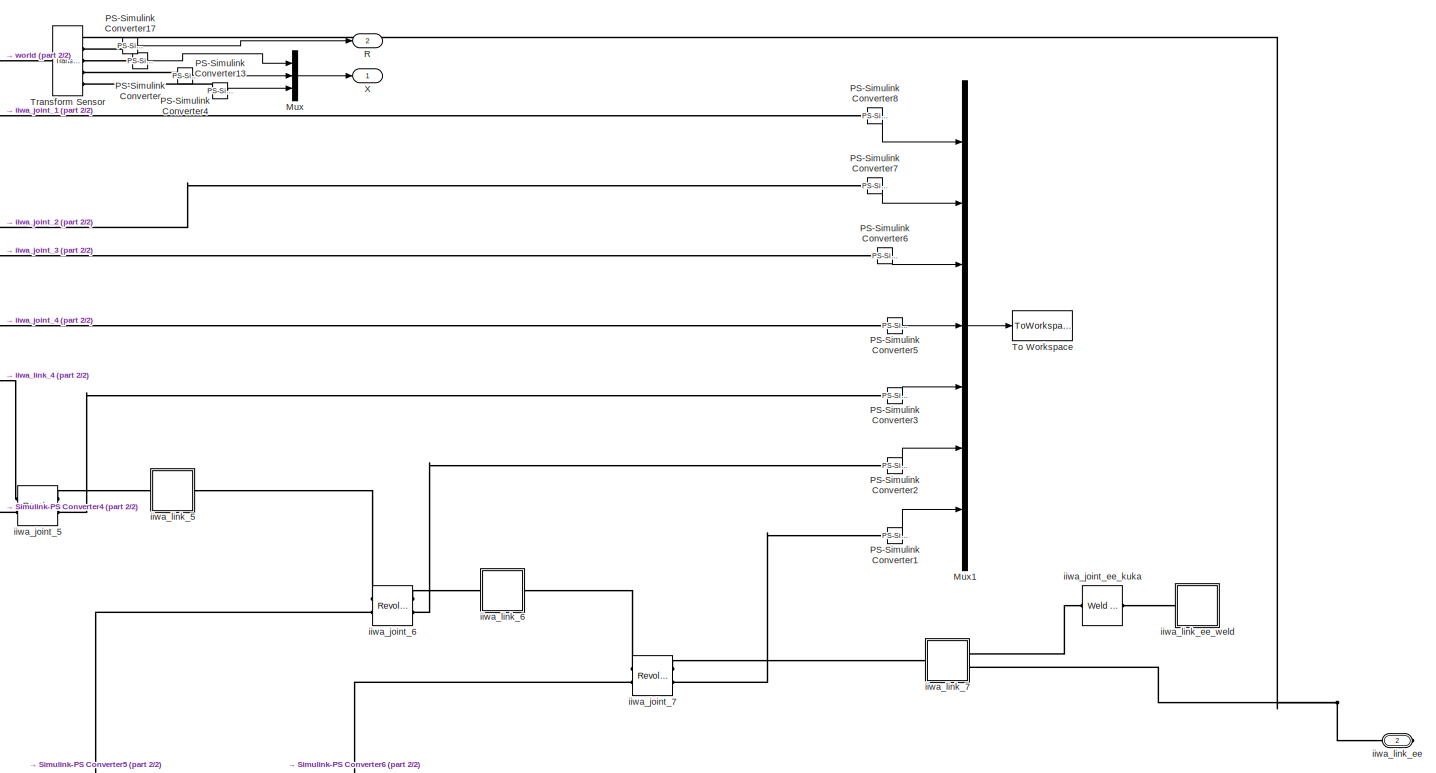
[diagram: KUKA LWR right/KUKA_iiwa 1  - part 1/2, right side, full height]
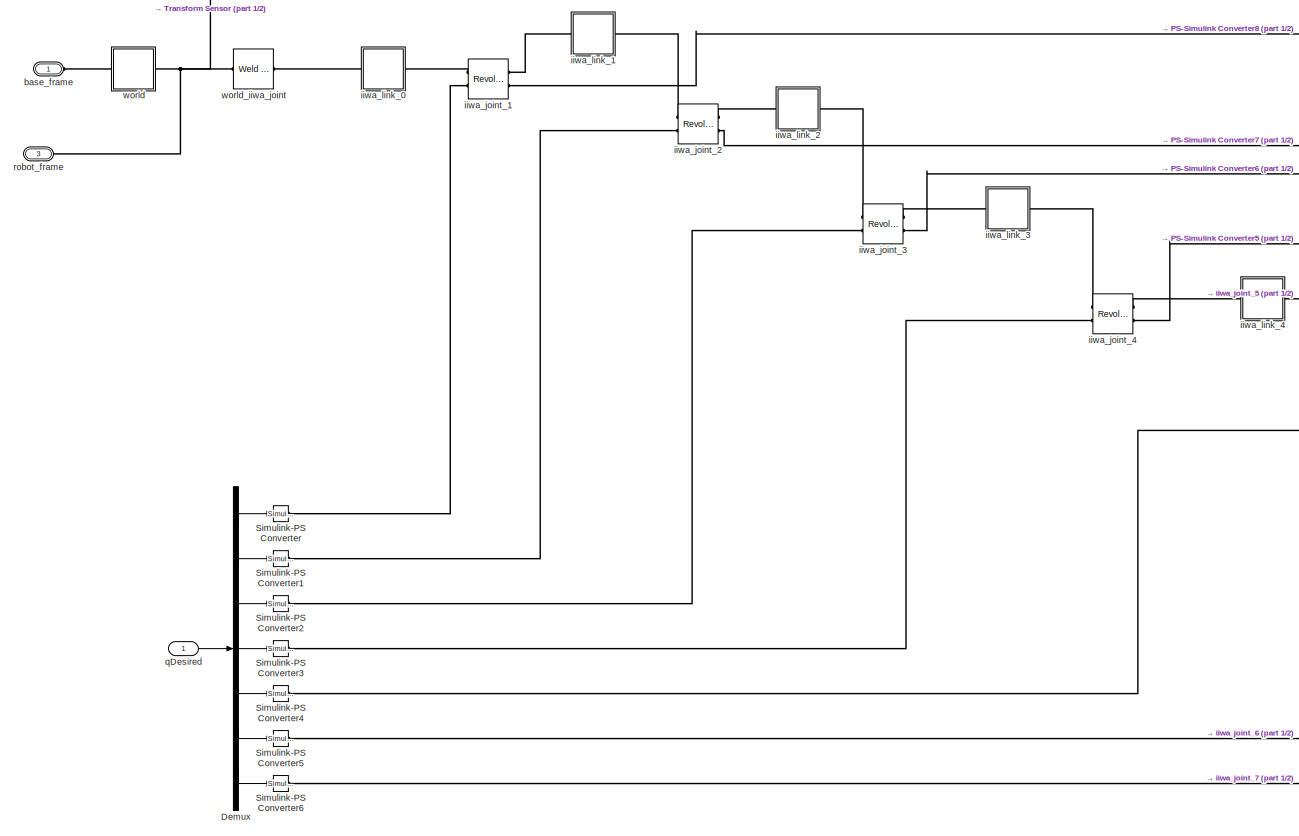
[diagram: KUKA LWR right/KUKA_iiwa 1  - part 2/2, left side, full height]
BLOCK [SubSystem] KUKA LWR right/KUKA_iiwa 1 
  Ports = [1, 2, 0, 0, 0, 2, 1]
  RequestExecContextInheritance = off
BLOCK [Demux] KUKA LWR right/KUKA_iiwa 1 /Demux
  DisplayOption = bar
  Outputs = 7
  Ports = [1, 7]
BLOCK [Mux] KUKA LWR right/KUKA_iiwa 1 /Mux
  DisplayOption = bar
  Inputs = 3
  Ports = [3, 1]
BLOCK [Mux] KUKA LWR right/KUKA_iiwa 1 /Mux1
  DisplayOption = bar
  Inputs = 7
  Ports = [7, 1]
BLOCK [Reference] KUKA LWR right/KUKA_iiwa 1 /PS-Simulink Converter  REF=nesl_utility/PS-Simulink
Converter
  Ports = [0, 1, 0, 0, 0, 1]
  SourceBlock = nesl_utility/PS-Simulink\nConverter
  SourceProductBaseCode = SS
  SourceProductName = Simscape
  SourceType = PS-Simulink\nConverter
BLOCK [Reference] KUKA LWR right/KUKA_iiwa 1 /PS-Simulink Converter1  REF=nesl_utility/PS-Simulink
Converter
  Ports = [0, 1, 0, 0, 0, 1]
  SourceBlock = nesl_utility/PS-Simulink\nConverter
  SourceProductBaseCode = SS
  SourceProductName = Simscape
  SourceType = PS-Simulink\nConverter
BLOCK [Reference] KUKA LWR right/KUKA_iiwa 1 /PS-Simulink Converter13  REF=nesl_utility/PS-Simulink
Converter
  Ports = [0, 1, 0, 0, 0, 1]
  SourceBlock = nesl_utility/PS-Simulink\nConverter
  SourceProductBaseCode = SS
  SourceProductName = Simscape
  SourceType = PS-Simulink\nConverter
BLOCK [Reference] KUKA LWR right/KUKA_iiwa 1 /PS-Simulink Converter17  REF=nesl_utility/PS-Simulink
Converter
  Ports = [0, 1, 0, 0, 0, 1]
  SourceBlock = nesl_utility/PS-Simulink\nConverter
  SourceProductBaseCode = SS
  SourceProductName = Simscape
  SourceType = PS-Simulink\nConverter
BLOCK [Reference] KUKA LWR right/KUKA_iiwa 1 /PS-Simulink Converter2  REF=nesl_utility/PS-Simulink
Converter
  Ports = [0, 1, 0, 0, 0, 1]
  SourceBlock = nesl_utility/PS-Simulink\nConverter
  SourceProductBaseCode = SS
  SourceProductName = Simscape
  SourceType = PS-Simulink\nConverter
BLOCK [Reference] KUKA LWR right/KUKA_iiwa 1 /PS-Simulink Converter3  REF=nesl_utility/PS-Simulink
Converter
  Ports = [0, 1, 0, 0, 0, 1]
  SourceBlock = nesl_utility/PS-Simulink\nConverter
  SourceProductBaseCode = SS
  SourceProductName = Simscape
  SourceType = PS-Simulink\nConverter
BLOCK [Reference] KUKA LWR right/KUKA_iiwa 1 /PS-Simulink Converter4  REF=nesl_utility/PS-Simulink
Converter
  Ports = [0, 1, 0, 0, 0, 1]
  SourceBlock = nesl_utility/PS-Simulink\nConverter
  SourceProductBaseCode = SS
  SourceProductName = Simscape
  SourceType = PS-Simulink\nConverter
BLOCK [Reference] KUKA LWR right/KUKA_iiwa 1 /PS-Simulink Converter5  REF=nesl_utility/PS-Simulink
Converter
  Ports = [0, 1, 0, 0, 0, 1]
  SourceBlock = nesl_utility/PS-Simulink\nConverter
  SourceProductBaseCode = SS
  SourceProductName = Simscape
  SourceType = PS-Simulink\nConverter
BLOCK [Reference] KUKA LWR right/KUKA_iiwa 1 /PS-Simulink Converter6  REF=nesl_utility/PS-Simulink
Converter
  Ports = [0, 1, 0, 0, 0, 1]
  SourceBlock = nesl_utility/PS-Simulink\nConverter
  SourceProductBaseCode = SS
  SourceProductName = Simscape
  SourceType = PS-Simulink\nConverter
BLOCK [Reference] KUKA LWR right/KUKA_iiwa 1 /PS-Simulink Converter7  REF=nesl_utility/PS-Simulink
Converter
  Ports = [0, 1, 0, 0, 0, 1]
  SourceBlock = nesl_utility/PS-Simulink\nConverter
  SourceProductBaseCode = SS
  SourceProductName = Simscape
  SourceType = PS-Simulink\nConverter
BLOCK [Reference] KUKA LWR right/KUKA_iiwa 1 /PS-Simulink Converter8  REF=nesl_utility/PS-Simulink
Converter
  Ports = [0, 1, 0, 0, 0, 1]
  SourceBlock = nesl_utility/PS-Simulink\nConverter
  SourceProductBaseCode = SS
  SourceProductName = Simscape
  SourceType = PS-Simulink\nConverter
BLOCK [Outport] KUKA LWR right/KUKA_iiwa 1 /R
  IconDisplay = Port number
  Port = 2
BLOCK [Reference] KUKA LWR right/KUKA_iiwa 1 /Simulink-PS Converter  REF=nesl_utility/Simulink-PS
Converter
  Ports = [1, 0, 0, 0, 0, 0, 1]
  SourceBlock = nesl_utility/Simulink-PS\nConverter
  SourceProductBaseCode = SS
  SourceProductName = Simscape
  SourceType = Simulink-PS\nConverter
BLOCK [Reference] KUKA LWR right/KUKA_iiwa 1 /Simulink-PS Converter1  REF=nesl_utility/Simulink-PS
Converter
  Ports = [1, 0, 0, 0, 0, 0, 1]
  SourceBlock = nesl_utility/Simulink-PS\nConverter
  SourceProductBaseCode = SS
  SourceProductName = Simscape
  SourceType = Simulink-PS\nConverter
BLOCK [Reference] KUKA LWR right/KUKA_iiwa 1 /Simulink-PS Converter2  REF=nesl_utility/Simulink-PS
Converter
  Ports = [1, 0, 0, 0, 0, 0, 1]
  SourceBlock = nesl_utility/Simulink-PS\nConverter
  SourceProductBaseCode = SS
  SourceProductName = Simscape
  SourceType = Simulink-PS\nConverter
BLOCK [Reference] KUKA LWR right/KUKA_iiwa 1 /Simulink-PS Converter3  REF=nesl_utility/Simulink-PS
Converter
  Ports = [1, 0, 0, 0, 0, 0, 1]
  SourceBlock = nesl_utility/Simulink-PS\nConverter
  SourceProductBaseCode = SS
  SourceProductName = Simscape
  SourceType = Simulink-PS\nConverter
BLOCK [Reference] KUKA LWR right/KUKA_iiwa 1 /Simulink-PS Converter4  REF=nesl_utility/Simulink-PS
Converter
  Ports = [1, 0, 0, 0, 0, 0, 1]
  SourceBlock = nesl_utility/Simulink-PS\nConverter
  SourceProductBaseCode = SS
  SourceProductName = Simscape
  SourceType = Simulink-PS\nConverter
BLOCK [Reference] KUKA LWR right/KUKA_iiwa 1 /Simulink-PS Converter5  REF=nesl_utility/Simulink-PS
Converter
  Ports = [1, 0, 0, 0, 0, 0, 1]
  SourceBlock = nesl_utility/Simulink-PS\nConverter
  SourceProductBaseCode = SS
  SourceProductName = Simscape
  SourceType = Simulink-PS\nConverter
BLOCK [Reference] KUKA LWR right/KUKA_iiwa 1 /Simulink-PS Converter6  REF=nesl_utility/Simulink-PS
Converter
  Ports = [1, 0, 0, 0, 0, 0, 1]
  SourceBlock = nesl_utility/Simulink-PS\nConverter
  SourceProductBaseCode = SS
  SourceProductName = Simscape
  SourceType = Simulink-PS\nConverter
BLOCK [ToWorkspace] KUKA LWR right/KUKA_iiwa 1 /To Workspace
  FixptAsFi = on
  MaxDataPoints = inf
  Ports = [1]
  SampleTime = T
  Save2DSignal = 2-D array (concatenate along first dimension)
  VariableName = q_right
BLOCK [Reference] KUKA LWR right/KUKA_iiwa 1 /Transform Sensor  REF=sm_lib/Frames and
Transforms/Transform
Sensor
  Ports = [0, 0, 0, 0, 0, 1, 5]
  SourceBlock = sm_lib/Frames and\nTransforms/Transform\nSensor
  SourceProductBaseCode = MS
  SourceProductName = Simscape Multibody
  SourceType = Transform\nSensor
BLOCK [Outport] KUKA LWR right/KUKA_iiwa 1 /X
  IconDisplay = Port number
BLOCK [PMIOPort] KUKA LWR right/KUKA_iiwa 1 /base_frame
  Side = Left
BLOCK [Reference] KUKA LWR right/KUKA_iiwa 1 /iiwa_joint_1  REF=sm_lib/Joints/Revolute Joint
  Ports = [0, 0, 0, 0, 0, 2, 2]
  SourceBlock = sm_lib/Joints/Revolute Joint
  SourceProductBaseCode = MS
  SourceProductName = Simscape Multibody
  SourceType = Revolute Joint
BLOCK [Reference] KUKA LWR right/KUKA_iiwa 1 /iiwa_joint_2  REF=sm_lib/Joints/Revolute Joint
  Ports = [0, 0, 0, 0, 0, 2, 2]
  SourceBlock = sm_lib/Joints/Revolute Joint
  SourceProductBaseCode = MS
  SourceProductName = Simscape Multibody
  SourceType = Revolute Joint
BLOCK [Reference] KUKA LWR right/KUKA_iiwa 1 /iiwa_joint_3  REF=sm_lib/Joints/Revolute Joint
  Ports = [0, 0, 0, 0, 0, 2, 2]
  SourceBlock = sm_lib/Joints/Revolute Joint
  SourceProductBaseCode = MS
  SourceProductName = Simscape Multibody
  SourceType = Revolute Joint
BLOCK [Reference] KUKA LWR right/KUKA_iiwa 1 /iiwa_joint_4  REF=sm_lib/Joints/Revolute Joint
  Ports = [0, 0, 0, 0, 0, 2, 2]
  SourceBlock = sm_lib/Joints/Revolute Joint
  SourceProductBaseCode = MS
  SourceProductName = Simscape Multibody
  SourceType = Revolute Joint
BLOCK [Reference] KUKA LWR right/KUKA_iiwa 1 /iiwa_joint_5  REF=sm_lib/Joints/Revolute Joint
  Ports = [0, 0, 0, 0, 0, 2, 2]
  SourceBlock = sm_lib/Joints/Revolute Joint
  SourceProductBaseCode = MS
  SourceProductName = Simscape Multibody
  SourceType = Revolute Joint
BLOCK [Reference] KUKA LWR right/KUKA_iiwa 1 /iiwa_joint_6  REF=sm_lib/Joints/Revolute Joint
  Ports = [0, 0, 0, 0, 0, 2, 2]
  SourceBlock = sm_lib/Joints/Revolute Joint
  SourceProductBaseCode = MS
  SourceProductName = Simscape Multibody
  SourceType = Revolute Joint
BLOCK [Reference] KUKA LWR right/KUKA_iiwa 1 /iiwa_joint_7  REF=sm_lib/Joints/Revolute Joint
  Ports = [0, 0, 0, 0, 0, 2, 2]
  SourceBlock = sm_lib/Joints/Revolute Joint
  SourceProductBaseCode = MS
  SourceProductName = Simscape Multibody
  SourceType = Revolute Joint
BLOCK [Reference] KUKA LWR right/KUKA_iiwa 1 /iiwa_joint_ee_kuka  REF=sm_lib/Joints/Weld Joint
  Ports = [0, 0, 0, 0, 0, 1, 1]
  SourceBlock = sm_lib/Joints/Weld Joint
  SourceProductBaseCode = MS
  SourceProductName = Simscape Multibody
  SourceType = Weld Joint
BLOCK [SubSystem] KUKA LWR right/KUKA_iiwa 1 /iiwa_link_0
  Ports = [0, 0, 0, 0, 0, 1, 1]
  RequestExecContextInheritance = off
BLOCK [PMIOPort] KUKA LWR right/KUKA_iiwa 1 /iiwa_link_0/F
  Side = Left
BLOCK [PMIOPort] KUKA LWR right/KUKA_iiwa 1 /iiwa_link_0/F1
  Port = 2
  Side = Right
BLOCK [Reference] KUKA LWR right/KUKA_iiwa 1 /iiwa_link_0/Inertia  REF=sm_lib/Body Elements/Inertia
  Ports = [0, 0, 0, 0, 0, 0, 1]
  SourceBlock = sm_lib/Body Elements/Inertia
  SourceProductBaseCode = MS
  SourceProductName = Simscape Multibody
  SourceType = Inertia
BLOCK [Reference] KUKA LWR right/KUKA_iiwa 1 /iiwa_link_0/InertiaOriginTransform  REF=sm_lib/Frames and
Transforms/Rigid
Transform
  Ports = [0, 0, 0, 0, 0, 1, 1]
  SourceBlock = sm_lib/Frames and\nTransforms/Rigid\nTransform
  SourceProductBaseCode = MS
  SourceProductName = Simscape Multibody
  SourceType = Rigid\nTransform
BLOCK [Reference] KUKA LWR right/KUKA_iiwa 1 /iiwa_link_0/ReferenceFrame  REF=sm_lib/Frames and
Transforms/Reference
Frame
  Ports = [0, 0, 0, 0, 0, 0, 1]
  SourceBlock = sm_lib/Frames and\nTransforms/Reference\nFrame
  SourceProductBaseCode = MS
  SourceProductName = Simscape Multibody
  SourceType = Reference\nFrame
BLOCK [Reference] KUKA LWR right/KUKA_iiwa 1 /iiwa_link_0/Visual  REF=sm_lib/Body Elements/Solid
  Ports = [0, 0, 0, 0, 0, 0, 1]
  SourceBlock = sm_lib/Body Elements/Solid
  SourceProductBaseCode = MS
  SourceProductName = Simscape Multibody
  SourceType = Solid
BLOCK [Reference] KUKA LWR right/KUKA_iiwa 1 /iiwa_link_0/VisualOriginTransform  REF=sm_lib/Frames and
Transforms/Rigid
Transform
  Ports = [0, 0, 0, 0, 0, 1, 1]
  SourceBlock = sm_lib/Frames and\nTransforms/Rigid\nTransform
  SourceProductBaseCode = MS
  SourceProductName = Simscape Multibody
  SourceType = Rigid\nTransform
BLOCK [Reference] KUKA LWR right/KUKA_iiwa 1 /iiwa_link_0/iiwa_joint_1_AxisTransform  REF=sm_lib/Frames and
Transforms/Rigid
Transform
  Ports = [0, 0, 0, 0, 0, 1, 1]
  SourceBlock = sm_lib/Frames and\nTransforms/Rigid\nTransform
  SourceProductBaseCode = MS
  SourceProductName = Simscape Multibody
  SourceType = Rigid\nTransform
BLOCK [Reference] KUKA LWR right/KUKA_iiwa 1 /iiwa_link_0/iiwa_joint_1_OriginTransform  REF=sm_lib/Frames and
Transforms/Rigid
Transform
  Ports = [0, 0, 0, 0, 0, 1, 1]
  SourceBlock = sm_lib/Frames and\nTransforms/Rigid\nTransform
  SourceProductBaseCode = MS
  SourceProductName = Simscape Multibody
  SourceType = Rigid\nTransform
BLOCK [SubSystem] KUKA LWR right/KUKA_iiwa 1 /iiwa_link_1
  Ports = [0, 0, 0, 0, 0, 1, 1]
  RequestExecContextInheritance = off
BLOCK [PMIOPort] KUKA LWR right/KUKA_iiwa 1 /iiwa_link_1/F
  Side = Left
BLOCK [PMIOPort] KUKA LWR right/KUKA_iiwa 1 /iiwa_link_1/F1
  Port = 2
  Side = Right
BLOCK [Reference] KUKA LWR right/KUKA_iiwa 1 /iiwa_link_1/Inertia  REF=sm_lib/Body Elements/Inertia
  Ports = [0, 0, 0, 0, 0, 0, 1]
  SourceBlock = sm_lib/Body Elements/Inertia
  SourceProductBaseCode = MS
  SourceProductName = Simscape Multibody
  SourceType = Inertia
BLOCK [Reference] KUKA LWR right/KUKA_iiwa 1 /iiwa_link_1/InertiaOriginTransform  REF=sm_lib/Frames and
Transforms/Rigid
Transform
  Ports = [0, 0, 0, 0, 0, 1, 1]
  SourceBlock = sm_lib/Frames and\nTransforms/Rigid\nTransform
  SourceProductBaseCode = MS
  SourceProductName = Simscape Multibody
  SourceType = Rigid\nTransform
BLOCK [Reference] KUKA LWR right/KUKA_iiwa 1 /iiwa_link_1/ReferenceFrame  REF=sm_lib/Frames and
Transforms/Reference
Frame
  Ports = [0, 0, 0, 0, 0, 0, 1]
  SourceBlock = sm_lib/Frames and\nTransforms/Reference\nFrame
  SourceProductBaseCode = MS
  SourceProductName = Simscape Multibody
  SourceType = Reference\nFrame
BLOCK [Reference] KUKA LWR right/KUKA_iiwa 1 /iiwa_link_1/Visual  REF=sm_lib/Body Elements/Solid
  Ports = [0, 0, 0, 0, 0, 0, 1]
  SourceBlock = sm_lib/Body Elements/Solid
  SourceProductBaseCode = MS
  SourceProductName = Simscape Multibody
  SourceType = Solid
BLOCK [Reference] KUKA LWR right/KUKA_iiwa 1 /iiwa_link_1/VisualOriginTransform  REF=sm_lib/Frames and
Transforms/Rigid
Transform
  Ports = [0, 0, 0, 0, 0, 1, 1]
  SourceBlock = sm_lib/Frames and\nTransforms/Rigid\nTransform
  SourceProductBaseCode = MS
  SourceProductName = Simscape Multibody
  SourceType = Rigid\nTransform
BLOCK [Reference] KUKA LWR right/KUKA_iiwa 1 /iiwa_link_1/iiwa_joint_1_AxisInvTransform  REF=sm_lib/Frames and
Transforms/Rigid
Transform
  Ports = [0, 0, 0, 0, 0, 1, 1]
  SourceBlock = sm_lib/Frames and\nTransforms/Rigid\nTransform
  SourceProductBaseCode = MS
  SourceProductName = Simscape Multibody
  SourceType = Rigid\nTransform
BLOCK [Reference] KUKA LWR right/KUKA_iiwa 1 /iiwa_link_1/iiwa_joint_2_AxisTransform  REF=sm_lib/Frames and
Transforms/Rigid
Transform
  Ports = [0, 0, 0, 0, 0, 1, 1]
  SourceBlock = sm_lib/Frames and\nTransforms/Rigid\nTransform
  SourceProductBaseCode = MS
  SourceProductName = Simscape Multibody
  SourceType = Rigid\nTransform
BLOCK [Reference] KUKA LWR right/KUKA_iiwa 1 /iiwa_link_1/iiwa_joint_2_OriginTransform  REF=sm_lib/Frames and
Transforms/Rigid
Transform
  Ports = [0, 0, 0, 0, 0, 1, 1]
  SourceBlock = sm_lib/Frames and\nTransforms/Rigid\nTransform
  SourceProductBaseCode = MS
  SourceProductName = Simscape Multibody
  SourceType = Rigid\nTransform
BLOCK [SubSystem] KUKA LWR right/KUKA_iiwa 1 /iiwa_link_2
  Ports = [0, 0, 0, 0, 0, 1, 1]
  RequestExecContextInheritance = off
BLOCK [PMIOPort] KUKA LWR right/KUKA_iiwa 1 /iiwa_link_2/F
  Side = Left
BLOCK [PMIOPort] KUKA LWR right/KUKA_iiwa 1 /iiwa_link_2/F1
  Port = 2
  Side = Right
BLOCK [Reference] KUKA LWR right/KUKA_iiwa 1 /iiwa_link_2/Inertia  REF=sm_lib/Body Elements/Inertia
  Ports = [0, 0, 0, 0, 0, 0, 1]
  SourceBlock = sm_lib/Body Elements/Inertia
  SourceProductBaseCode = MS
  SourceProductName = Simscape Multibody
  SourceType = Inertia
BLOCK [Reference] KUKA LWR right/KUKA_iiwa 1 /iiwa_link_2/InertiaOriginTransform  REF=sm_lib/Frames and
Transforms/Rigid
Transform
  Ports = [0, 0, 0, 0, 0, 1, 1]
  SourceBlock = sm_lib/Frames and\nTransforms/Rigid\nTransform
  SourceProductBaseCode = MS
  SourceProductName = Simscape Multibody
  SourceType = Rigid\nTransform
BLOCK [Reference] KUKA LWR right/KUKA_iiwa 1 /iiwa_link_2/ReferenceFrame  REF=sm_lib/Frames and
Transforms/Reference
Frame
  Ports = [0, 0, 0, 0, 0, 0, 1]
  SourceBlock = sm_lib/Frames and\nTransforms/Reference\nFrame
  SourceProductBaseCode = MS
  SourceProductName = Simscape Multibody
  SourceType = Reference\nFrame
BLOCK [Reference] KUKA LWR right/KUKA_iiwa 1 /iiwa_link_2/Visual  REF=sm_lib/Body Elements/Solid
  Ports = [0, 0, 0, 0, 0, 0, 1]
  SourceBlock = sm_lib/Body Elements/Solid
  SourceProductBaseCode = MS
  SourceProductName = Simscape Multibody
  SourceType = Solid
BLOCK [Reference] KUKA LWR right/KUKA_iiwa 1 /iiwa_link_2/VisualOriginTransform  REF=sm_lib/Frames and
Transforms/Rigid
Transform
  Ports = [0, 0, 0, 0, 0, 1, 1]
  SourceBlock = sm_lib/Frames and\nTransforms/Rigid\nTransform
  SourceProductBaseCode = MS
  SourceProductName = Simscape Multibody
  SourceType = Rigid\nTransform
BLOCK [Reference] KUKA LWR right/KUKA_iiwa 1 /iiwa_link_2/iiwa_joint_2_AxisInvTransform  REF=sm_lib/Frames and
Transforms/Rigid
Transform
  Ports = [0, 0, 0, 0, 0, 1, 1]
  SourceBlock = sm_lib/Frames and\nTransforms/Rigid\nTransform
  SourceProductBaseCode = MS
  SourceProductName = Simscape Multibody
  SourceType = Rigid\nTransform
BLOCK [Reference] KUKA LWR right/KUKA_iiwa 1 /iiwa_link_2/iiwa_joint_3_AxisTransform  REF=sm_lib/Frames and
Transforms/Rigid
Transform
  Ports = [0, 0, 0, 0, 0, 1, 1]
  SourceBlock = sm_lib/Frames and\nTransforms/Rigid\nTransform
  SourceProductBaseCode = MS
  SourceProductName = Simscape Multibody
  SourceType = Rigid\nTransform
BLOCK [Reference] KUKA LWR right/KUKA_iiwa 1 /iiwa_link_2/iiwa_joint_3_OriginTransform  REF=sm_lib/Frames and
Transforms/Rigid
Transform
  Ports = [0, 0, 0, 0, 0, 1, 1]
  SourceBlock = sm_lib/Frames and\nTransforms/Rigid\nTransform
  SourceProductBaseCode = MS
  SourceProductName = Simscape Multibody
  SourceType = Rigid\nTransform
BLOCK [SubSystem] KUKA LWR right/KUKA_iiwa 1 /iiwa_link_3
  Ports = [0, 0, 0, 0, 0, 1, 1]
  RequestExecContextInheritance = off
BLOCK [PMIOPort] KUKA LWR right/KUKA_iiwa 1 /iiwa_link_3/F
  Side = Left
BLOCK [PMIOPort] KUKA LWR right/KUKA_iiwa 1 /iiwa_link_3/F1
  Port = 2
  Side = Right
BLOCK [Reference] KUKA LWR right/KUKA_iiwa 1 /iiwa_link_3/Inertia  REF=sm_lib/Body Elements/Inertia
  Ports = [0, 0, 0, 0, 0, 0, 1]
  SourceBlock = sm_lib/Body Elements/Inertia
  SourceProductBaseCode = MS
  SourceProductName = Simscape Multibody
  SourceType = Inertia
BLOCK [Reference] KUKA LWR right/KUKA_iiwa 1 /iiwa_link_3/InertiaOriginTransform  REF=sm_lib/Frames and
Transforms/Rigid
Transform
  Ports = [0, 0, 0, 0, 0, 1, 1]
  SourceBlock = sm_lib/Frames and\nTransforms/Rigid\nTransform
  SourceProductBaseCode = MS
  SourceProductName = Simscape Multibody
  SourceType = Rigid\nTransform
BLOCK [Reference] KUKA LWR right/KUKA_iiwa 1 /iiwa_link_3/ReferenceFrame  REF=sm_lib/Frames and
Transforms/Reference
Frame
  Ports = [0, 0, 0, 0, 0, 0, 1]
  SourceBlock = sm_lib/Frames and\nTransforms/Reference\nFrame
  SourceProductBaseCode = MS
  SourceProductName = Simscape Multibody
  SourceType = Reference\nFrame
BLOCK [Reference] KUKA LWR right/KUKA_iiwa 1 /iiwa_link_3/Visual  REF=sm_lib/Body Elements/Solid
  Ports = [0, 0, 0, 0, 0, 0, 1]
  SourceBlock = sm_lib/Body Elements/Solid
  SourceProductBaseCode = MS
  SourceProductName = Simscape Multibody
  SourceType = Solid
BLOCK [Reference] KUKA LWR right/KUKA_iiwa 1 /iiwa_link_3/VisualOriginTransform  REF=sm_lib/Frames and
Transforms/Rigid
Transform
  Ports = [0, 0, 0, 0, 0, 1, 1]
  SourceBlock = sm_lib/Frames and\nTransforms/Rigid\nTransform
  SourceProductBaseCode = MS
  SourceProductName = Simscape Multibody
  SourceType = Rigid\nTransform
BLOCK [Reference] KUKA LWR right/KUKA_iiwa 1 /iiwa_link_3/iiwa_joint_3_AxisInvTransform  REF=sm_lib/Frames and
Transforms/Rigid
Transform
  Ports = [0, 0, 0, 0, 0, 1, 1]
  SourceBlock = sm_lib/Frames and\nTransforms/Rigid\nTransform
  SourceProductBaseCode = MS
  SourceProductName = Simscape Multibody
  SourceType = Rigid\nTransform
BLOCK [Reference] KUKA LWR right/KUKA_iiwa 1 /iiwa_link_3/iiwa_joint_4_AxisTransform  REF=sm_lib/Frames and
Transforms/Rigid
Transform
  Ports = [0, 0, 0, 0, 0, 1, 1]
  SourceBlock = sm_lib/Frames and\nTransforms/Rigid\nTransform
  SourceProductBaseCode = MS
  SourceProductName = Simscape Multibody
  SourceType = Rigid\nTransform
BLOCK [Reference] KUKA LWR right/KUKA_iiwa 1 /iiwa_link_3/iiwa_joint_4_OriginTransform  REF=sm_lib/Frames and
Transforms/Rigid
Transform
  Ports = [0, 0, 0, 0, 0, 1, 1]
  SourceBlock = sm_lib/Frames and\nTransforms/Rigid\nTransform
  SourceProductBaseCode = MS
  SourceProductName = Simscape Multibody
  SourceType = Rigid\nTransform
BLOCK [SubSystem] KUKA LWR right/KUKA_iiwa 1 /iiwa_link_4
  Ports = [0, 0, 0, 0, 0, 1, 1]
  RequestExecContextInheritance = off
BLOCK [PMIOPort] KUKA LWR right/KUKA_iiwa 1 /iiwa_link_4/F
  Side = Left
BLOCK [PMIOPort] KUKA LWR right/KUKA_iiwa 1 /iiwa_link_4/F1
  Port = 2
  Side = Right
BLOCK [Reference] KUKA LWR right/KUKA_iiwa 1 /iiwa_link_4/Inertia  REF=sm_lib/Body Elements/Inertia
  Ports = [0, 0, 0, 0, 0, 0, 1]
  SourceBlock = sm_lib/Body Elements/Inertia
  SourceProductBaseCode = MS
  SourceProductName = Simscape Multibody
  SourceType = Inertia
BLOCK [Reference] KUKA LWR right/KUKA_iiwa 1 /iiwa_link_4/InertiaOriginTransform  REF=sm_lib/Frames and
Transforms/Rigid
Transform
  Ports = [0, 0, 0, 0, 0, 1, 1]
  SourceBlock = sm_lib/Frames and\nTransforms/Rigid\nTransform
  SourceProductBaseCode = MS
  SourceProductName = Simscape Multibody
  SourceType = Rigid\nTransform
BLOCK [Reference] KUKA LWR right/KUKA_iiwa 1 /iiwa_link_4/ReferenceFrame  REF=sm_lib/Frames and
Transforms/Reference
Frame
  Ports = [0, 0, 0, 0, 0, 0, 1]
  SourceBlock = sm_lib/Frames and\nTransforms/Reference\nFrame
  SourceProductBaseCode = MS
  SourceProductName = Simscape Multibody
  SourceType = Reference\nFrame
BLOCK [Reference] KUKA LWR right/KUKA_iiwa 1 /iiwa_link_4/Visual  REF=sm_lib/Body Elements/Solid
  Ports = [0, 0, 0, 0, 0, 0, 1]
  SourceBlock = sm_lib/Body Elements/Solid
  SourceProductBaseCode = MS
  SourceProductName = Simscape Multibody
  SourceType = Solid
BLOCK [Reference] KUKA LWR right/KUKA_iiwa 1 /iiwa_link_4/VisualOriginTransform  REF=sm_lib/Frames and
Transforms/Rigid
Transform
  Ports = [0, 0, 0, 0, 0, 1, 1]
  SourceBlock = sm_lib/Frames and\nTransforms/Rigid\nTransform
  SourceProductBaseCode = MS
  SourceProductName = Simscape Multibody
  SourceType = Rigid\nTransform
BLOCK [Reference] KUKA LWR right/KUKA_iiwa 1 /iiwa_link_4/iiwa_joint_4_AxisInvTransform  REF=sm_lib/Frames and
Transforms/Rigid
Transform
  Ports = [0, 0, 0, 0, 0, 1, 1]
  SourceBlock = sm_lib/Frames and\nTransforms/Rigid\nTransform
  SourceProductBaseCode = MS
  SourceProductName = Simscape Multibody
  SourceType = Rigid\nTransform
BLOCK [Reference] KUKA LWR right/KUKA_iiwa 1 /iiwa_link_4/iiwa_joint_5_AxisTransform  REF=sm_lib/Frames and
Transforms/Rigid
Transform
  Ports = [0, 0, 0, 0, 0, 1, 1]
  SourceBlock = sm_lib/Frames and\nTransforms/Rigid\nTransform
  SourceProductBaseCode = MS
  SourceProductName = Simscape Multibody
  SourceType = Rigid\nTransform
BLOCK [Reference] KUKA LWR right/KUKA_iiwa 1 /iiwa_link_4/iiwa_joint_5_OriginTransform  REF=sm_lib/Frames and
Transforms/Rigid
Transform
  Ports = [0, 0, 0, 0, 0, 1, 1]
  SourceBlock = sm_lib/Frames and\nTransforms/Rigid\nTransform
  SourceProductBaseCode = MS
  SourceProductName = Simscape Multibody
  SourceType = Rigid\nTransform
BLOCK [SubSystem] KUKA LWR right/KUKA_iiwa 1 /iiwa_link_5
  Ports = [0, 0, 0, 0, 0, 1, 1]
  RequestExecContextInheritance = off
BLOCK [PMIOPort] KUKA LWR right/KUKA_iiwa 1 /iiwa_link_5/F
  Side = Left
BLOCK [PMIOPort] KUKA LWR right/KUKA_iiwa 1 /iiwa_link_5/F1
  Port = 2
  Side = Right
BLOCK [Reference] KUKA LWR right/KUKA_iiwa 1 /iiwa_link_5/Inertia  REF=sm_lib/Body Elements/Inertia
  Ports = [0, 0, 0, 0, 0, 0, 1]
  SourceBlock = sm_lib/Body Elements/Inertia
  SourceProductBaseCode = MS
  SourceProductName = Simscape Multibody
  SourceType = Inertia
BLOCK [Reference] KUKA LWR right/KUKA_iiwa 1 /iiwa_link_5/InertiaOriginTransform  REF=sm_lib/Frames and
Transforms/Rigid
Transform
  Ports = [0, 0, 0, 0, 0, 1, 1]
  SourceBlock = sm_lib/Frames and\nTransforms/Rigid\nTransform
  SourceProductBaseCode = MS
  SourceProductName = Simscape Multibody
  SourceType = Rigid\nTransform
BLOCK [Reference] KUKA LWR right/KUKA_iiwa 1 /iiwa_link_5/ReferenceFrame  REF=sm_lib/Frames and
Transforms/Reference
Frame
  Ports = [0, 0, 0, 0, 0, 0, 1]
  SourceBlock = sm_lib/Frames and\nTransforms/Reference\nFrame
  SourceProductBaseCode = MS
  SourceProductName = Simscape Multibody
  SourceType = Reference\nFrame
BLOCK [Reference] KUKA LWR right/KUKA_iiwa 1 /iiwa_link_5/Visual  REF=sm_lib/Body Elements/Solid
  Ports = [0, 0, 0, 0, 0, 0, 1]
  SourceBlock = sm_lib/Body Elements/Solid
  SourceProductBaseCode = MS
  SourceProductName = Simscape Multibody
  SourceType = Solid
BLOCK [Reference] KUKA LWR right/KUKA_iiwa 1 /iiwa_link_5/VisualOriginTransform  REF=sm_lib/Frames and
Transforms/Rigid
Transform
  Ports = [0, 0, 0, 0, 0, 1, 1]
  SourceBlock = sm_lib/Frames and\nTransforms/Rigid\nTransform
  SourceProductBaseCode = MS
  SourceProductName = Simscape Multibody
  SourceType = Rigid\nTransform
BLOCK [Reference] KUKA LWR right/KUKA_iiwa 1 /iiwa_link_5/iiwa_joint_5_AxisInvTransform  REF=sm_lib/Frames and
Transforms/Rigid
Transform
  Ports = [0, 0, 0, 0, 0, 1, 1]
  SourceBlock = sm_lib/Frames and\nTransforms/Rigid\nTransform
  SourceProductBaseCode = MS
  SourceProductName = Simscape Multibody
  SourceType = Rigid\nTransform
BLOCK [Reference] KUKA LWR right/KUKA_iiwa 1 /iiwa_link_5/iiwa_joint_6_AxisTransform  REF=sm_lib/Frames and
Transforms/Rigid
Transform
  Ports = [0, 0, 0, 0, 0, 1, 1]
  SourceBlock = sm_lib/Frames and\nTransforms/Rigid\nTransform
  SourceProductBaseCode = MS
  SourceProductName = Simscape Multibody
  SourceType = Rigid\nTransform
BLOCK [Reference] KUKA LWR right/KUKA_iiwa 1 /iiwa_link_5/iiwa_joint_6_OriginTransform  REF=sm_lib/Frames and
Transforms/Rigid
Transform
  Ports = [0, 0, 0, 0, 0, 1, 1]
  SourceBlock = sm_lib/Frames and\nTransforms/Rigid\nTransform
  SourceProductBaseCode = MS
  SourceProductName = Simscape Multibody
  SourceType = Rigid\nTransform
BLOCK [SubSystem] KUKA LWR right/KUKA_iiwa 1 /iiwa_link_6
  Ports = [0, 0, 0, 0, 0, 1, 1]
  RequestExecContextInheritance = off
BLOCK [PMIOPort] KUKA LWR right/KUKA_iiwa 1 /iiwa_link_6/F
  Side = Left
BLOCK [PMIOPort] KUKA LWR right/KUKA_iiwa 1 /iiwa_link_6/F1
  Port = 2
  Side = Right
BLOCK [Reference] KUKA LWR right/KUKA_iiwa 1 /iiwa_link_6/Inertia  REF=sm_lib/Body Elements/Inertia
  Ports = [0, 0, 0, 0, 0, 0, 1]
  SourceBlock = sm_lib/Body Elements/Inertia
  SourceProductBaseCode = MS
  SourceProductName = Simscape Multibody
  SourceType = Inertia
BLOCK [Reference] KUKA LWR right/KUKA_iiwa 1 /iiwa_link_6/InertiaOriginTransform  REF=sm_lib/Frames and
Transforms/Rigid
Transform
  Ports = [0, 0, 0, 0, 0, 1, 1]
  SourceBlock = sm_lib/Frames and\nTransforms/Rigid\nTransform
  SourceProductBaseCode = MS
  SourceProductName = Simscape Multibody
  SourceType = Rigid\nTransform
BLOCK [Reference] KUKA LWR right/KUKA_iiwa 1 /iiwa_link_6/ReferenceFrame  REF=sm_lib/Frames and
Transforms/Reference
Frame
  Ports = [0, 0, 0, 0, 0, 0, 1]
  SourceBlock = sm_lib/Frames and\nTransforms/Reference\nFrame
  SourceProductBaseCode = MS
  SourceProductName = Simscape Multibody
  SourceType = Reference\nFrame
BLOCK [Reference] KUKA LWR right/KUKA_iiwa 1 /iiwa_link_6/Visual  REF=sm_lib/Body Elements/Solid
  Ports = [0, 0, 0, 0, 0, 0, 1]
  SourceBlock = sm_lib/Body Elements/Solid
  SourceProductBaseCode = MS
  SourceProductName = Simscape Multibody
  SourceType = Solid
BLOCK [Reference] KUKA LWR right/KUKA_iiwa 1 /iiwa_link_6/VisualOriginTransform  REF=sm_lib/Frames and
Transforms/Rigid
Transform
  Ports = [0, 0, 0, 0, 0, 1, 1]
  SourceBlock = sm_lib/Frames and\nTransforms/Rigid\nTransform
  SourceProductBaseCode = MS
  SourceProductName = Simscape Multibody
  SourceType = Rigid\nTransform
BLOCK [Reference] KUKA LWR right/KUKA_iiwa 1 /iiwa_link_6/iiwa_joint_6_AxisInvTransform  REF=sm_lib/Frames and
Transforms/Rigid
Transform
  Ports = [0, 0, 0, 0, 0, 1, 1]
  SourceBlock = sm_lib/Frames and\nTransforms/Rigid\nTransform
  SourceProductBaseCode = MS
  SourceProductName = Simscape Multibody
  SourceType = Rigid\nTransform
BLOCK [Reference] KUKA LWR right/KUKA_iiwa 1 /iiwa_link_6/iiwa_joint_7_AxisTransform  REF=sm_lib/Frames and
Transforms/Rigid
Transform
  Ports = [0, 0, 0, 0, 0, 1, 1]
  SourceBlock = sm_lib/Frames and\nTransforms/Rigid\nTransform
  SourceProductBaseCode = MS
  SourceProductName = Simscape Multibody
  SourceType = Rigid\nTransform
BLOCK [Reference] KUKA LWR right/KUKA_iiwa 1 /iiwa_link_6/iiwa_joint_7_OriginTransform  REF=sm_lib/Frames and
Transforms/Rigid
Transform
  Ports = [0, 0, 0, 0, 0, 1, 1]
  SourceBlock = sm_lib/Frames and\nTransforms/Rigid\nTransform
  SourceProductBaseCode = MS
  SourceProductName = Simscape Multibody
  SourceType = Rigid\nTransform
BLOCK [SubSystem] KUKA LWR right/KUKA_iiwa 1 /iiwa_link_7
  Ports = [0, 0, 0, 0, 0, 1, 2]
  RequestExecContextInheritance = off
BLOCK [PMIOPort] KUKA LWR right/KUKA_iiwa 1 /iiwa_link_7/F
  Side = Left
BLOCK [PMIOPort] KUKA LWR right/KUKA_iiwa 1 /iiwa_link_7/F1
  Port = 3
  Side = Right
BLOCK [PMIOPort] KUKA LWR right/KUKA_iiwa 1 /iiwa_link_7/F2
  Port = 2
  Side = Right
BLOCK [Reference] KUKA LWR right/KUKA_iiwa 1 /iiwa_link_7/Inertia  REF=sm_lib/Body Elements/Inertia
  Ports = [0, 0, 0, 0, 0, 0, 1]
  SourceBlock = sm_lib/Body Elements/Inertia
  SourceProductBaseCode = MS
  SourceProductName = Simscape Multibody
  SourceType = Inertia
BLOCK [Reference] KUKA LWR right/KUKA_iiwa 1 /iiwa_link_7/InertiaOriginTransform  REF=sm_lib/Frames and
Transforms/Rigid
Transform
  Ports = [0, 0, 0, 0, 0, 1, 1]
  SourceBlock = sm_lib/Frames and\nTransforms/Rigid\nTransform
  SourceProductBaseCode = MS
  SourceProductName = Simscape Multibody
  SourceType = Rigid\nTransform
BLOCK [Reference] KUKA LWR right/KUKA_iiwa 1 /iiwa_link_7/ReferenceFrame  REF=sm_lib/Frames and
Transforms/Reference
Frame
  Ports = [0, 0, 0, 0, 0, 0, 1]
  SourceBlock = sm_lib/Frames and\nTransforms/Reference\nFrame
  SourceProductBaseCode = MS
  SourceProductName = Simscape Multibody
  SourceType = Reference\nFrame
BLOCK [Reference] KUKA LWR right/KUKA_iiwa 1 /iiwa_link_7/Visual  REF=sm_lib/Body Elements/Solid
  Ports = [0, 0, 0, 0, 0, 0, 1]
  SourceBlock = sm_lib/Body Elements/Solid
  SourceProductBaseCode = MS
  SourceProductName = Simscape Multibody
  SourceType = Solid
BLOCK [Reference] KUKA LWR right/KUKA_iiwa 1 /iiwa_link_7/VisualOriginTransform  REF=sm_lib/Frames and
Transforms/Rigid
Transform
  Ports = [0, 0, 0, 0, 0, 1, 1]
  SourceBlock = sm_lib/Frames and\nTransforms/Rigid\nTransform
  SourceProductBaseCode = MS
  SourceProductName = Simscape Multibody
  SourceType = Rigid\nTransform
BLOCK [Reference] KUKA LWR right/KUKA_iiwa 1 /iiwa_link_7/iiwa_joint_7_AxisInvTransform  REF=sm_lib/Frames and
Transforms/Rigid
Transform
  Ports = [0, 0, 0, 0, 0, 1, 1]
  SourceBlock = sm_lib/Frames and\nTransforms/Rigid\nTransform
  SourceProductBaseCode = MS
  SourceProductName = Simscape Multibody
  SourceType = Rigid\nTransform
BLOCK [Reference] KUKA LWR right/KUKA_iiwa 1 /iiwa_link_7/iiwa_joint_ee_OriginTransform  REF=sm_lib/Frames and
Transforms/Rigid
Transform
  Ports = [0, 0, 0, 0, 0, 1, 1]
  SourceBlock = sm_lib/Frames and\nTransforms/Rigid\nTransform
  SourceProductBaseCode = MS
  SourceProductName = Simscape Multibody
  SourceType = Rigid\nTransform
BLOCK [Reference] KUKA LWR right/KUKA_iiwa 1 /iiwa_link_7/iiwa_joint_ee_kuka_OriginTransform  REF=sm_lib/Frames and
Transforms/Rigid
Transform
  Ports = [0, 0, 0, 0, 0, 1, 1]
  SourceBlock = sm_lib/Frames and\nTransforms/Rigid\nTransform
  SourceProductBaseCode = MS
  SourceProductName = Simscape Multibody
  SourceType = Rigid\nTransform
BLOCK [PMIOPort] KUKA LWR right/KUKA_iiwa 1 /iiwa_link_ee
  Port = 2
  Side = Right
BLOCK [SubSystem] KUKA LWR right/KUKA_iiwa 1 /iiwa_link_ee_weld
  Ports = [0, 0, 0, 0, 0, 1]
  RequestExecContextInheritance = off
BLOCK [PMIOPort] KUKA LWR right/KUKA_iiwa 1 /iiwa_link_ee_weld/F
  Side = Left
BLOCK [Reference] KUKA LWR right/KUKA_iiwa 1 /iiwa_link_ee_weld/ReferenceFrame  REF=sm_lib/Frames and
Transforms/Reference
Frame
  Ports = [0, 0, 0, 0, 0, 0, 1]
  SourceBlock = sm_lib/Frames and\nTransforms/Reference\nFrame
  SourceProductBaseCode = MS
  SourceProductName = Simscape Multibody
  SourceType = Reference\nFrame
BLOCK [Inport] KUKA LWR right/KUKA_iiwa 1 /qDesired
  IconDisplay = Port number
BLOCK [PMIOPort] KUKA LWR right/KUKA_iiwa 1 /robot_frame
  Port = 3
  Side = Left
BLOCK [SubSystem] KUKA LWR right/KUKA_iiwa 1 /world
  Ports = [0, 0, 0, 0, 0, 1, 1]
  RequestExecContextInheritance = off
BLOCK [PMIOPort] KUKA LWR right/KUKA_iiwa 1 /world/F
  Side = Left
BLOCK [PMIOPort] KUKA LWR right/KUKA_iiwa 1 /world/F1
  Port = 2
  Side = Right
BLOCK [Reference] KUKA LWR right/KUKA_iiwa 1 /world/ReferenceFrame  REF=sm_lib/Frames and
Transforms/Reference
Frame
  Ports = [0, 0, 0, 0, 0, 0, 1]
  SourceBlock = sm_lib/Frames and\nTransforms/Reference\nFrame
  SourceProductBaseCode = MS
  SourceProductName = Simscape Multibody
  SourceType = Reference\nFrame
BLOCK [Reference] KUKA LWR right/KUKA_iiwa 1 /world/world_iiwa_joint_OriginTransform  REF=sm_lib/Frames and
Transforms/Rigid
Transform
  Ports = [0, 0, 0, 0, 0, 1, 1]
  SourceBlock = sm_lib/Frames and\nTransforms/Rigid\nTransform
  SourceProductBaseCode = MS
  SourceProductName = Simscape Multibody
  SourceType = Rigid\nTransform
BLOCK [Reference] KUKA LWR right/KUKA_iiwa 1 /world_iiwa_joint  REF=sm_lib/Joints/Weld Joint
  Ports = [0, 0, 0, 0, 0, 1, 1]
  SourceBlock = sm_lib/Joints/Weld Joint
  SourceProductBaseCode = MS
  SourceProductName = Simscape Multibody
  SourceType = Weld Joint
BLOCK [Reference] KUKA LWR right/Reference Frame  REF=sm_lib/Frames and
Transforms/Reference
Frame
  Ports = [0, 0, 0, 0, 0, 0, 1]
  SourceBlock = sm_lib/Frames and\nTransforms/Reference\nFrame
  SourceProductBaseCode = MS
  SourceProductName = Simscape Multibody
  SourceType = Reference\nFrame
BLOCK [Reference] KUKA LWR right/Rigid Transform  REF=sm_lib/Frames and
Transforms/Rigid
Transform
  Ports = [0, 0, 0, 0, 0, 1, 1]
  SourceBlock = sm_lib/Frames and\nTransforms/Rigid\nTransform
  SourceProductBaseCode = MS
  SourceProductName = Simscape Multibody
  SourceType = Rigid\nTransform
BLOCK [Reference] KUKA LWR right/Rigid Transform1  REF=sm_lib/Frames and
Transforms/Rigid
Transform
  Ports = [0, 0, 0, 0, 0, 1, 1]
  SourceBlock = sm_lib/Frames and\nTransforms/Rigid\nTransform
  SourceProductBaseCode = MS
  SourceProductName = Simscape Multibody
  SourceType = Rigid\nTransform
BLOCK [Terminator] KUKA LWR right/Terminator
BLOCK [Outport] KUKA LWR right/X
  IconDisplay = Port number
  Port = 2
BLOCK [PMIOPort] KUKA LWR right/base
  Side = Left
BLOCK [PMIOPort] KUKA LWR right/gripper
  Port = 2
  Side = Right
BLOCK [Inport] KUKA LWR right/pos_new
  IconDisplay = Port number
  Port = 2
BLOCK [Outport] KUKA LWR right/ypr
  IconDisplay = Port number
BLOCK [Inport] KUKA LWR right/ypr_new
  IconDisplay = Port number
BLOCK [Reference] MechanismConfiguration  REF=sm_lib/Utilities/Mechanism
Configuration
  Ports = [0, 0, 0, 0, 0, 0, 1]
  SourceBlock = sm_lib/Utilities/Mechanism\nConfiguration
  SourceProductBaseCode = MS
  SourceProductName = Simscape Multibody
  SourceType = Mechanism\nConfiguration
BLOCK [Reference] Solver Configuration  REF=nesl_utility/Solver
Configuration
  Ports = [0, 0, 0, 0, 0, 0, 1]
  SourceBlock = nesl_utility/Solver\nConfiguration
  SourceProductBaseCode = SS
  SourceProductName = Simscape
  SourceType = Solver\nConfiguration
BLOCK [SubSystem] Subsystem
  Ports = [5, 1]
  RequestExecContextInheritance = off
BLOCK [Constant] Subsystem/Constant1
  Value = fixture_x
BLOCK [Delay] Subsystem/Delay1
  DelayLength = 1
  InitialCondition = -9999*ones(5,1)
  InputPortMap = u0
  Ports = [1, 1]
BLOCK [Delay] Subsystem/Delay2
  DelayLength = 1
  InitialCondition = 0
  InputPortMap = u0
  Ports = [1, 1]
BLOCK [Inport] Subsystem/J
  IconDisplay = Port number
  Port = 3
BLOCK [ToWorkspace] Subsystem/To Workspace
  FixptAsFi = on
  MaxDataPoints = inf
  Ports = [1]
  SampleTime = T
  Save2DSignal = 2-D array (concatenate along first dimension)
  VariableName = deformation_state
BLOCK [ToWorkspace] Subsystem/To Workspace1
  FixptAsFi = on
  MaxDataPoints = inf
  Ports = [1]
  SampleTime = T
  Save2DSignal = 2-D array (concatenate along first dimension)
  VariableName = deformation_state_des
BLOCK [ToWorkspace] Subsystem/To Workspace2
  FixptAsFi = on
  MaxDataPoints = inf
  Ports = [1]
  SampleTime = T
  Save2DSignal = 2-D array (concatenate along first dimension)
  VariableName = beam_state_wf
BLOCK [Inport] Subsystem/beam_state_wf
  IconDisplay = Port number
BLOCK [Inport] Subsystem/beam_state_wf_des
  IconDisplay = Port number
  Port = 2
BLOCK [SubSystem] Subsystem/deformation ctrl
  ErrorFcn = Stateflow.Translate.translate
  PermitHierarchicalResolution = ExplicitOnly
  Ports = [7, 2]
  RequestExecContextInheritance = off
  SFBlockType = MATLAB Function
  TreatAsAtomicUnit = on
BLOCK [Demux] Subsystem/deformation ctrl/ Demux 
  Outputs = 1
  Ports = [1, 1]
BLOCK [S-Function] Subsystem/deformation ctrl/ SFunction 
  EnableBusSupport = on
  FunctionName = sf_sfun
  PortCounts = [7 3]
  Ports = [7, 3]
  SFcnIsStateOwnerBlock = off
  SFunctionDeploymentMode = off
  Tag = Stateflow S-Function alignment_bending_procedure_n_4 1
BLOCK [Terminator] Subsystem/deformation ctrl/ Terminator 
BLOCK [Inport] Subsystem/deformation ctrl/J
  IconDisplay = Port number
  Port = 3
BLOCK [Inport] Subsystem/deformation ctrl/beam_state_wf
  IconDisplay = Port number
BLOCK [Inport] Subsystem/deformation ctrl/beam_state_wf_des
  IconDisplay = Port number
  Port = 2
BLOCK [Inport] Subsystem/deformation ctrl/deformation_state
  IconDisplay = Port number
  Port = 5
BLOCK [Outport] Subsystem/deformation ctrl/deformation_state_des_new
  IconDisplay = Port number
BLOCK [Inport] Subsystem/deformation ctrl/deformation_state_des_old
  IconDisplay = Port number
  Port = 6
BLOCK [Outport] Subsystem/deformation ctrl/n_iterations_new
  IconDisplay = Port number
  Port = 2
BLOCK [Inport] Subsystem/deformation ctrl/n_iterations_old
  IconDisplay = Port number
  Port = 7
BLOCK [Inport] Subsystem/deformation ctrl/x_wf_des
  IconDisplay = Port number
  Port = 4
BLOCK [SubSystem] Subsystem/deformation_input_msr
  ErrorFcn = Stateflow.Translate.translate
  PermitHierarchicalResolution = ExplicitOnly
  Ports = [4, 1]
  RequestExecContextInheritance = off
  SFBlockType = MATLAB Function
  TreatAsAtomicUnit = on
BLOCK [Demux] Subsystem/deformation_input_msr/ Demux 
  Outputs = 1
  Ports = [1, 1]
BLOCK [S-Function] Subsystem/deformation_input_msr/ SFunction 
  EnableBusSupport = on
  FunctionName = sf_sfun
  PortCounts = [4 2]
  Ports = [4, 2]
  SFcnIsStateOwnerBlock = off
  SFunctionDeploymentMode = off
  Tag = Stateflow S-Function alignment_bending_procedure_n_4 4
BLOCK [Terminator] Subsystem/deformation_input_msr/ Terminator 
BLOCK [Outport] Subsystem/deformation_input_msr/deformation_state
  IconDisplay = Port number
BLOCK [Inport] Subsystem/deformation_input_msr/wf_T_rf_left
  IconDisplay = Port number
  Port = 3
BLOCK [Inport] Subsystem/deformation_input_msr/wf_T_rf_right
  IconDisplay = Port number
  Port = 4
BLOCK [Inport] Subsystem/deformation_input_msr/xyz_rf_left
  IconDisplay = Port number
BLOCK [Inport] Subsystem/deformation_input_msr/xyz_rf_right
  IconDisplay = Port number
  Port = 2
BLOCK [Outport] Subsystem/deformation_state_des
  IconDisplay = Port number
BLOCK [Constant] Subsystem/sampling_time1
  Value = wf_T_rf_left
BLOCK [Constant] Subsystem/sampling_time2
  Value = wf_T_rf_right
BLOCK [Inport] Subsystem/xyz_wf_left
  IconDisplay = Port number
  Port = 4
BLOCK [Inport] Subsystem/xyz_wf_right
  IconDisplay = Port number
  Port = 5
BLOCK [Reference] World  REF=sm_lib/Frames and
Transforms/World Frame
  Ports = [0, 0, 0, 0, 0, 0, 1]
  SourceBlock = sm_lib/Frames and\nTransforms/World Frame
  SourceProductBaseCode = MS
  SourceProductName = Simscape Multibody
  SourceType = World Frame
LINE BEAM1/Constant:1 -> BEAM1/MATLAB Function1:2
NET BEAM1/MATLAB Function1:1 -> BEAM1/To Workspace1:1, BEAM1/error measure:1
NET BEAM1/Mux1:1 -> BEAM1/Sum1:2, BEAM1/yz_beam_wf:1
LINE BEAM1/PS-Simulink Converter11:1 -> BEAM1/Mux1:7
LINE BEAM1/PS-Simulink Converter12:1 -> BEAM1/Mux1:8
LINE BEAM1/PS-Simulink Converter1:1 -> BEAM1/Mux1:5
LINE BEAM1/PS-Simulink Converter2:1 -> BEAM1/Mux1:3
LINE BEAM1/PS-Simulink Converter3:1 -> BEAM1/Mux1:4
LINE BEAM1/PS-Simulink Converter4:1 -> BEAM1/Mux1:6
LINE BEAM1/PS-Simulink Converter7:1 -> BEAM1/Mux1:1
LINE BEAM1/PS-Simulink Converter8:1 -> BEAM1/Mux1:2
NET BEAM1/Sum1:1 -> BEAM1/Coordinates errors1:1, BEAM1/MATLAB Function1:1
LINE BEAM1/sampling_time2:1 -> BEAM1/Sum1:1
LINE BEAM1:1 -> Delay:1
LINE CONTROLLER1/CONTROLLER/Controller:1 -> CONTROLLER1/CONTROLLER/Demux:1
LINE CONTROLLER1/CONTROLLER/Controller:2 -> CONTROLLER1/CONTROLLER/Demux1:1
NET CONTROLLER1/CONTROLLER/Controller:3 -> CONTROLLER1/CONTROLLER/Delay:1, CONTROLLER1/CONTROLLER/To Workspace2:1
LINE CONTROLLER1/CONTROLLER/Controller:4 -> CONTROLLER1/CONTROLLER/Delay2:1
LINE CONTROLLER1/CONTROLLER/Delay2:1 -> CONTROLLER1/CONTROLLER/Controller:9
LINE CONTROLLER1/CONTROLLER/Delay:1 -> CONTROLLER1/CONTROLLER/Controller:8
LINE CONTROLLER1/CONTROLLER/Demux1:1 -> CONTROLLER1/CONTROLLER/ypr_rf_new_left:1
LINE CONTROLLER1/CONTROLLER/Demux1:2 -> CONTROLLER1/CONTROLLER/ypr_rf_new_right:1
NET CONTROLLER1/CONTROLLER/Demux:1 -> CONTROLLER1/CONTROLLER/output1:1, CONTROLLER1/CONTROLLER/xyz_rf_new_left:1
NET CONTROLLER1/CONTROLLER/Demux:2 -> CONTROLLER1/CONTROLLER/output2:1, CONTROLLER1/CONTROLLER/xyz_rf_new_right:1
LINE CONTROLLER1/CONTROLLER/Mux1:1 -> CONTROLLER1/CONTROLLER/Controller:6
LINE CONTROLLER1/CONTROLLER/Mux2:1 -> CONTROLLER1/CONTROLLER/Controller:7
LINE CONTROLLER1/CONTROLLER/sampling_time1:1 -> CONTROLLER1/CONTROLLER/Controller:4
LINE CONTROLLER1/CONTROLLER/sampling_time2:1 -> CONTROLLER1/CONTROLLER/Controller:5
LINE CONTROLLER1/CONTROLLER/sampling_time:1 -> CONTROLLER1/CONTROLLER/Controller:1
LINE CONTROLLER1/CONTROLLER/xyz_beam_wf_des:1 -> CONTROLLER1/CONTROLLER/Controller:3
LINE CONTROLLER1/CONTROLLER/xyz_beam_wf_old:1 -> CONTROLLER1/CONTROLLER/Controller:2
LINE CONTROLLER1/CONTROLLER/xyz_rf_old_left :1 -> CONTROLLER1/CONTROLLER/Mux2:1
LINE CONTROLLER1/CONTROLLER/xyz_rf_old_right:1 -> CONTROLLER1/CONTROLLER/Mux2:2
LINE CONTROLLER1/CONTROLLER/ypr_rf_old_left:1 -> CONTROLLER1/CONTROLLER/Mux1:1
LINE CONTROLLER1/CONTROLLER/ypr_rf_old_right:1 -> CONTROLLER1/CONTROLLER/Mux1:2
LINE CONTROLLER1/CONTROLLER:1 -> CONTROLLER1/ypr_rf_new_left:1
LINE CONTROLLER1/CONTROLLER:2 -> CONTROLLER1/ypr_rf_new_right:1
LINE CONTROLLER1/CONTROLLER:3 -> CONTROLLER1/xyz_rf_new_left:1
LINE CONTROLLER1/CONTROLLER:4 -> CONTROLLER1/xyz_rf_new_right:1
LINE CONTROLLER1/xyz_beam_wf_des:1 -> CONTROLLER1/CONTROLLER:2
LINE CONTROLLER1/xyz_rf_old_left:1 -> CONTROLLER1/CONTROLLER:3
LINE CONTROLLER1/xyz_rf_old_right:1 -> CONTROLLER1/CONTROLLER:4
LINE CONTROLLER1/ypr_rf_old_left:1 -> CONTROLLER1/CONTROLLER:5
LINE CONTROLLER1/ypr_rf_old_right:1 -> CONTROLLER1/CONTROLLER:6
LINE CONTROLLER1/yz_beam_wf:1 -> CONTROLLER1/CONTROLLER:1
LINE CONTROLLER1:1 -> KUKA LWR  left:1
LINE CONTROLLER1:2 -> KUKA LWR  left:2
LINE CONTROLLER1:3 -> KUKA LWR right:1
LINE CONTROLLER1:4 -> KUKA LWR right:2
LINE Constant1:1 -> Subsystem:2
LINE Constant:1 -> Subsystem:3
NET Delay:1 -> CONTROLLER1:1, Subsystem:1
LINE KUKA LWR  left/Constant:1 -> KUKA LWR  left/Inverse Kinematics:2
LINE KUKA LWR  left/Coordinate Transformation Conversion1:1 -> KUKA LWR  left/Inverse Kinematics:1
LINE KUKA LWR  left/Coordinate Transformation Conversion:1 -> KUKA LWR  left/Delay1:1
LINE KUKA LWR  left/Delay1:1 -> KUKA LWR  left/ypr:1
LINE KUKA LWR  left/Delay2:1 -> KUKA LWR  left/X:1
LINE KUKA LWR  left/Delay:1 -> KUKA LWR  left/Inverse Kinematics:3
LINE KUKA LWR  left/Gripper input/Constant1:1 -> KUKA LWR  left/Gripper input/Simulink-PS Converter1:1
LINE KUKA LWR  left/Gripper input/Constant:1 -> KUKA LWR  left/Gripper input/Simulink-PS Converter:1
LINE KUKA LWR  left/Gripper input/x-Coordinates 1:1 -> KUKA LWR  left/Gripper input/Terminator:1
NET KUKA LWR  left/Inverse Kinematics:1 -> KUKA LWR  left/Delay:1, KUKA LWR  left/KUKA_iiwa 1 :1
LINE KUKA LWR  left/Inverse Kinematics:2 -> KUKA LWR  left/Terminator:1
LINE KUKA LWR  left/KUKA_iiwa 1 /Demux:1 -> KUKA LWR  left/KUKA_iiwa 1 /Simulink-PS Converter:1
LINE KUKA LWR  left/KUKA_iiwa 1 /Demux:2 -> KUKA LWR  left/KUKA_iiwa 1 /Simulink-PS Converter1:1
LINE KUKA LWR  left/KUKA_iiwa 1 /Demux:3 -> KUKA LWR  left/KUKA_iiwa 1 /Simulink-PS Converter2:1
LINE KUKA LWR  left/KUKA_iiwa 1 /Demux:4 -> KUKA LWR  left/KUKA_iiwa 1 /Simulink-PS Converter3:1
LINE KUKA LWR  left/KUKA_iiwa 1 /Demux:5 -> KUKA LWR  left/KUKA_iiwa 1 /Simulink-PS Converter4:1
LINE KUKA LWR  left/KUKA_iiwa 1 /Demux:6 -> KUKA LWR  left/KUKA_iiwa 1 /Simulink-PS Converter5:1
LINE KUKA LWR  left/KUKA_iiwa 1 /Demux:7 -> KUKA LWR  left/KUKA_iiwa 1 /Simulink-PS Converter6:1
LINE KUKA LWR  left/KUKA_iiwa 1 /Mux1:1 -> KUKA LWR  left/KUKA_iiwa 1 /To Workspace:1
LINE KUKA LWR  left/KUKA_iiwa 1 /Mux:1 -> KUKA LWR  left/KUKA_iiwa 1 /position:1
LINE KUKA LWR  left/KUKA_iiwa 1 /PS-Simulink Converter13:1 -> KUKA LWR  left/KUKA_iiwa 1 /Mux:3
LINE KUKA LWR  left/KUKA_iiwa 1 /PS-Simulink Converter17:1 -> KUKA LWR  left/KUKA_iiwa 1 /orientation:1
LINE KUKA LWR  left/KUKA_iiwa 1 /PS-Simulink Converter1:1 -> KUKA LWR  left/KUKA_iiwa 1 /Mux1:7
LINE KUKA LWR  left/KUKA_iiwa 1 /PS-Simulink Converter2:1 -> KUKA LWR  left/KUKA_iiwa 1 /Mux1:6
LINE KUKA LWR  left/KUKA_iiwa 1 /PS-Simulink Converter3:1 -> KUKA LWR  left/KUKA_iiwa 1 /Mux1:5
LINE KUKA LWR  left/KUKA_iiwa 1 /PS-Simulink Converter4:1 -> KUKA LWR  left/KUKA_iiwa 1 /Mux:2
LINE KUKA LWR  left/KUKA_iiwa 1 /PS-Simulink Converter5:1 -> KUKA LWR  left/KUKA_iiwa 1 /Mux1:4
LINE KUKA LWR  left/KUKA_iiwa 1 /PS-Simulink Converter6:1 -> KUKA LWR  left/KUKA_iiwa 1 /Mux1:3
LINE KUKA LWR  left/KUKA_iiwa 1 /PS-Simulink Converter7:1 -> KUKA LWR  left/KUKA_iiwa 1 /Mux1:2
LINE KUKA LWR  left/KUKA_iiwa 1 /PS-Simulink Converter8:1 -> KUKA LWR  left/KUKA_iiwa 1 /Mux1:1
LINE KUKA LWR  left/KUKA_iiwa 1 /PS-Simulink Converter:1 -> KUKA LWR  left/KUKA_iiwa 1 /Mux:1
LINE KUKA LWR  left/KUKA_iiwa 1 /qDesired:1 -> KUKA LWR  left/KUKA_iiwa 1 /Demux:1
LINE KUKA LWR  left/KUKA_iiwa 1 :1 -> KUKA LWR  left/Delay2:1
LINE KUKA LWR  left/KUKA_iiwa 1 :2 -> KUKA LWR  left/Coordinate Transformation Conversion:1
LINE KUKA LWR  left/pos_new:1 -> KUKA LWR  left/Coordinate Transformation Conversion1:2
LINE KUKA LWR  left/ypr_new:1 -> KUKA LWR  left/Coordinate Transformation Conversion1:1
LINE KUKA LWR  left:1 -> CONTROLLER1:3
NET KUKA LWR  left:2 -> CONTROLLER1:4, Subsystem:4
LINE KUKA LWR right/Constant:1 -> KUKA LWR right/Inverse Kinematics:2
LINE KUKA LWR right/Coordinate Transformation Conversion1:1 -> KUKA LWR right/Inverse Kinematics:1
LINE KUKA LWR right/Coordinate Transformation Conversion:1 -> KUKA LWR right/Delay1:1
LINE KUKA LWR right/Delay1:1 -> KUKA LWR right/ypr:1
LINE KUKA LWR right/Delay2:1 -> KUKA LWR right/X:1
LINE KUKA LWR right/Delay:1 -> KUKA LWR right/Inverse Kinematics:3
LINE KUKA LWR right/Gripper input/Constant1:1 -> KUKA LWR right/Gripper input/Simulink-PS Converter1:1
LINE KUKA LWR right/Gripper input/Constant:1 -> KUKA LWR right/Gripper input/Simulink-PS Converter:1
LINE KUKA LWR right/Gripper input/x-Coordinates 1:1 -> KUKA LWR right/Gripper input/Terminator:1
NET KUKA LWR right/Inverse Kinematics:1 -> KUKA LWR right/Delay:1, KUKA LWR right/KUKA_iiwa 1 :1
LINE KUKA LWR right/Inverse Kinematics:2 -> KUKA LWR right/Terminator:1
LINE KUKA LWR right/KUKA_iiwa 1 /Demux:1 -> KUKA LWR right/KUKA_iiwa 1 /Simulink-PS Converter:1
LINE KUKA LWR right/KUKA_iiwa 1 /Demux:2 -> KUKA LWR right/KUKA_iiwa 1 /Simulink-PS Converter1:1
LINE KUKA LWR right/KUKA_iiwa 1 /Demux:3 -> KUKA LWR right/KUKA_iiwa 1 /Simulink-PS Converter2:1
LINE KUKA LWR right/KUKA_iiwa 1 /Demux:4 -> KUKA LWR right/KUKA_iiwa 1 /Simulink-PS Converter3:1
LINE KUKA LWR right/KUKA_iiwa 1 /Demux:5 -> KUKA LWR right/KUKA_iiwa 1 /Simulink-PS Converter4:1
LINE KUKA LWR right/KUKA_iiwa 1 /Demux:6 -> KUKA LWR right/KUKA_iiwa 1 /Simulink-PS Converter5:1
LINE KUKA LWR right/KUKA_iiwa 1 /Demux:7 -> KUKA LWR right/KUKA_iiwa 1 /Simulink-PS Converter6:1
LINE KUKA LWR right/KUKA_iiwa 1 /Mux1:1 -> KUKA LWR right/KUKA_iiwa 1 /To Workspace:1
LINE KUKA LWR right/KUKA_iiwa 1 /Mux:1 -> KUKA LWR right/KUKA_iiwa 1 /X:1
LINE KUKA LWR right/KUKA_iiwa 1 /PS-Simulink Converter13:1 -> KUKA LWR right/KUKA_iiwa 1 /Mux:3
LINE KUKA LWR right/KUKA_iiwa 1 /PS-Simulink Converter17:1 -> KUKA LWR right/KUKA_iiwa 1 /R:1
LINE KUKA LWR right/KUKA_iiwa 1 /PS-Simulink Converter1:1 -> KUKA LWR right/KUKA_iiwa 1 /Mux1:7
LINE KUKA LWR right/KUKA_iiwa 1 /PS-Simulink Converter2:1 -> KUKA LWR right/KUKA_iiwa 1 /Mux1:6
LINE KUKA LWR right/KUKA_iiwa 1 /PS-Simulink Converter3:1 -> KUKA LWR right/KUKA_iiwa 1 /Mux1:5
LINE KUKA LWR right/KUKA_iiwa 1 /PS-Simulink Converter4:1 -> KUKA LWR right/KUKA_iiwa 1 /Mux:2
LINE KUKA LWR right/KUKA_iiwa 1 /PS-Simulink Converter5:1 -> KUKA LWR right/KUKA_iiwa 1 /Mux1:4
LINE KUKA LWR right/KUKA_iiwa 1 /PS-Simulink Converter6:1 -> KUKA LWR right/KUKA_iiwa 1 /Mux1:3
LINE KUKA LWR right/KUKA_iiwa 1 /PS-Simulink Converter7:1 -> KUKA LWR right/KUKA_iiwa 1 /Mux1:2
LINE KUKA LWR right/KUKA_iiwa 1 /PS-Simulink Converter8:1 -> KUKA LWR right/KUKA_iiwa 1 /Mux1:1
LINE KUKA LWR right/KUKA_iiwa 1 /PS-Simulink Converter:1 -> KUKA LWR right/KUKA_iiwa 1 /Mux:1
LINE KUKA LWR right/KUKA_iiwa 1 /qDesired:1 -> KUKA LWR right/KUKA_iiwa 1 /Demux:1
LINE KUKA LWR right/KUKA_iiwa 1 :1 -> KUKA LWR right/Delay2:1
LINE KUKA LWR right/KUKA_iiwa 1 :2 -> KUKA LWR right/Coordinate Transformation Conversion:1
LINE KUKA LWR right/pos_new:1 -> KUKA LWR right/Coordinate Transformation Conversion1:2
LINE KUKA LWR right/ypr_new:1 -> KUKA LWR right/Coordinate Transformation Conversion1:1
LINE KUKA LWR right:1 -> CONTROLLER1:5
NET KUKA LWR right:2 -> CONTROLLER1:6, Subsystem:5
LINE Subsystem/Constant1:1 -> Subsystem/deformation ctrl:4
LINE Subsystem/Delay1:1 -> Subsystem/deformation ctrl:6
LINE Subsystem/Delay2:1 -> Subsystem/deformation ctrl:7
LINE Subsystem/J:1 -> Subsystem/deformation ctrl:3
NET Subsystem/beam_state_wf:1 -> Subsystem/To Workspace2:1, Subsystem/deformation ctrl:1
LINE Subsystem/beam_state_wf_des:1 -> Subsystem/deformation ctrl:2
NET Subsystem/deformation ctrl:1 -> Subsystem/Delay1:1, Subsystem/To Workspace1:1, Subsystem/deformation_state_des:1
LINE Subsystem/deformation ctrl:2 -> Subsystem/Delay2:1
NET Subsystem/deformation_input_msr:1 -> Subsystem/To Workspace:1, Subsystem/deformation ctrl:5
LINE Subsystem/sampling_time1:1 -> Subsystem/deformation_input_msr:3
LINE Subsystem/sampling_time2:1 -> Subsystem/deformation_input_msr:4
LINE Subsystem/xyz_wf_left:1 -> Subsystem/deformation_input_msr:1
LINE Subsystem/xyz_wf_right:1 -> Subsystem/deformation_input_msr:2
LINE Subsystem:1 -> CONTROLLER1:2
PLINE BEAM1/Flexible Beam:LConn1 -- BEAM1/Gimbal Joint:RConn1
PLINE BEAM1/Flexible Beam:RConn1 -- BEAM1/Gimbal Joint1:RConn1
PLINE BEAM1/Flexible Beam:RConn2 -- BEAM1/left2:RConn1
PLINE BEAM1/Flexible Beam:RConn3 -- BEAM1/left1:RConn1
PLINE BEAM1/Flexible Beam:RConn4 -- BEAM1/right1:RConn1
PLINE BEAM1/Flexible Beam:RConn5 -- BEAM1/right2:RConn1
PLINE BEAM1/Gimbal Joint1:LConn1 -- BEAM1/beam_follower:RConn1
PLINE BEAM1/Gimbal Joint:LConn1 -- BEAM1/beam_base:RConn1
PLINE BEAM1/PS-Simulink Converter11:LConn1 -- BEAM1/left2:RConn2
PLINE BEAM1/PS-Simulink Converter12:LConn1 -- BEAM1/left2:RConn3
PLINE BEAM1/PS-Simulink Converter1:LConn1 -- BEAM1/left1:RConn2
PLINE BEAM1/PS-Simulink Converter2:LConn1 -- BEAM1/right1:RConn2
PLINE BEAM1/PS-Simulink Converter3:LConn1 -- BEAM1/right1:RConn3
PLINE BEAM1/PS-Simulink Converter4:LConn1 -- BEAM1/left1:RConn3
PLINE BEAM1/PS-Simulink Converter7:LConn1 -- BEAM1/right2:RConn2
PLINE BEAM1/PS-Simulink Converter8:LConn1 -- BEAM1/right2:RConn3
PNET net1: BEAM1/base_frame:RConn1 -- BEAM1/left1:LConn1 -- BEAM1/left2:LConn1 -- BEAM1/right1:LConn1 -- BEAM1/right2:LConn1
PLINE BEAM1:LConn1 -- KUKA LWR  left:RConn1
PLINE BEAM1:LConn2 -- KUKA LWR right:RConn1
PNET net2: BEAM1:RConn1 -- FIXTURE:RConn1 -- KUKA LWR  left:LConn1 -- KUKA LWR right:LConn1
PNET net3: FIXTURE/FIXTURE/Rigid Transform1:LConn1 -- FIXTURE/FIXTURE/Rigid Transform3:LConn1 -- FIXTURE/FIXTURE/Rigid Transform:LConn1 -- FIXTURE/FIXTURE/Rigid Transform_A:RConn1
PLINE FIXTURE/FIXTURE/Rigid Transform1:RConn1 -- FIXTURE/FIXTURE/Solid1:RConn1
PLINE FIXTURE/FIXTURE/Rigid Transform2:LConn1 -- FIXTURE/FIXTURE/Solid:RConn1
PLINE FIXTURE/FIXTURE/Rigid Transform2:RConn1 -- FIXTURE/FIXTURE/Rigid Transform3:RConn1
PLINE FIXTURE/FIXTURE/Rigid Transform7:LConn1 -- FIXTURE/FIXTURE/base_frame:RConn1
PLINE FIXTURE/FIXTURE/Rigid Transform7:RConn1 -- FIXTURE/FIXTURE/Rigid Transform_A:LConn1
PLINE FIXTURE/FIXTURE/Rigid Transform:RConn1 -- FIXTURE/FIXTURE/Solid4:RConn1
PNET net4: FIXTURE/FIXTURE:LConn1 -- FIXTURE/Rigid Transform1:RConn1 -- FIXTURE/dual_arm_bottom:RConn1
PLINE FIXTURE/Reference Frame:RConn1 -- FIXTURE/Rigid Transform:RConn1
PNET net5: FIXTURE/Rigid Transform1:LConn1 -- FIXTURE/Rigid Transform:LConn1 -- FIXTURE/Solid:RConn1 -- FIXTURE/dual_arm_center:RConn1
PNET net6: FIXTURE:LConn1 -- MechanismConfiguration:RConn1 -- Solver Configuration:RConn1 -- World:RConn1
PLINE KUKA LWR  left/Gripper input/Conn1:RConn1 -- KUKA LWR  left/Gripper input/Simulink-PS Converter:RConn1
PLINE KUKA LWR  left/Gripper input/Conn2:RConn1 -- KUKA LWR  left/Gripper input/Simulink-PS Converter1:RConn1
PNET net7: KUKA LWR  left/Gripper input:RConn1 -- KUKA LWR  left/KUKA Gripper:LConn2 -- KUKA LWR  left/KUKA Gripper:LConn3
PLINE KUKA LWR  left/Gripper input:RConn2 -- KUKA LWR  left/KUKA Gripper:LConn4
PLINE KUKA LWR  left/KUKA Gripper/Finger_A/F:RConn1 -- KUKA LWR  left/KUKA Gripper/Finger_A/PrismaticFingerA_AxisInvTransform:RConn1
PLINE KUKA LWR  left/KUKA Gripper/Finger_A/Inertia:RConn1 -- KUKA LWR  left/KUKA Gripper/Finger_A/InertiaOriginTransform:RConn1
PNET net8: KUKA LWR  left/KUKA Gripper/Finger_A/InertiaOriginTransform:LConn1 -- KUKA LWR  left/KUKA Gripper/Finger_A/PrismaticFingerA_AxisInvTransform:LConn1 -- KUKA LWR  left/KUKA Gripper/Finger_A/ReferenceFrame:RConn1 -- KUKA LWR  left/KUKA Gripper/Finger_A/VisualOriginTransform:LConn1
PLINE KUKA LWR  left/KUKA Gripper/Finger_A/Visual:RConn1 -- KUKA LWR  left/KUKA Gripper/Finger_A/VisualOriginTransform:RConn1
PLINE KUKA LWR  left/KUKA Gripper/Finger_A:LConn1 -- KUKA LWR  left/KUKA Gripper/PrismaticFingerA:RConn1
PLINE KUKA LWR  left/KUKA Gripper/Finger_B/F:RConn1 -- KUKA LWR  left/KUKA Gripper/Finger_B/PrismaticFingerB_AxisInvTransform:RConn1
PLINE KUKA LWR  left/KUKA Gripper/Finger_B/Inertia:RConn1 -- KUKA LWR  left/KUKA Gripper/Finger_B/InertiaOriginTransform:RConn1
PNET net9: KUKA LWR  left/KUKA Gripper/Finger_B/InertiaOriginTransform:LConn1 -- KUKA LWR  left/KUKA Gripper/Finger_B/PrismaticFingerB_AxisInvTransform:LConn1 -- KUKA LWR  left/KUKA Gripper/Finger_B/ReferenceFrame:RConn1 -- KUKA LWR  left/KUKA Gripper/Finger_B/VisualOriginTransform:LConn1
PLINE KUKA LWR  left/KUKA Gripper/Finger_B/Visual:RConn1 -- KUKA LWR  left/KUKA Gripper/Finger_B/VisualOriginTransform:RConn1
PLINE KUKA LWR  left/KUKA Gripper/Finger_B:LConn1 -- KUKA LWR  left/KUKA Gripper/PrismaticFingerB:RConn1
PLINE KUKA LWR  left/KUKA Gripper/FixedGripperPivotGripperComponents:LConn1 -- KUKA LWR  left/KUKA Gripper/Gripper_Pivot:RConn7
PLINE KUKA LWR  left/KUKA Gripper/FixedGripperPivotGripperComponents:RConn1 -- KUKA LWR  left/KUKA Gripper/Gripper_Components:LConn1
PLINE KUKA LWR  left/KUKA Gripper/FixedGripperPivotHousingA:LConn1 -- KUKA LWR  left/KUKA Gripper/Gripper_Pivot:RConn6
PLINE KUKA LWR  left/KUKA Gripper/FixedGripperPivotHousingA:RConn1 -- KUKA LWR  left/KUKA Gripper/Gripper_Housing_A:LConn1
PLINE KUKA LWR  left/KUKA Gripper/FixedGripperPivotHousingB:LConn1 -- KUKA LWR  left/KUKA Gripper/Gripper_Pivot:RConn5
PLINE KUKA LWR  left/KUKA Gripper/FixedGripperPivotHousingB:RConn1 -- KUKA LWR  left/KUKA Gripper/Gripper_Housing_B:LConn1
PLINE KUKA LWR  left/KUKA Gripper/FixedGripperPivotPinHousingA1:LConn1 -- KUKA LWR  left/KUKA Gripper/Gripper_Pivot:RConn4
PLINE KUKA LWR  left/KUKA Gripper/FixedGripperPivotPinHousingA1:RConn1 -- KUKA LWR  left/KUKA Gripper/Pin_Housing_A1:LConn1
PLINE KUKA LWR  left/KUKA Gripper/FixedGripperPivotPinHousingA2:LConn1 -- KUKA LWR  left/KUKA Gripper/Gripper_Pivot:RConn3
PLINE KUKA LWR  left/KUKA Gripper/FixedGripperPivotPinHousingA2:RConn1 -- KUKA LWR  left/KUKA Gripper/Pin_Housing_A2:LConn1
PLINE KUKA LWR  left/KUKA Gripper/FixedGripperPivotPinHousingB1:LConn1 -- KUKA LWR  left/KUKA Gripper/Gripper_Pivot:RConn2
PLINE KUKA LWR  left/KUKA Gripper/FixedGripperPivotPinHousingB1:RConn1 -- KUKA LWR  left/KUKA Gripper/Pin_Housing_B1:LConn1
PLINE KUKA LWR  left/KUKA Gripper/FixedGripperPivotPinHousingB2:LConn1 -- KUKA LWR  left/KUKA Gripper/Gripper_Pivot:RConn1
PLINE KUKA LWR  left/KUKA Gripper/FixedGripperPivotPinHousingB2:RConn1 -- KUKA LWR  left/KUKA Gripper/Pin_Housing_B2:LConn1
PNET net10: KUKA LWR  left/KUKA Gripper/Gripper_Components/F:RConn1 -- KUKA LWR  left/KUKA Gripper/Gripper_Components/InertiaOriginTransform:LConn1 -- KUKA LWR  left/KUKA Gripper/Gripper_Components/ReferenceFrame:RConn1 -- KUKA LWR  left/KUKA Gripper/Gripper_Components/VisualOriginTransform:LConn1
PLINE KUKA LWR  left/KUKA Gripper/Gripper_Components/Inertia:RConn1 -- KUKA LWR  left/KUKA Gripper/Gripper_Components/InertiaOriginTransform:RConn1
PLINE KUKA LWR  left/KUKA Gripper/Gripper_Components/Visual:RConn1 -- KUKA LWR  left/KUKA Gripper/Gripper_Components/VisualOriginTransform:RConn1
PLINE KUKA LWR  left/KUKA Gripper/Gripper_Housing_A/F1:RConn1 -- KUKA LWR  left/KUKA Gripper/Gripper_Housing_A/PrismaticFingerA_AxisTransform:RConn1
PNET net11: KUKA LWR  left/KUKA Gripper/Gripper_Housing_A/F:RConn1 -- KUKA LWR  left/KUKA Gripper/Gripper_Housing_A/InertiaOriginTransform:LConn1 -- KUKA LWR  left/KUKA Gripper/Gripper_Housing_A/PrismaticFingerA_OriginTransform:LConn1 -- KUKA LWR  left/KUKA Gripper/Gripper_Housing_A/ReferenceFrame:RConn1 -- KUKA LWR  left/KUKA Gripper/Gripper_Housing_A/VisualOriginTransform:LConn1
PLINE KUKA LWR  left/KUKA Gripper/Gripper_Housing_A/Inertia:RConn1 -- KUKA LWR  left/KUKA Gripper/Gripper_Housing_A/InertiaOriginTransform:RConn1
PLINE KUKA LWR  left/KUKA Gripper/Gripper_Housing_A/PrismaticFingerA_AxisTransform:LConn1 -- KUKA LWR  left/KUKA Gripper/Gripper_Housing_A/PrismaticFingerA_OriginTransform:RConn1
PLINE KUKA LWR  left/KUKA Gripper/Gripper_Housing_A/Visual:RConn1 -- KUKA LWR  left/KUKA Gripper/Gripper_Housing_A/VisualOriginTransform:RConn1
PLINE KUKA LWR  left/KUKA Gripper/Gripper_Housing_A:RConn1 -- KUKA LWR  left/KUKA Gripper/PrismaticFingerA:LConn1
PLINE KUKA LWR  left/KUKA Gripper/Gripper_Housing_B/F1:RConn1 -- KUKA LWR  left/KUKA Gripper/Gripper_Housing_B/PrismaticFingerB_AxisTransform:RConn1
PNET net12: KUKA LWR  left/KUKA Gripper/Gripper_Housing_B/F:RConn1 -- KUKA LWR  left/KUKA Gripper/Gripper_Housing_B/InertiaOriginTransform:LConn1 -- KUKA LWR  left/KUKA Gripper/Gripper_Housing_B/PrismaticFingerB_OriginTransform:LConn1 -- KUKA LWR  left/KUKA Gripper/Gripper_Housing_B/ReferenceFrame:RConn1 -- KUKA LWR  left/KUKA Gripper/Gripper_Housing_B/VisualOriginTransform:LConn1
PLINE KUKA LWR  left/KUKA Gripper/Gripper_Housing_B/Inertia:RConn1 -- KUKA LWR  left/KUKA Gripper/Gripper_Housing_B/InertiaOriginTransform:RConn1
PLINE KUKA LWR  left/KUKA Gripper/Gripper_Housing_B/PrismaticFingerB_AxisTransform:LConn1 -- KUKA LWR  left/KUKA Gripper/Gripper_Housing_B/PrismaticFingerB_OriginTransform:RConn1
PLINE KUKA LWR  left/KUKA Gripper/Gripper_Housing_B/Visual:RConn1 -- KUKA LWR  left/KUKA Gripper/Gripper_Housing_B/VisualOriginTransform:RConn1
PNET net13: KUKA LWR  left/KUKA Gripper/Gripper_Housing_B:RConn1 -- KUKA LWR  left/KUKA Gripper/PrismaticFingerB:LConn1 -- KUKA LWR  left/KUKA Gripper/gripper_frame:RConn1
PLINE KUKA LWR  left/KUKA Gripper/Gripper_Pivot/F1:RConn1 -- KUKA LWR  left/KUKA Gripper/Gripper_Pivot/FixedGripperPivotGripperComponents_OriginTransform:RConn1
PLINE KUKA LWR  left/KUKA Gripper/Gripper_Pivot/F2:RConn1 -- KUKA LWR  left/KUKA Gripper/Gripper_Pivot/FixedGripperPivotHousingA_OriginTransform:RConn1
PLINE KUKA LWR  left/KUKA Gripper/Gripper_Pivot/F3:RConn1 -- KUKA LWR  left/KUKA Gripper/Gripper_Pivot/FixedGripperPivotHousingB_OriginTransform:RConn1
PLINE KUKA LWR  left/KUKA Gripper/Gripper_Pivot/F4:RConn1 -- KUKA LWR  left/KUKA Gripper/Gripper_Pivot/FixedGripperPivotPinHousingA1_OriginTransform:RConn1
PLINE KUKA LWR  left/KUKA Gripper/Gripper_Pivot/F5:RConn1 -- KUKA LWR  left/KUKA Gripper/Gripper_Pivot/FixedGripperPivotPinHousingA2_OriginTransform:RConn1
PLINE KUKA LWR  left/KUKA Gripper/Gripper_Pivot/F6:RConn1 -- KUKA LWR  left/KUKA Gripper/Gripper_Pivot/FixedGripperPivotPinHousingB1_OriginTransform:RConn1
PLINE KUKA LWR  left/KUKA Gripper/Gripper_Pivot/F7:RConn1 -- KUKA LWR  left/KUKA Gripper/Gripper_Pivot/FixedGripperPivotPinHousingB2_OriginTransform:RConn1
PLINE KUKA LWR  left/KUKA Gripper/Gripper_Pivot/F:RConn1 -- KUKA LWR  left/KUKA Gripper/Gripper_Pivot/RevoluteWristGripperPivot_AxisInvTransform:RConn1
PNET net14: KUKA LWR  left/KUKA Gripper/Gripper_Pivot/FixedGripperPivotGripperComponents_OriginTransform:LConn1 -- KUKA LWR  left/KUKA Gripper/Gripper_Pivot/FixedGripperPivotHousingA_OriginTransform:LConn1 -- KUKA LWR  left/KUKA Gripper/Gripper_Pivot/FixedGripperPivotHousingB_OriginTransform:LConn1 -- KUKA LWR  left/KUKA Gripper/Gripper_Pivot/FixedGripperPivotPinHousingA1_OriginTransform:LConn1 -- KUKA LWR  left/KUKA Gripper/Gripper_Pivot/FixedGripperPivotPinHousingA2_OriginTransform:LConn1 -- KUKA LWR  left/KUKA Gripper/Gripper_Pivot/FixedGripperPivotPinHousingB1_OriginTransform:LConn1 -- KUKA LWR  left/KUKA Gripper/Gripper_Pivot/FixedGripperPivotPinHousingB2_OriginTransform:LConn1 -- KUKA LWR  left/KUKA Gripper/Gripper_Pivot/InertiaOriginTransform:LConn1 -- KUKA LWR  left/KUKA Gripper/Gripper_Pivot/ReferenceFrame:RConn1 -- KUKA LWR  left/KUKA Gripper/Gripper_Pivot/RevoluteWristGripperPivot_AxisInvTransform:LConn1 -- KUKA LWR  left/KUKA Gripper/Gripper_Pivot/VisualOriginTransform:LConn1
PLINE KUKA LWR  left/KUKA Gripper/Gripper_Pivot/Inertia:RConn1 -- KUKA LWR  left/KUKA Gripper/Gripper_Pivot/InertiaOriginTransform:RConn1
PLINE KUKA LWR  left/KUKA Gripper/Gripper_Pivot/Visual:RConn1 -- KUKA LWR  left/KUKA Gripper/Gripper_Pivot/VisualOriginTransform:RConn1
PLINE KUKA LWR  left/KUKA Gripper/Gripper_Pivot:LConn1 -- KUKA LWR  left/KUKA Gripper/RevoluteWristGripperPivot:RConn1
PNET net15: KUKA LWR  left/KUKA Gripper/Pin_Housing_A1/F:RConn1 -- KUKA LWR  left/KUKA Gripper/Pin_Housing_A1/InertiaOriginTransform:LConn1 -- KUKA LWR  left/KUKA Gripper/Pin_Housing_A1/ReferenceFrame:RConn1 -- KUKA LWR  left/KUKA Gripper/Pin_Housing_A1/VisualOriginTransform:LConn1
PLINE KUKA LWR  left/KUKA Gripper/Pin_Housing_A1/Inertia:RConn1 -- KUKA LWR  left/KUKA Gripper/Pin_Housing_A1/InertiaOriginTransform:RConn1
PLINE KUKA LWR  left/KUKA Gripper/Pin_Housing_A1/Visual:RConn1 -- KUKA LWR  left/KUKA Gripper/Pin_Housing_A1/VisualOriginTransform:RConn1
PNET net16: KUKA LWR  left/KUKA Gripper/Pin_Housing_A2/F:RConn1 -- KUKA LWR  left/KUKA Gripper/Pin_Housing_A2/InertiaOriginTransform:LConn1 -- KUKA LWR  left/KUKA Gripper/Pin_Housing_A2/ReferenceFrame:RConn1 -- KUKA LWR  left/KUKA Gripper/Pin_Housing_A2/VisualOriginTransform:LConn1
PLINE KUKA LWR  left/KUKA Gripper/Pin_Housing_A2/Inertia:RConn1 -- KUKA LWR  left/KUKA Gripper/Pin_Housing_A2/InertiaOriginTransform:RConn1
PLINE KUKA LWR  left/KUKA Gripper/Pin_Housing_A2/Visual:RConn1 -- KUKA LWR  left/KUKA Gripper/Pin_Housing_A2/VisualOriginTransform:RConn1
PNET net17: KUKA LWR  left/KUKA Gripper/Pin_Housing_B1/F:RConn1 -- KUKA LWR  left/KUKA Gripper/Pin_Housing_B1/InertiaOriginTransform:LConn1 -- KUKA LWR  left/KUKA Gripper/Pin_Housing_B1/ReferenceFrame:RConn1 -- KUKA LWR  left/KUKA Gripper/Pin_Housing_B1/VisualOriginTransform:LConn1
PLINE KUKA LWR  left/KUKA Gripper/Pin_Housing_B1/Inertia:RConn1 -- KUKA LWR  left/KUKA Gripper/Pin_Housing_B1/InertiaOriginTransform:RConn1
PLINE KUKA LWR  left/KUKA Gripper/Pin_Housing_B1/Visual:RConn1 -- KUKA LWR  left/KUKA Gripper/Pin_Housing_B1/VisualOriginTransform:RConn1
PNET net18: KUKA LWR  left/KUKA Gripper/Pin_Housing_B2/F:RConn1 -- KUKA LWR  left/KUKA Gripper/Pin_Housing_B2/InertiaOriginTransform:LConn1 -- KUKA LWR  left/KUKA Gripper/Pin_Housing_B2/ReferenceFrame:RConn1 -- KUKA LWR  left/KUKA Gripper/Pin_Housing_B2/VisualOriginTransform:LConn1
PLINE KUKA LWR  left/KUKA Gripper/Pin_Housing_B2/Inertia:RConn1 -- KUKA LWR  left/KUKA Gripper/Pin_Housing_B2/InertiaOriginTransform:RConn1
PLINE KUKA LWR  left/KUKA Gripper/Pin_Housing_B2/Visual:RConn1 -- KUKA LWR  left/KUKA Gripper/Pin_Housing_B2/VisualOriginTransform:RConn1
PLINE KUKA LWR  left/KUKA Gripper/PrismaticFingerA:LConn2 -- KUKA LWR  left/KUKA Gripper/gripper_in2:RConn1
PLINE KUKA LWR  left/KUKA Gripper/PrismaticFingerB:LConn2 -- KUKA LWR  left/KUKA Gripper/gripper_in1:RConn1
PLINE KUKA LWR  left/KUKA Gripper/RevoluteWristGripperPivot:LConn1 -- KUKA LWR  left/KUKA Gripper/end_effector:RConn1
PLINE KUKA LWR  left/KUKA Gripper/RevoluteWristGripperPivot:LConn2 -- KUKA LWR  left/KUKA Gripper/gripper_revolute_in:RConn1
PLINE KUKA LWR  left/KUKA Gripper:LConn1 -- KUKA LWR  left/Rigid Transform:RConn1
PLINE KUKA LWR  left/KUKA Gripper:RConn1 -- KUKA LWR  left/Rigid Transform1:LConn1
PLINE KUKA LWR  left/KUKA_iiwa 1 /PS-Simulink Converter13:LConn1 -- KUKA LWR  left/KUKA_iiwa 1 /Transform Sensor:RConn5
PLINE KUKA LWR  left/KUKA_iiwa 1 /PS-Simulink Converter17:LConn1 -- KUKA LWR  left/KUKA_iiwa 1 /Transform Sensor:RConn2
PLINE KUKA LWR  left/KUKA_iiwa 1 /PS-Simulink Converter1:LConn1 -- KUKA LWR  left/KUKA_iiwa 1 /iiwa_joint_7:RConn2
PLINE KUKA LWR  left/KUKA_iiwa 1 /PS-Simulink Converter2:LConn1 -- KUKA LWR  left/KUKA_iiwa 1 /iiwa_joint_6:RConn2
PLINE KUKA LWR  left/KUKA_iiwa 1 /PS-Simulink Converter3:LConn1 -- KUKA LWR  left/KUKA_iiwa 1 /iiwa_joint_5:RConn2
PLINE KUKA LWR  left/KUKA_iiwa 1 /PS-Simulink Converter4:LConn1 -- KUKA LWR  left/KUKA_iiwa 1 /Transform Sensor:RConn4
PLINE KUKA LWR  left/KUKA_iiwa 1 /PS-Simulink Converter5:LConn1 -- KUKA LWR  left/KUKA_iiwa 1 /iiwa_joint_4:RConn2
PLINE KUKA LWR  left/KUKA_iiwa 1 /PS-Simulink Converter6:LConn1 -- KUKA LWR  left/KUKA_iiwa 1 /iiwa_joint_3:RConn2
PLINE KUKA LWR  left/KUKA_iiwa 1 /PS-Simulink Converter7:LConn1 -- KUKA LWR  left/KUKA_iiwa 1 /iiwa_joint_2:RConn2
PLINE KUKA LWR  left/KUKA_iiwa 1 /PS-Simulink Converter8:LConn1 -- KUKA LWR  left/KUKA_iiwa 1 /iiwa_joint_1:RConn2
PLINE KUKA LWR  left/KUKA_iiwa 1 /PS-Simulink Converter:LConn1 -- KUKA LWR  left/KUKA_iiwa 1 /Transform Sensor:RConn3
PLINE KUKA LWR  left/KUKA_iiwa 1 /Simulink-PS Converter1:RConn1 -- KUKA LWR  left/KUKA_iiwa 1 /iiwa_joint_2:LConn2
PLINE KUKA LWR  left/KUKA_iiwa 1 /Simulink-PS Converter2:RConn1 -- KUKA LWR  left/KUKA_iiwa 1 /iiwa_joint_3:LConn2
PLINE KUKA LWR  left/KUKA_iiwa 1 /Simulink-PS Converter3:RConn1 -- KUKA LWR  left/KUKA_iiwa 1 /iiwa_joint_4:LConn2
PLINE KUKA LWR  left/KUKA_iiwa 1 /Simulink-PS Converter4:RConn1 -- KUKA LWR  left/KUKA_iiwa 1 /iiwa_joint_5:LConn2
PLINE KUKA LWR  left/KUKA_iiwa 1 /Simulink-PS Converter5:RConn1 -- KUKA LWR  left/KUKA_iiwa 1 /iiwa_joint_6:LConn2
PLINE KUKA LWR  left/KUKA_iiwa 1 /Simulink-PS Converter6:RConn1 -- KUKA LWR  left/KUKA_iiwa 1 /iiwa_joint_7:LConn2
PLINE KUKA LWR  left/KUKA_iiwa 1 /Simulink-PS Converter:RConn1 -- KUKA LWR  left/KUKA_iiwa 1 /iiwa_joint_1:LConn2
PNET net19: KUKA LWR  left/KUKA_iiwa 1 /Transform Sensor:LConn1 -- KUKA LWR  left/KUKA_iiwa 1 /robot_frame:RConn1 -- KUKA LWR  left/KUKA_iiwa 1 /world:RConn1 -- KUKA LWR  left/KUKA_iiwa 1 /world_iiwa_joint:LConn1
PNET net20: KUKA LWR  left/KUKA_iiwa 1 /Transform Sensor:RConn1 -- KUKA LWR  left/KUKA_iiwa 1 /end_effector:RConn1 -- KUKA LWR  left/KUKA_iiwa 1 /iiwa_link_7:RConn2
PLINE KUKA LWR  left/KUKA_iiwa 1 /iiwa_joint_1:LConn1 -- KUKA LWR  left/KUKA_iiwa 1 /iiwa_link_0:RConn1
PLINE KUKA LWR  left/KUKA_iiwa 1 /iiwa_joint_1:RConn1 -- KUKA LWR  left/KUKA_iiwa 1 /iiwa_link_1:LConn1
PLINE KUKA LWR  left/KUKA_iiwa 1 /iiwa_joint_2:LConn1 -- KUKA LWR  left/KUKA_iiwa 1 /iiwa_link_1:RConn1
PLINE KUKA LWR  left/KUKA_iiwa 1 /iiwa_joint_2:RConn1 -- KUKA LWR  left/KUKA_iiwa 1 /iiwa_link_2:LConn1
PLINE KUKA LWR  left/KUKA_iiwa 1 /iiwa_joint_3:LConn1 -- KUKA LWR  left/KUKA_iiwa 1 /iiwa_link_2:RConn1
PLINE KUKA LWR  left/KUKA_iiwa 1 /iiwa_joint_3:RConn1 -- KUKA LWR  left/KUKA_iiwa 1 /iiwa_link_3:LConn1
PLINE KUKA LWR  left/KUKA_iiwa 1 /iiwa_joint_4:LConn1 -- KUKA LWR  left/KUKA_iiwa 1 /iiwa_link_3:RConn1
PLINE KUKA LWR  left/KUKA_iiwa 1 /iiwa_joint_4:RConn1 -- KUKA LWR  left/KUKA_iiwa 1 /iiwa_link_4:LConn1
PLINE KUKA LWR  left/KUKA_iiwa 1 /iiwa_joint_5:LConn1 -- KUKA LWR  left/KUKA_iiwa 1 /iiwa_link_4:RConn1
PLINE KUKA LWR  left/KUKA_iiwa 1 /iiwa_joint_5:RConn1 -- KUKA LWR  left/KUKA_iiwa 1 /iiwa_link_5:LConn1
PLINE KUKA LWR  left/KUKA_iiwa 1 /iiwa_joint_6:LConn1 -- KUKA LWR  left/KUKA_iiwa 1 /iiwa_link_5:RConn1
PLINE KUKA LWR  left/KUKA_iiwa 1 /iiwa_joint_6:RConn1 -- KUKA LWR  left/KUKA_iiwa 1 /iiwa_link_6:LConn1
PLINE KUKA LWR  left/KUKA_iiwa 1 /iiwa_joint_7:LConn1 -- KUKA LWR  left/KUKA_iiwa 1 /iiwa_link_6:RConn1
PLINE KUKA LWR  left/KUKA_iiwa 1 /iiwa_joint_7:RConn1 -- KUKA LWR  left/KUKA_iiwa 1 /iiwa_link_7:LConn1
PLINE KUKA LWR  left/KUKA_iiwa 1 /iiwa_joint_ee_kuka:LConn1 -- KUKA LWR  left/KUKA_iiwa 1 /iiwa_link_7:RConn1
PLINE KUKA LWR  left/KUKA_iiwa 1 /iiwa_joint_ee_kuka:RConn1 -- KUKA LWR  left/KUKA_iiwa 1 /iiwa_link_ee_weld:LConn1
PLINE KUKA LWR  left/KUKA_iiwa 1 /iiwa_link_0/F1:RConn1 -- KUKA LWR  left/KUKA_iiwa 1 /iiwa_link_0/iiwa_joint_1_AxisTransform:RConn1
PNET net21: KUKA LWR  left/KUKA_iiwa 1 /iiwa_link_0/F:RConn1 -- KUKA LWR  left/KUKA_iiwa 1 /iiwa_link_0/InertiaOriginTransform:LConn1 -- KUKA LWR  left/KUKA_iiwa 1 /iiwa_link_0/ReferenceFrame:RConn1 -- KUKA LWR  left/KUKA_iiwa 1 /iiwa_link_0/VisualOriginTransform:LConn1 -- KUKA LWR  left/KUKA_iiwa 1 /iiwa_link_0/iiwa_joint_1_OriginTransform:LConn1
PLINE KUKA LWR  left/KUKA_iiwa 1 /iiwa_link_0/Inertia:RConn1 -- KUKA LWR  left/KUKA_iiwa 1 /iiwa_link_0/InertiaOriginTransform:RConn1
PLINE KUKA LWR  left/KUKA_iiwa 1 /iiwa_link_0/Visual:RConn1 -- KUKA LWR  left/KUKA_iiwa 1 /iiwa_link_0/VisualOriginTransform:RConn1
PLINE KUKA LWR  left/KUKA_iiwa 1 /iiwa_link_0/iiwa_joint_1_AxisTransform:LConn1 -- KUKA LWR  left/KUKA_iiwa 1 /iiwa_link_0/iiwa_joint_1_OriginTransform:RConn1
PLINE KUKA LWR  left/KUKA_iiwa 1 /iiwa_link_0:LConn1 -- KUKA LWR  left/KUKA_iiwa 1 /world_iiwa_joint:RConn1
PLINE KUKA LWR  left/KUKA_iiwa 1 /iiwa_link_1/F1:RConn1 -- KUKA LWR  left/KUKA_iiwa 1 /iiwa_link_1/iiwa_joint_2_AxisTransform:RConn1
PLINE KUKA LWR  left/KUKA_iiwa 1 /iiwa_link_1/F:RConn1 -- KUKA LWR  left/KUKA_iiwa 1 /iiwa_link_1/iiwa_joint_1_AxisInvTransform:RConn1
PLINE KUKA LWR  left/KUKA_iiwa 1 /iiwa_link_1/Inertia:RConn1 -- KUKA LWR  left/KUKA_iiwa 1 /iiwa_link_1/InertiaOriginTransform:RConn1
PNET net22: KUKA LWR  left/KUKA_iiwa 1 /iiwa_link_1/InertiaOriginTransform:LConn1 -- KUKA LWR  left/KUKA_iiwa 1 /iiwa_link_1/ReferenceFrame:RConn1 -- KUKA LWR  left/KUKA_iiwa 1 /iiwa_link_1/VisualOriginTransform:LConn1 -- KUKA LWR  left/KUKA_iiwa 1 /iiwa_link_1/iiwa_joint_1_AxisInvTransform:LConn1 -- KUKA LWR  left/KUKA_iiwa 1 /iiwa_link_1/iiwa_joint_2_OriginTransform:LConn1
PLINE KUKA LWR  left/KUKA_iiwa 1 /iiwa_link_1/Visual:RConn1 -- KUKA LWR  left/KUKA_iiwa 1 /iiwa_link_1/VisualOriginTransform:RConn1
PLINE KUKA LWR  left/KUKA_iiwa 1 /iiwa_link_1/iiwa_joint_2_AxisTransform:LConn1 -- KUKA LWR  left/KUKA_iiwa 1 /iiwa_link_1/iiwa_joint_2_OriginTransform:RConn1
PLINE KUKA LWR  left/KUKA_iiwa 1 /iiwa_link_2/F1:RConn1 -- KUKA LWR  left/KUKA_iiwa 1 /iiwa_link_2/iiwa_joint_3_AxisTransform:RConn1
PLINE KUKA LWR  left/KUKA_iiwa 1 /iiwa_link_2/F:RConn1 -- KUKA LWR  left/KUKA_iiwa 1 /iiwa_link_2/iiwa_joint_2_AxisInvTransform:RConn1
PLINE KUKA LWR  left/KUKA_iiwa 1 /iiwa_link_2/Inertia:RConn1 -- KUKA LWR  left/KUKA_iiwa 1 /iiwa_link_2/InertiaOriginTransform:RConn1
PNET net23: KUKA LWR  left/KUKA_iiwa 1 /iiwa_link_2/InertiaOriginTransform:LConn1 -- KUKA LWR  left/KUKA_iiwa 1 /iiwa_link_2/ReferenceFrame:RConn1 -- KUKA LWR  left/KUKA_iiwa 1 /iiwa_link_2/VisualOriginTransform:LConn1 -- KUKA LWR  left/KUKA_iiwa 1 /iiwa_link_2/iiwa_joint_2_AxisInvTransform:LConn1 -- KUKA LWR  left/KUKA_iiwa 1 /iiwa_link_2/iiwa_joint_3_OriginTransform:LConn1
PLINE KUKA LWR  left/KUKA_iiwa 1 /iiwa_link_2/Visual:RConn1 -- KUKA LWR  left/KUKA_iiwa 1 /iiwa_link_2/VisualOriginTransform:RConn1
PLINE KUKA LWR  left/KUKA_iiwa 1 /iiwa_link_2/iiwa_joint_3_AxisTransform:LConn1 -- KUKA LWR  left/KUKA_iiwa 1 /iiwa_link_2/iiwa_joint_3_OriginTransform:RConn1
PLINE KUKA LWR  left/KUKA_iiwa 1 /iiwa_link_3/F1:RConn1 -- KUKA LWR  left/KUKA_iiwa 1 /iiwa_link_3/iiwa_joint_4_AxisTransform:RConn1
PLINE KUKA LWR  left/KUKA_iiwa 1 /iiwa_link_3/F:RConn1 -- KUKA LWR  left/KUKA_iiwa 1 /iiwa_link_3/iiwa_joint_3_AxisInvTransform:RConn1
PLINE KUKA LWR  left/KUKA_iiwa 1 /iiwa_link_3/Inertia:RConn1 -- KUKA LWR  left/KUKA_iiwa 1 /iiwa_link_3/InertiaOriginTransform:RConn1
PNET net24: KUKA LWR  left/KUKA_iiwa 1 /iiwa_link_3/InertiaOriginTransform:LConn1 -- KUKA LWR  left/KUKA_iiwa 1 /iiwa_link_3/ReferenceFrame:RConn1 -- KUKA LWR  left/KUKA_iiwa 1 /iiwa_link_3/VisualOriginTransform:LConn1 -- KUKA LWR  left/KUKA_iiwa 1 /iiwa_link_3/iiwa_joint_3_AxisInvTransform:LConn1 -- KUKA LWR  left/KUKA_iiwa 1 /iiwa_link_3/iiwa_joint_4_OriginTransform:LConn1
PLINE KUKA LWR  left/KUKA_iiwa 1 /iiwa_link_3/Visual:RConn1 -- KUKA LWR  left/KUKA_iiwa 1 /iiwa_link_3/VisualOriginTransform:RConn1
PLINE KUKA LWR  left/KUKA_iiwa 1 /iiwa_link_3/iiwa_joint_4_AxisTransform:LConn1 -- KUKA LWR  left/KUKA_iiwa 1 /iiwa_link_3/iiwa_joint_4_OriginTransform:RConn1
PLINE KUKA LWR  left/KUKA_iiwa 1 /iiwa_link_4/F1:RConn1 -- KUKA LWR  left/KUKA_iiwa 1 /iiwa_link_4/iiwa_joint_5_AxisTransform:RConn1
PLINE KUKA LWR  left/KUKA_iiwa 1 /iiwa_link_4/F:RConn1 -- KUKA LWR  left/KUKA_iiwa 1 /iiwa_link_4/iiwa_joint_4_AxisInvTransform:RConn1
PLINE KUKA LWR  left/KUKA_iiwa 1 /iiwa_link_4/Inertia:RConn1 -- KUKA LWR  left/KUKA_iiwa 1 /iiwa_link_4/InertiaOriginTransform:RConn1
PNET net25: KUKA LWR  left/KUKA_iiwa 1 /iiwa_link_4/InertiaOriginTransform:LConn1 -- KUKA LWR  left/KUKA_iiwa 1 /iiwa_link_4/ReferenceFrame:RConn1 -- KUKA LWR  left/KUKA_iiwa 1 /iiwa_link_4/VisualOriginTransform:LConn1 -- KUKA LWR  left/KUKA_iiwa 1 /iiwa_link_4/iiwa_joint_4_AxisInvTransform:LConn1 -- KUKA LWR  left/KUKA_iiwa 1 /iiwa_link_4/iiwa_joint_5_OriginTransform:LConn1
PLINE KUKA LWR  left/KUKA_iiwa 1 /iiwa_link_4/Visual:RConn1 -- KUKA LWR  left/KUKA_iiwa 1 /iiwa_link_4/VisualOriginTransform:RConn1
PLINE KUKA LWR  left/KUKA_iiwa 1 /iiwa_link_4/iiwa_joint_5_AxisTransform:LConn1 -- KUKA LWR  left/KUKA_iiwa 1 /iiwa_link_4/iiwa_joint_5_OriginTransform:RConn1
PLINE KUKA LWR  left/KUKA_iiwa 1 /iiwa_link_5/F1:RConn1 -- KUKA LWR  left/KUKA_iiwa 1 /iiwa_link_5/iiwa_joint_6_AxisTransform:RConn1
PLINE KUKA LWR  left/KUKA_iiwa 1 /iiwa_link_5/F:RConn1 -- KUKA LWR  left/KUKA_iiwa 1 /iiwa_link_5/iiwa_joint_5_AxisInvTransform:RConn1
PLINE KUKA LWR  left/KUKA_iiwa 1 /iiwa_link_5/Inertia:RConn1 -- KUKA LWR  left/KUKA_iiwa 1 /iiwa_link_5/InertiaOriginTransform:RConn1
PNET net26: KUKA LWR  left/KUKA_iiwa 1 /iiwa_link_5/InertiaOriginTransform:LConn1 -- KUKA LWR  left/KUKA_iiwa 1 /iiwa_link_5/ReferenceFrame:RConn1 -- KUKA LWR  left/KUKA_iiwa 1 /iiwa_link_5/VisualOriginTransform:LConn1 -- KUKA LWR  left/KUKA_iiwa 1 /iiwa_link_5/iiwa_joint_5_AxisInvTransform:LConn1 -- KUKA LWR  left/KUKA_iiwa 1 /iiwa_link_5/iiwa_joint_6_OriginTransform:LConn1
PLINE KUKA LWR  left/KUKA_iiwa 1 /iiwa_link_5/Visual:RConn1 -- KUKA LWR  left/KUKA_iiwa 1 /iiwa_link_5/VisualOriginTransform:RConn1
PLINE KUKA LWR  left/KUKA_iiwa 1 /iiwa_link_5/iiwa_joint_6_AxisTransform:LConn1 -- KUKA LWR  left/KUKA_iiwa 1 /iiwa_link_5/iiwa_joint_6_OriginTransform:RConn1
PLINE KUKA LWR  left/KUKA_iiwa 1 /iiwa_link_6/F1:RConn1 -- KUKA LWR  left/KUKA_iiwa 1 /iiwa_link_6/iiwa_joint_7_AxisTransform:RConn1
PLINE KUKA LWR  left/KUKA_iiwa 1 /iiwa_link_6/F:RConn1 -- KUKA LWR  left/KUKA_iiwa 1 /iiwa_link_6/iiwa_joint_6_AxisInvTransform:RConn1
PLINE KUKA LWR  left/KUKA_iiwa 1 /iiwa_link_6/Inertia:RConn1 -- KUKA LWR  left/KUKA_iiwa 1 /iiwa_link_6/InertiaOriginTransform:RConn1
PNET net27: KUKA LWR  left/KUKA_iiwa 1 /iiwa_link_6/InertiaOriginTransform:LConn1 -- KUKA LWR  left/KUKA_iiwa 1 /iiwa_link_6/ReferenceFrame:RConn1 -- KUKA LWR  left/KUKA_iiwa 1 /iiwa_link_6/VisualOriginTransform:LConn1 -- KUKA LWR  left/KUKA_iiwa 1 /iiwa_link_6/iiwa_joint_6_AxisInvTransform:LConn1 -- KUKA LWR  left/KUKA_iiwa 1 /iiwa_link_6/iiwa_joint_7_OriginTransform:LConn1
PLINE KUKA LWR  left/KUKA_iiwa 1 /iiwa_link_6/Visual:RConn1 -- KUKA LWR  left/KUKA_iiwa 1 /iiwa_link_6/VisualOriginTransform:RConn1
PLINE KUKA LWR  left/KUKA_iiwa 1 /iiwa_link_6/iiwa_joint_7_AxisTransform:LConn1 -- KUKA LWR  left/KUKA_iiwa 1 /iiwa_link_6/iiwa_joint_7_OriginTransform:RConn1
PLINE KUKA LWR  left/KUKA_iiwa 1 /iiwa_link_7/F1:RConn1 -- KUKA LWR  left/KUKA_iiwa 1 /iiwa_link_7/iiwa_joint_ee_OriginTransform:RConn1
PLINE KUKA LWR  left/KUKA_iiwa 1 /iiwa_link_7/F2:RConn1 -- KUKA LWR  left/KUKA_iiwa 1 /iiwa_link_7/iiwa_joint_ee_kuka_OriginTransform:RConn1
PLINE KUKA LWR  left/KUKA_iiwa 1 /iiwa_link_7/F:RConn1 -- KUKA LWR  left/KUKA_iiwa 1 /iiwa_link_7/iiwa_joint_7_AxisInvTransform:RConn1
PLINE KUKA LWR  left/KUKA_iiwa 1 /iiwa_link_7/Inertia:RConn1 -- KUKA LWR  left/KUKA_iiwa 1 /iiwa_link_7/InertiaOriginTransform:RConn1
PNET net28: KUKA LWR  left/KUKA_iiwa 1 /iiwa_link_7/InertiaOriginTransform:LConn1 -- KUKA LWR  left/KUKA_iiwa 1 /iiwa_link_7/ReferenceFrame:RConn1 -- KUKA LWR  left/KUKA_iiwa 1 /iiwa_link_7/VisualOriginTransform:LConn1 -- KUKA LWR  left/KUKA_iiwa 1 /iiwa_link_7/iiwa_joint_7_AxisInvTransform:LConn1 -- KUKA LWR  left/KUKA_iiwa 1 /iiwa_link_7/iiwa_joint_ee_OriginTransform:LConn1 -- KUKA LWR  left/KUKA_iiwa 1 /iiwa_link_7/iiwa_joint_ee_kuka_OriginTransform:LConn1
PLINE KUKA LWR  left/KUKA_iiwa 1 /iiwa_link_7/Visual:RConn1 -- KUKA LWR  left/KUKA_iiwa 1 /iiwa_link_7/VisualOriginTransform:RConn1
PLINE KUKA LWR  left/KUKA_iiwa 1 /iiwa_link_ee_weld/F:RConn1 -- KUKA LWR  left/KUKA_iiwa 1 /iiwa_link_ee_weld/ReferenceFrame:RConn1
PLINE KUKA LWR  left/KUKA_iiwa 1 /world/F1:RConn1 -- KUKA LWR  left/KUKA_iiwa 1 /world/world_iiwa_joint_OriginTransform:RConn1
PNET net29: KUKA LWR  left/KUKA_iiwa 1 /world/F:RConn1 -- KUKA LWR  left/KUKA_iiwa 1 /world/ReferenceFrame:RConn1 -- KUKA LWR  left/KUKA_iiwa 1 /world/world_iiwa_joint_OriginTransform:LConn1
PLINE KUKA LWR  left/KUKA_iiwa 1 /world:LConn1 -- KUKA LWR  left/KUKA_iiwa 1 /world_frame:RConn1
PLINE KUKA LWR  left/KUKA_iiwa 1 :LConn1 -- KUKA LWR  left/base:RConn1
PLINE KUKA LWR  left/KUKA_iiwa 1 :LConn2 -- KUKA LWR  left/Reference Frame:RConn1
PLINE KUKA LWR  left/KUKA_iiwa 1 :RConn1 -- KUKA LWR  left/Rigid Transform:LConn1
PLINE KUKA LWR  left/Rigid Transform1:RConn1 -- KUKA LWR  left/gripper:RConn1
PLINE KUKA LWR right/Gripper input/Conn1:RConn1 -- KUKA LWR right/Gripper input/Simulink-PS Converter:RConn1
PLINE KUKA LWR right/Gripper input/Conn2:RConn1 -- KUKA LWR right/Gripper input/Simulink-PS Converter1:RConn1
PNET net30: KUKA LWR right/Gripper input:RConn1 -- KUKA LWR right/KUKA Gripper:LConn2 -- KUKA LWR right/KUKA Gripper:LConn3
PLINE KUKA LWR right/Gripper input:RConn2 -- KUKA LWR right/KUKA Gripper:LConn4
PLINE KUKA LWR right/KUKA Gripper/Finger_A/F:RConn1 -- KUKA LWR right/KUKA Gripper/Finger_A/PrismaticFingerA_AxisInvTransform:RConn1
PLINE KUKA LWR right/KUKA Gripper/Finger_A/Inertia:RConn1 -- KUKA LWR right/KUKA Gripper/Finger_A/InertiaOriginTransform:RConn1
PNET net31: KUKA LWR right/KUKA Gripper/Finger_A/InertiaOriginTransform:LConn1 -- KUKA LWR right/KUKA Gripper/Finger_A/PrismaticFingerA_AxisInvTransform:LConn1 -- KUKA LWR right/KUKA Gripper/Finger_A/ReferenceFrame:RConn1 -- KUKA LWR right/KUKA Gripper/Finger_A/VisualOriginTransform:LConn1
PLINE KUKA LWR right/KUKA Gripper/Finger_A/Visual:RConn1 -- KUKA LWR right/KUKA Gripper/Finger_A/VisualOriginTransform:RConn1
PLINE KUKA LWR right/KUKA Gripper/Finger_A:LConn1 -- KUKA LWR right/KUKA Gripper/PrismaticFingerA:RConn1
PLINE KUKA LWR right/KUKA Gripper/Finger_B/F:RConn1 -- KUKA LWR right/KUKA Gripper/Finger_B/PrismaticFingerB_AxisInvTransform:RConn1
PLINE KUKA LWR right/KUKA Gripper/Finger_B/Inertia:RConn1 -- KUKA LWR right/KUKA Gripper/Finger_B/InertiaOriginTransform:RConn1
PNET net32: KUKA LWR right/KUKA Gripper/Finger_B/InertiaOriginTransform:LConn1 -- KUKA LWR right/KUKA Gripper/Finger_B/PrismaticFingerB_AxisInvTransform:LConn1 -- KUKA LWR right/KUKA Gripper/Finger_B/ReferenceFrame:RConn1 -- KUKA LWR right/KUKA Gripper/Finger_B/VisualOriginTransform:LConn1
PLINE KUKA LWR right/KUKA Gripper/Finger_B/Visual:RConn1 -- KUKA LWR right/KUKA Gripper/Finger_B/VisualOriginTransform:RConn1
PLINE KUKA LWR right/KUKA Gripper/Finger_B:LConn1 -- KUKA LWR right/KUKA Gripper/PrismaticFingerB:RConn1
PLINE KUKA LWR right/KUKA Gripper/FixedGripperPivotGripperComponents:LConn1 -- KUKA LWR right/KUKA Gripper/Gripper_Pivot:RConn7
PLINE KUKA LWR right/KUKA Gripper/FixedGripperPivotGripperComponents:RConn1 -- KUKA LWR right/KUKA Gripper/Gripper_Components:LConn1
PLINE KUKA LWR right/KUKA Gripper/FixedGripperPivotHousingA:LConn1 -- KUKA LWR right/KUKA Gripper/Gripper_Pivot:RConn6
PLINE KUKA LWR right/KUKA Gripper/FixedGripperPivotHousingA:RConn1 -- KUKA LWR right/KUKA Gripper/Gripper_Housing_A:LConn1
PLINE KUKA LWR right/KUKA Gripper/FixedGripperPivotHousingB:LConn1 -- KUKA LWR right/KUKA Gripper/Gripper_Pivot:RConn5
PLINE KUKA LWR right/KUKA Gripper/FixedGripperPivotHousingB:RConn1 -- KUKA LWR right/KUKA Gripper/Gripper_Housing_B:LConn1
PLINE KUKA LWR right/KUKA Gripper/FixedGripperPivotPinHousingA1:LConn1 -- KUKA LWR right/KUKA Gripper/Gripper_Pivot:RConn4
PLINE KUKA LWR right/KUKA Gripper/FixedGripperPivotPinHousingA1:RConn1 -- KUKA LWR right/KUKA Gripper/Pin_Housing_A1:LConn1
PLINE KUKA LWR right/KUKA Gripper/FixedGripperPivotPinHousingA2:LConn1 -- KUKA LWR right/KUKA Gripper/Gripper_Pivot:RConn3
PLINE KUKA LWR right/KUKA Gripper/FixedGripperPivotPinHousingA2:RConn1 -- KUKA LWR right/KUKA Gripper/Pin_Housing_A2:LConn1
PLINE KUKA LWR right/KUKA Gripper/FixedGripperPivotPinHousingB1:LConn1 -- KUKA LWR right/KUKA Gripper/Gripper_Pivot:RConn2
PLINE KUKA LWR right/KUKA Gripper/FixedGripperPivotPinHousingB1:RConn1 -- KUKA LWR right/KUKA Gripper/Pin_Housing_B1:LConn1
PLINE KUKA LWR right/KUKA Gripper/FixedGripperPivotPinHousingB2:LConn1 -- KUKA LWR right/KUKA Gripper/Gripper_Pivot:RConn1
PLINE KUKA LWR right/KUKA Gripper/FixedGripperPivotPinHousingB2:RConn1 -- KUKA LWR right/KUKA Gripper/Pin_Housing_B2:LConn1
PNET net33: KUKA LWR right/KUKA Gripper/Gripper_Components/F:RConn1 -- KUKA LWR right/KUKA Gripper/Gripper_Components/InertiaOriginTransform:LConn1 -- KUKA LWR right/KUKA Gripper/Gripper_Components/ReferenceFrame:RConn1 -- KUKA LWR right/KUKA Gripper/Gripper_Components/VisualOriginTransform:LConn1
PLINE KUKA LWR right/KUKA Gripper/Gripper_Components/Inertia:RConn1 -- KUKA LWR right/KUKA Gripper/Gripper_Components/InertiaOriginTransform:RConn1
PLINE KUKA LWR right/KUKA Gripper/Gripper_Components/Visual:RConn1 -- KUKA LWR right/KUKA Gripper/Gripper_Components/VisualOriginTransform:RConn1
PLINE KUKA LWR right/KUKA Gripper/Gripper_Housing_A/F1:RConn1 -- KUKA LWR right/KUKA Gripper/Gripper_Housing_A/PrismaticFingerA_AxisTransform:RConn1
PNET net34: KUKA LWR right/KUKA Gripper/Gripper_Housing_A/F:RConn1 -- KUKA LWR right/KUKA Gripper/Gripper_Housing_A/InertiaOriginTransform:LConn1 -- KUKA LWR right/KUKA Gripper/Gripper_Housing_A/PrismaticFingerA_OriginTransform:LConn1 -- KUKA LWR right/KUKA Gripper/Gripper_Housing_A/ReferenceFrame:RConn1 -- KUKA LWR right/KUKA Gripper/Gripper_Housing_A/VisualOriginTransform:LConn1
PLINE KUKA LWR right/KUKA Gripper/Gripper_Housing_A/Inertia:RConn1 -- KUKA LWR right/KUKA Gripper/Gripper_Housing_A/InertiaOriginTransform:RConn1
PLINE KUKA LWR right/KUKA Gripper/Gripper_Housing_A/PrismaticFingerA_AxisTransform:LConn1 -- KUKA LWR right/KUKA Gripper/Gripper_Housing_A/PrismaticFingerA_OriginTransform:RConn1
PLINE KUKA LWR right/KUKA Gripper/Gripper_Housing_A/Visual:RConn1 -- KUKA LWR right/KUKA Gripper/Gripper_Housing_A/VisualOriginTransform:RConn1
PLINE KUKA LWR right/KUKA Gripper/Gripper_Housing_A:RConn1 -- KUKA LWR right/KUKA Gripper/PrismaticFingerA:LConn1
PLINE KUKA LWR right/KUKA Gripper/Gripper_Housing_B/F1:RConn1 -- KUKA LWR right/KUKA Gripper/Gripper_Housing_B/PrismaticFingerB_AxisTransform:RConn1
PNET net35: KUKA LWR right/KUKA Gripper/Gripper_Housing_B/F:RConn1 -- KUKA LWR right/KUKA Gripper/Gripper_Housing_B/InertiaOriginTransform:LConn1 -- KUKA LWR right/KUKA Gripper/Gripper_Housing_B/PrismaticFingerB_OriginTransform:LConn1 -- KUKA LWR right/KUKA Gripper/Gripper_Housing_B/ReferenceFrame:RConn1 -- KUKA LWR right/KUKA Gripper/Gripper_Housing_B/VisualOriginTransform:LConn1
PLINE KUKA LWR right/KUKA Gripper/Gripper_Housing_B/Inertia:RConn1 -- KUKA LWR right/KUKA Gripper/Gripper_Housing_B/InertiaOriginTransform:RConn1
PLINE KUKA LWR right/KUKA Gripper/Gripper_Housing_B/PrismaticFingerB_AxisTransform:LConn1 -- KUKA LWR right/KUKA Gripper/Gripper_Housing_B/PrismaticFingerB_OriginTransform:RConn1
PLINE KUKA LWR right/KUKA Gripper/Gripper_Housing_B/Visual:RConn1 -- KUKA LWR right/KUKA Gripper/Gripper_Housing_B/VisualOriginTransform:RConn1
PNET net36: KUKA LWR right/KUKA Gripper/Gripper_Housing_B:RConn1 -- KUKA LWR right/KUKA Gripper/PrismaticFingerB:LConn1 -- KUKA LWR right/KUKA Gripper/gripper_frame:RConn1
PLINE KUKA LWR right/KUKA Gripper/Gripper_Pivot/F1:RConn1 -- KUKA LWR right/KUKA Gripper/Gripper_Pivot/FixedGripperPivotGripperComponents_OriginTransform:RConn1
PLINE KUKA LWR right/KUKA Gripper/Gripper_Pivot/F2:RConn1 -- KUKA LWR right/KUKA Gripper/Gripper_Pivot/FixedGripperPivotHousingA_OriginTransform:RConn1
PLINE KUKA LWR right/KUKA Gripper/Gripper_Pivot/F3:RConn1 -- KUKA LWR right/KUKA Gripper/Gripper_Pivot/FixedGripperPivotHousingB_OriginTransform:RConn1
PLINE KUKA LWR right/KUKA Gripper/Gripper_Pivot/F4:RConn1 -- KUKA LWR right/KUKA Gripper/Gripper_Pivot/FixedGripperPivotPinHousingA1_OriginTransform:RConn1
PLINE KUKA LWR right/KUKA Gripper/Gripper_Pivot/F5:RConn1 -- KUKA LWR right/KUKA Gripper/Gripper_Pivot/FixedGripperPivotPinHousingA2_OriginTransform:RConn1
PLINE KUKA LWR right/KUKA Gripper/Gripper_Pivot/F6:RConn1 -- KUKA LWR right/KUKA Gripper/Gripper_Pivot/FixedGripperPivotPinHousingB1_OriginTransform:RConn1
PLINE KUKA LWR right/KUKA Gripper/Gripper_Pivot/F7:RConn1 -- KUKA LWR right/KUKA Gripper/Gripper_Pivot/FixedGripperPivotPinHousingB2_OriginTransform:RConn1
PLINE KUKA LWR right/KUKA Gripper/Gripper_Pivot/F:RConn1 -- KUKA LWR right/KUKA Gripper/Gripper_Pivot/RevoluteWristGripperPivot_AxisInvTransform:RConn1
PNET net37: KUKA LWR right/KUKA Gripper/Gripper_Pivot/FixedGripperPivotGripperComponents_OriginTransform:LConn1 -- KUKA LWR right/KUKA Gripper/Gripper_Pivot/FixedGripperPivotHousingA_OriginTransform:LConn1 -- KUKA LWR right/KUKA Gripper/Gripper_Pivot/FixedGripperPivotHousingB_OriginTransform:LConn1 -- KUKA LWR right/KUKA Gripper/Gripper_Pivot/FixedGripperPivotPinHousingA1_OriginTransform:LConn1 -- KUKA LWR right/KUKA Gripper/Gripper_Pivot/FixedGripperPivotPinHousingA2_OriginTransform:LConn1 -- KUKA LWR right/KUKA Gripper/Gripper_Pivot/FixedGripperPivotPinHousingB1_OriginTransform:LConn1 -- KUKA LWR right/KUKA Gripper/Gripper_Pivot/FixedGripperPivotPinHousingB2_OriginTransform:LConn1 -- KUKA LWR right/KUKA Gripper/Gripper_Pivot/InertiaOriginTransform:LConn1 -- KUKA LWR right/KUKA Gripper/Gripper_Pivot/ReferenceFrame:RConn1 -- KUKA LWR right/KUKA Gripper/Gripper_Pivot/RevoluteWristGripperPivot_AxisInvTransform:LConn1 -- KUKA LWR right/KUKA Gripper/Gripper_Pivot/VisualOriginTransform:LConn1
PLINE KUKA LWR right/KUKA Gripper/Gripper_Pivot/Inertia:RConn1 -- KUKA LWR right/KUKA Gripper/Gripper_Pivot/InertiaOriginTransform:RConn1
PLINE KUKA LWR right/KUKA Gripper/Gripper_Pivot/Visual:RConn1 -- KUKA LWR right/KUKA Gripper/Gripper_Pivot/VisualOriginTransform:RConn1
PLINE KUKA LWR right/KUKA Gripper/Gripper_Pivot:LConn1 -- KUKA LWR right/KUKA Gripper/RevoluteWristGripperPivot:RConn1
PNET net38: KUKA LWR right/KUKA Gripper/Pin_Housing_A1/F:RConn1 -- KUKA LWR right/KUKA Gripper/Pin_Housing_A1/InertiaOriginTransform:LConn1 -- KUKA LWR right/KUKA Gripper/Pin_Housing_A1/ReferenceFrame:RConn1 -- KUKA LWR right/KUKA Gripper/Pin_Housing_A1/VisualOriginTransform:LConn1
PLINE KUKA LWR right/KUKA Gripper/Pin_Housing_A1/Inertia:RConn1 -- KUKA LWR right/KUKA Gripper/Pin_Housing_A1/InertiaOriginTransform:RConn1
PLINE KUKA LWR right/KUKA Gripper/Pin_Housing_A1/Visual:RConn1 -- KUKA LWR right/KUKA Gripper/Pin_Housing_A1/VisualOriginTransform:RConn1
PNET net39: KUKA LWR right/KUKA Gripper/Pin_Housing_A2/F:RConn1 -- KUKA LWR right/KUKA Gripper/Pin_Housing_A2/InertiaOriginTransform:LConn1 -- KUKA LWR right/KUKA Gripper/Pin_Housing_A2/ReferenceFrame:RConn1 -- KUKA LWR right/KUKA Gripper/Pin_Housing_A2/VisualOriginTransform:LConn1
PLINE KUKA LWR right/KUKA Gripper/Pin_Housing_A2/Inertia:RConn1 -- KUKA LWR right/KUKA Gripper/Pin_Housing_A2/InertiaOriginTransform:RConn1
PLINE KUKA LWR right/KUKA Gripper/Pin_Housing_A2/Visual:RConn1 -- KUKA LWR right/KUKA Gripper/Pin_Housing_A2/VisualOriginTransform:RConn1
PNET net40: KUKA LWR right/KUKA Gripper/Pin_Housing_B1/F:RConn1 -- KUKA LWR right/KUKA Gripper/Pin_Housing_B1/InertiaOriginTransform:LConn1 -- KUKA LWR right/KUKA Gripper/Pin_Housing_B1/ReferenceFrame:RConn1 -- KUKA LWR right/KUKA Gripper/Pin_Housing_B1/VisualOriginTransform:LConn1
PLINE KUKA LWR right/KUKA Gripper/Pin_Housing_B1/Inertia:RConn1 -- KUKA LWR right/KUKA Gripper/Pin_Housing_B1/InertiaOriginTransform:RConn1
PLINE KUKA LWR right/KUKA Gripper/Pin_Housing_B1/Visual:RConn1 -- KUKA LWR right/KUKA Gripper/Pin_Housing_B1/VisualOriginTransform:RConn1
PNET net41: KUKA LWR right/KUKA Gripper/Pin_Housing_B2/F:RConn1 -- KUKA LWR right/KUKA Gripper/Pin_Housing_B2/InertiaOriginTransform:LConn1 -- KUKA LWR right/KUKA Gripper/Pin_Housing_B2/ReferenceFrame:RConn1 -- KUKA LWR right/KUKA Gripper/Pin_Housing_B2/VisualOriginTransform:LConn1
PLINE KUKA LWR right/KUKA Gripper/Pin_Housing_B2/Inertia:RConn1 -- KUKA LWR right/KUKA Gripper/Pin_Housing_B2/InertiaOriginTransform:RConn1
PLINE KUKA LWR right/KUKA Gripper/Pin_Housing_B2/Visual:RConn1 -- KUKA LWR right/KUKA Gripper/Pin_Housing_B2/VisualOriginTransform:RConn1
PLINE KUKA LWR right/KUKA Gripper/PrismaticFingerA:LConn2 -- KUKA LWR right/KUKA Gripper/gripper_in2:RConn1
PLINE KUKA LWR right/KUKA Gripper/PrismaticFingerB:LConn2 -- KUKA LWR right/KUKA Gripper/gripper_in1:RConn1
PLINE KUKA LWR right/KUKA Gripper/RevoluteWristGripperPivot:LConn1 -- KUKA LWR right/KUKA Gripper/end_effector:RConn1
PLINE KUKA LWR right/KUKA Gripper/RevoluteWristGripperPivot:LConn2 -- KUKA LWR right/KUKA Gripper/gripper_revolute_in:RConn1
PLINE KUKA LWR right/KUKA Gripper:LConn1 -- KUKA LWR right/Rigid Transform:RConn1
PLINE KUKA LWR right/KUKA Gripper:RConn1 -- KUKA LWR right/Rigid Transform1:LConn1
PLINE KUKA LWR right/KUKA_iiwa 1 /PS-Simulink Converter13:LConn1 -- KUKA LWR right/KUKA_iiwa 1 /Transform Sensor:RConn5
PLINE KUKA LWR right/KUKA_iiwa 1 /PS-Simulink Converter17:LConn1 -- KUKA LWR right/KUKA_iiwa 1 /Transform Sensor:RConn2
PLINE KUKA LWR right/KUKA_iiwa 1 /PS-Simulink Converter1:LConn1 -- KUKA LWR right/KUKA_iiwa 1 /iiwa_joint_7:RConn2
PLINE KUKA LWR right/KUKA_iiwa 1 /PS-Simulink Converter2:LConn1 -- KUKA LWR right/KUKA_iiwa 1 /iiwa_joint_6:RConn2
PLINE KUKA LWR right/KUKA_iiwa 1 /PS-Simulink Converter3:LConn1 -- KUKA LWR right/KUKA_iiwa 1 /iiwa_joint_5:RConn2
PLINE KUKA LWR right/KUKA_iiwa 1 /PS-Simulink Converter4:LConn1 -- KUKA LWR right/KUKA_iiwa 1 /Transform Sensor:RConn4
PLINE KUKA LWR right/KUKA_iiwa 1 /PS-Simulink Converter5:LConn1 -- KUKA LWR right/KUKA_iiwa 1 /iiwa_joint_4:RConn2
PLINE KUKA LWR right/KUKA_iiwa 1 /PS-Simulink Converter6:LConn1 -- KUKA LWR right/KUKA_iiwa 1 /iiwa_joint_3:RConn2
PLINE KUKA LWR right/KUKA_iiwa 1 /PS-Simulink Converter7:LConn1 -- KUKA LWR right/KUKA_iiwa 1 /iiwa_joint_2:RConn2
PLINE KUKA LWR right/KUKA_iiwa 1 /PS-Simulink Converter8:LConn1 -- KUKA LWR right/KUKA_iiwa 1 /iiwa_joint_1:RConn2
PLINE KUKA LWR right/KUKA_iiwa 1 /PS-Simulink Converter:LConn1 -- KUKA LWR right/KUKA_iiwa 1 /Transform Sensor:RConn3
PLINE KUKA LWR right/KUKA_iiwa 1 /Simulink-PS Converter1:RConn1 -- KUKA LWR right/KUKA_iiwa 1 /iiwa_joint_2:LConn2
PLINE KUKA LWR right/KUKA_iiwa 1 /Simulink-PS Converter2:RConn1 -- KUKA LWR right/KUKA_iiwa 1 /iiwa_joint_3:LConn2
PLINE KUKA LWR right/KUKA_iiwa 1 /Simulink-PS Converter3:RConn1 -- KUKA LWR right/KUKA_iiwa 1 /iiwa_joint_4:LConn2
PLINE KUKA LWR right/KUKA_iiwa 1 /Simulink-PS Converter4:RConn1 -- KUKA LWR right/KUKA_iiwa 1 /iiwa_joint_5:LConn2
PLINE KUKA LWR right/KUKA_iiwa 1 /Simulink-PS Converter5:RConn1 -- KUKA LWR right/KUKA_iiwa 1 /iiwa_joint_6:LConn2
PLINE KUKA LWR right/KUKA_iiwa 1 /Simulink-PS Converter6:RConn1 -- KUKA LWR right/KUKA_iiwa 1 /iiwa_joint_7:LConn2
PLINE KUKA LWR right/KUKA_iiwa 1 /Simulink-PS Converter:RConn1 -- KUKA LWR right/KUKA_iiwa 1 /iiwa_joint_1:LConn2
PNET net42: KUKA LWR right/KUKA_iiwa 1 /Transform Sensor:LConn1 -- KUKA LWR right/KUKA_iiwa 1 /robot_frame:RConn1 -- KUKA LWR right/KUKA_iiwa 1 /world:RConn1 -- KUKA LWR right/KUKA_iiwa 1 /world_iiwa_joint:LConn1
PNET net43: KUKA LWR right/KUKA_iiwa 1 /Transform Sensor:RConn1 -- KUKA LWR right/KUKA_iiwa 1 /iiwa_link_7:RConn2 -- KUKA LWR right/KUKA_iiwa 1 /iiwa_link_ee:RConn1
PLINE KUKA LWR right/KUKA_iiwa 1 /base_frame:RConn1 -- KUKA LWR right/KUKA_iiwa 1 /world:LConn1
PLINE KUKA LWR right/KUKA_iiwa 1 /iiwa_joint_1:LConn1 -- KUKA LWR right/KUKA_iiwa 1 /iiwa_link_0:RConn1
PLINE KUKA LWR right/KUKA_iiwa 1 /iiwa_joint_1:RConn1 -- KUKA LWR right/KUKA_iiwa 1 /iiwa_link_1:LConn1
PLINE KUKA LWR right/KUKA_iiwa 1 /iiwa_joint_2:LConn1 -- KUKA LWR right/KUKA_iiwa 1 /iiwa_link_1:RConn1
PLINE KUKA LWR right/KUKA_iiwa 1 /iiwa_joint_2:RConn1 -- KUKA LWR right/KUKA_iiwa 1 /iiwa_link_2:LConn1
PLINE KUKA LWR right/KUKA_iiwa 1 /iiwa_joint_3:LConn1 -- KUKA LWR right/KUKA_iiwa 1 /iiwa_link_2:RConn1
PLINE KUKA LWR right/KUKA_iiwa 1 /iiwa_joint_3:RConn1 -- KUKA LWR right/KUKA_iiwa 1 /iiwa_link_3:LConn1
PLINE KUKA LWR right/KUKA_iiwa 1 /iiwa_joint_4:LConn1 -- KUKA LWR right/KUKA_iiwa 1 /iiwa_link_3:RConn1
PLINE KUKA LWR right/KUKA_iiwa 1 /iiwa_joint_4:RConn1 -- KUKA LWR right/KUKA_iiwa 1 /iiwa_link_4:LConn1
PLINE KUKA LWR right/KUKA_iiwa 1 /iiwa_joint_5:LConn1 -- KUKA LWR right/KUKA_iiwa 1 /iiwa_link_4:RConn1
PLINE KUKA LWR right/KUKA_iiwa 1 /iiwa_joint_5:RConn1 -- KUKA LWR right/KUKA_iiwa 1 /iiwa_link_5:LConn1
PLINE KUKA LWR right/KUKA_iiwa 1 /iiwa_joint_6:LConn1 -- KUKA LWR right/KUKA_iiwa 1 /iiwa_link_5:RConn1
PLINE KUKA LWR right/KUKA_iiwa 1 /iiwa_joint_6:RConn1 -- KUKA LWR right/KUKA_iiwa 1 /iiwa_link_6:LConn1
PLINE KUKA LWR right/KUKA_iiwa 1 /iiwa_joint_7:LConn1 -- KUKA LWR right/KUKA_iiwa 1 /iiwa_link_6:RConn1
PLINE KUKA LWR right/KUKA_iiwa 1 /iiwa_joint_7:RConn1 -- KUKA LWR right/KUKA_iiwa 1 /iiwa_link_7:LConn1
PLINE KUKA LWR right/KUKA_iiwa 1 /iiwa_joint_ee_kuka:LConn1 -- KUKA LWR right/KUKA_iiwa 1 /iiwa_link_7:RConn1
PLINE KUKA LWR right/KUKA_iiwa 1 /iiwa_joint_ee_kuka:RConn1 -- KUKA LWR right/KUKA_iiwa 1 /iiwa_link_ee_weld:LConn1
PLINE KUKA LWR right/KUKA_iiwa 1 /iiwa_link_0/F1:RConn1 -- KUKA LWR right/KUKA_iiwa 1 /iiwa_link_0/iiwa_joint_1_AxisTransform:RConn1
PNET net44: KUKA LWR right/KUKA_iiwa 1 /iiwa_link_0/F:RConn1 -- KUKA LWR right/KUKA_iiwa 1 /iiwa_link_0/InertiaOriginTransform:LConn1 -- KUKA LWR right/KUKA_iiwa 1 /iiwa_link_0/ReferenceFrame:RConn1 -- KUKA LWR right/KUKA_iiwa 1 /iiwa_link_0/VisualOriginTransform:LConn1 -- KUKA LWR right/KUKA_iiwa 1 /iiwa_link_0/iiwa_joint_1_OriginTransform:LConn1
PLINE KUKA LWR right/KUKA_iiwa 1 /iiwa_link_0/Inertia:RConn1 -- KUKA LWR right/KUKA_iiwa 1 /iiwa_link_0/InertiaOriginTransform:RConn1
PLINE KUKA LWR right/KUKA_iiwa 1 /iiwa_link_0/Visual:RConn1 -- KUKA LWR right/KUKA_iiwa 1 /iiwa_link_0/VisualOriginTransform:RConn1
PLINE KUKA LWR right/KUKA_iiwa 1 /iiwa_link_0/iiwa_joint_1_AxisTransform:LConn1 -- KUKA LWR right/KUKA_iiwa 1 /iiwa_link_0/iiwa_joint_1_OriginTransform:RConn1
PLINE KUKA LWR right/KUKA_iiwa 1 /iiwa_link_0:LConn1 -- KUKA LWR right/KUKA_iiwa 1 /world_iiwa_joint:RConn1
PLINE KUKA LWR right/KUKA_iiwa 1 /iiwa_link_1/F1:RConn1 -- KUKA LWR right/KUKA_iiwa 1 /iiwa_link_1/iiwa_joint_2_AxisTransform:RConn1
PLINE KUKA LWR right/KUKA_iiwa 1 /iiwa_link_1/F:RConn1 -- KUKA LWR right/KUKA_iiwa 1 /iiwa_link_1/iiwa_joint_1_AxisInvTransform:RConn1
PLINE KUKA LWR right/KUKA_iiwa 1 /iiwa_link_1/Inertia:RConn1 -- KUKA LWR right/KUKA_iiwa 1 /iiwa_link_1/InertiaOriginTransform:RConn1
PNET net45: KUKA LWR right/KUKA_iiwa 1 /iiwa_link_1/InertiaOriginTransform:LConn1 -- KUKA LWR right/KUKA_iiwa 1 /iiwa_link_1/ReferenceFrame:RConn1 -- KUKA LWR right/KUKA_iiwa 1 /iiwa_link_1/VisualOriginTransform:LConn1 -- KUKA LWR right/KUKA_iiwa 1 /iiwa_link_1/iiwa_joint_1_AxisInvTransform:LConn1 -- KUKA LWR right/KUKA_iiwa 1 /iiwa_link_1/iiwa_joint_2_OriginTransform:LConn1
PLINE KUKA LWR right/KUKA_iiwa 1 /iiwa_link_1/Visual:RConn1 -- KUKA LWR right/KUKA_iiwa 1 /iiwa_link_1/VisualOriginTransform:RConn1
PLINE KUKA LWR right/KUKA_iiwa 1 /iiwa_link_1/iiwa_joint_2_AxisTransform:LConn1 -- KUKA LWR right/KUKA_iiwa 1 /iiwa_link_1/iiwa_joint_2_OriginTransform:RConn1
PLINE KUKA LWR right/KUKA_iiwa 1 /iiwa_link_2/F1:RConn1 -- KUKA LWR right/KUKA_iiwa 1 /iiwa_link_2/iiwa_joint_3_AxisTransform:RConn1
PLINE KUKA LWR right/KUKA_iiwa 1 /iiwa_link_2/F:RConn1 -- KUKA LWR right/KUKA_iiwa 1 /iiwa_link_2/iiwa_joint_2_AxisInvTransform:RConn1
PLINE KUKA LWR right/KUKA_iiwa 1 /iiwa_link_2/Inertia:RConn1 -- KUKA LWR right/KUKA_iiwa 1 /iiwa_link_2/InertiaOriginTransform:RConn1
PNET net46: KUKA LWR right/KUKA_iiwa 1 /iiwa_link_2/InertiaOriginTransform:LConn1 -- KUKA LWR right/KUKA_iiwa 1 /iiwa_link_2/ReferenceFrame:RConn1 -- KUKA LWR right/KUKA_iiwa 1 /iiwa_link_2/VisualOriginTransform:LConn1 -- KUKA LWR right/KUKA_iiwa 1 /iiwa_link_2/iiwa_joint_2_AxisInvTransform:LConn1 -- KUKA LWR right/KUKA_iiwa 1 /iiwa_link_2/iiwa_joint_3_OriginTransform:LConn1
PLINE KUKA LWR right/KUKA_iiwa 1 /iiwa_link_2/Visual:RConn1 -- KUKA LWR right/KUKA_iiwa 1 /iiwa_link_2/VisualOriginTransform:RConn1
PLINE KUKA LWR right/KUKA_iiwa 1 /iiwa_link_2/iiwa_joint_3_AxisTransform:LConn1 -- KUKA LWR right/KUKA_iiwa 1 /iiwa_link_2/iiwa_joint_3_OriginTransform:RConn1
PLINE KUKA LWR right/KUKA_iiwa 1 /iiwa_link_3/F1:RConn1 -- KUKA LWR right/KUKA_iiwa 1 /iiwa_link_3/iiwa_joint_4_AxisTransform:RConn1
PLINE KUKA LWR right/KUKA_iiwa 1 /iiwa_link_3/F:RConn1 -- KUKA LWR right/KUKA_iiwa 1 /iiwa_link_3/iiwa_joint_3_AxisInvTransform:RConn1
PLINE KUKA LWR right/KUKA_iiwa 1 /iiwa_link_3/Inertia:RConn1 -- KUKA LWR right/KUKA_iiwa 1 /iiwa_link_3/InertiaOriginTransform:RConn1
PNET net47: KUKA LWR right/KUKA_iiwa 1 /iiwa_link_3/InertiaOriginTransform:LConn1 -- KUKA LWR right/KUKA_iiwa 1 /iiwa_link_3/ReferenceFrame:RConn1 -- KUKA LWR right/KUKA_iiwa 1 /iiwa_link_3/VisualOriginTransform:LConn1 -- KUKA LWR right/KUKA_iiwa 1 /iiwa_link_3/iiwa_joint_3_AxisInvTransform:LConn1 -- KUKA LWR right/KUKA_iiwa 1 /iiwa_link_3/iiwa_joint_4_OriginTransform:LConn1
PLINE KUKA LWR right/KUKA_iiwa 1 /iiwa_link_3/Visual:RConn1 -- KUKA LWR right/KUKA_iiwa 1 /iiwa_link_3/VisualOriginTransform:RConn1
PLINE KUKA LWR right/KUKA_iiwa 1 /iiwa_link_3/iiwa_joint_4_AxisTransform:LConn1 -- KUKA LWR right/KUKA_iiwa 1 /iiwa_link_3/iiwa_joint_4_OriginTransform:RConn1
PLINE KUKA LWR right/KUKA_iiwa 1 /iiwa_link_4/F1:RConn1 -- KUKA LWR right/KUKA_iiwa 1 /iiwa_link_4/iiwa_joint_5_AxisTransform:RConn1
PLINE KUKA LWR right/KUKA_iiwa 1 /iiwa_link_4/F:RConn1 -- KUKA LWR right/KUKA_iiwa 1 /iiwa_link_4/iiwa_joint_4_AxisInvTransform:RConn1
PLINE KUKA LWR right/KUKA_iiwa 1 /iiwa_link_4/Inertia:RConn1 -- KUKA LWR right/KUKA_iiwa 1 /iiwa_link_4/InertiaOriginTransform:RConn1
PNET net48: KUKA LWR right/KUKA_iiwa 1 /iiwa_link_4/InertiaOriginTransform:LConn1 -- KUKA LWR right/KUKA_iiwa 1 /iiwa_link_4/ReferenceFrame:RConn1 -- KUKA LWR right/KUKA_iiwa 1 /iiwa_link_4/VisualOriginTransform:LConn1 -- KUKA LWR right/KUKA_iiwa 1 /iiwa_link_4/iiwa_joint_4_AxisInvTransform:LConn1 -- KUKA LWR right/KUKA_iiwa 1 /iiwa_link_4/iiwa_joint_5_OriginTransform:LConn1
PLINE KUKA LWR right/KUKA_iiwa 1 /iiwa_link_4/Visual:RConn1 -- KUKA LWR right/KUKA_iiwa 1 /iiwa_link_4/VisualOriginTransform:RConn1
PLINE KUKA LWR right/KUKA_iiwa 1 /iiwa_link_4/iiwa_joint_5_AxisTransform:LConn1 -- KUKA LWR right/KUKA_iiwa 1 /iiwa_link_4/iiwa_joint_5_OriginTransform:RConn1
PLINE KUKA LWR right/KUKA_iiwa 1 /iiwa_link_5/F1:RConn1 -- KUKA LWR right/KUKA_iiwa 1 /iiwa_link_5/iiwa_joint_6_AxisTransform:RConn1
PLINE KUKA LWR right/KUKA_iiwa 1 /iiwa_link_5/F:RConn1 -- KUKA LWR right/KUKA_iiwa 1 /iiwa_link_5/iiwa_joint_5_AxisInvTransform:RConn1
PLINE KUKA LWR right/KUKA_iiwa 1 /iiwa_link_5/Inertia:RConn1 -- KUKA LWR right/KUKA_iiwa 1 /iiwa_link_5/InertiaOriginTransform:RConn1
PNET net49: KUKA LWR right/KUKA_iiwa 1 /iiwa_link_5/InertiaOriginTransform:LConn1 -- KUKA LWR right/KUKA_iiwa 1 /iiwa_link_5/ReferenceFrame:RConn1 -- KUKA LWR right/KUKA_iiwa 1 /iiwa_link_5/VisualOriginTransform:LConn1 -- KUKA LWR right/KUKA_iiwa 1 /iiwa_link_5/iiwa_joint_5_AxisInvTransform:LConn1 -- KUKA LWR right/KUKA_iiwa 1 /iiwa_link_5/iiwa_joint_6_OriginTransform:LConn1
PLINE KUKA LWR right/KUKA_iiwa 1 /iiwa_link_5/Visual:RConn1 -- KUKA LWR right/KUKA_iiwa 1 /iiwa_link_5/VisualOriginTransform:RConn1
PLINE KUKA LWR right/KUKA_iiwa 1 /iiwa_link_5/iiwa_joint_6_AxisTransform:LConn1 -- KUKA LWR right/KUKA_iiwa 1 /iiwa_link_5/iiwa_joint_6_OriginTransform:RConn1
PLINE KUKA LWR right/KUKA_iiwa 1 /iiwa_link_6/F1:RConn1 -- KUKA LWR right/KUKA_iiwa 1 /iiwa_link_6/iiwa_joint_7_AxisTransform:RConn1
PLINE KUKA LWR right/KUKA_iiwa 1 /iiwa_link_6/F:RConn1 -- KUKA LWR right/KUKA_iiwa 1 /iiwa_link_6/iiwa_joint_6_AxisInvTransform:RConn1
PLINE KUKA LWR right/KUKA_iiwa 1 /iiwa_link_6/Inertia:RConn1 -- KUKA LWR right/KUKA_iiwa 1 /iiwa_link_6/InertiaOriginTransform:RConn1
PNET net50: KUKA LWR right/KUKA_iiwa 1 /iiwa_link_6/InertiaOriginTransform:LConn1 -- KUKA LWR right/KUKA_iiwa 1 /iiwa_link_6/ReferenceFrame:RConn1 -- KUKA LWR right/KUKA_iiwa 1 /iiwa_link_6/VisualOriginTransform:LConn1 -- KUKA LWR right/KUKA_iiwa 1 /iiwa_link_6/iiwa_joint_6_AxisInvTransform:LConn1 -- KUKA LWR right/KUKA_iiwa 1 /iiwa_link_6/iiwa_joint_7_OriginTransform:LConn1
PLINE KUKA LWR right/KUKA_iiwa 1 /iiwa_link_6/Visual:RConn1 -- KUKA LWR right/KUKA_iiwa 1 /iiwa_link_6/VisualOriginTransform:RConn1
PLINE KUKA LWR right/KUKA_iiwa 1 /iiwa_link_6/iiwa_joint_7_AxisTransform:LConn1 -- KUKA LWR right/KUKA_iiwa 1 /iiwa_link_6/iiwa_joint_7_OriginTransform:RConn1
PLINE KUKA LWR right/KUKA_iiwa 1 /iiwa_link_7/F1:RConn1 -- KUKA LWR right/KUKA_iiwa 1 /iiwa_link_7/iiwa_joint_ee_OriginTransform:RConn1
PLINE KUKA LWR right/KUKA_iiwa 1 /iiwa_link_7/F2:RConn1 -- KUKA LWR right/KUKA_iiwa 1 /iiwa_link_7/iiwa_joint_ee_kuka_OriginTransform:RConn1
PLINE KUKA LWR right/KUKA_iiwa 1 /iiwa_link_7/F:RConn1 -- KUKA LWR right/KUKA_iiwa 1 /iiwa_link_7/iiwa_joint_7_AxisInvTransform:RConn1
PLINE KUKA LWR right/KUKA_iiwa 1 /iiwa_link_7/Inertia:RConn1 -- KUKA LWR right/KUKA_iiwa 1 /iiwa_link_7/InertiaOriginTransform:RConn1
PNET net51: KUKA LWR right/KUKA_iiwa 1 /iiwa_link_7/InertiaOriginTransform:LConn1 -- KUKA LWR right/KUKA_iiwa 1 /iiwa_link_7/ReferenceFrame:RConn1 -- KUKA LWR right/KUKA_iiwa 1 /iiwa_link_7/VisualOriginTransform:LConn1 -- KUKA LWR right/KUKA_iiwa 1 /iiwa_link_7/iiwa_joint_7_AxisInvTransform:LConn1 -- KUKA LWR right/KUKA_iiwa 1 /iiwa_link_7/iiwa_joint_ee_OriginTransform:LConn1 -- KUKA LWR right/KUKA_iiwa 1 /iiwa_link_7/iiwa_joint_ee_kuka_OriginTransform:LConn1
PLINE KUKA LWR right/KUKA_iiwa 1 /iiwa_link_7/Visual:RConn1 -- KUKA LWR right/KUKA_iiwa 1 /iiwa_link_7/VisualOriginTransform:RConn1
PLINE KUKA LWR right/KUKA_iiwa 1 /iiwa_link_ee_weld/F:RConn1 -- KUKA LWR right/KUKA_iiwa 1 /iiwa_link_ee_weld/ReferenceFrame:RConn1
PLINE KUKA LWR right/KUKA_iiwa 1 /world/F1:RConn1 -- KUKA LWR right/KUKA_iiwa 1 /world/world_iiwa_joint_OriginTransform:RConn1
PNET net52: KUKA LWR right/KUKA_iiwa 1 /world/F:RConn1 -- KUKA LWR right/KUKA_iiwa 1 /world/ReferenceFrame:RConn1 -- KUKA LWR right/KUKA_iiwa 1 /world/world_iiwa_joint_OriginTransform:LConn1
PLINE KUKA LWR right/KUKA_iiwa 1 :LConn1 -- KUKA LWR right/base:RConn1
PLINE KUKA LWR right/KUKA_iiwa 1 :LConn2 -- KUKA LWR right/Reference Frame:RConn1
PLINE KUKA LWR right/KUKA_iiwa 1 :RConn1 -- KUKA LWR right/Rigid Transform:LConn1
PLINE KUKA LWR right/Rigid Transform1:RConn1 -- KUKA LWR right/gripper:RConn1
note: NET lines group one-source signal fan-out (src -> all destinations, sorted); 1:1 wires keep LINE; PNET lines group multi-terminal physical nets as a canonical sorted terminal list (undirected conserving connections); 2-terminal nets keep the pairwise PLINE form
CHART Subsystem/deformation ctrl states=1 transitions=1
  STATE_LABEL 'eML_blk_kernel()'
  STATE_LABEL 'SCRIPT:\n%idea, after the arrive of measurements from beam and end-effectors\n\n\nfunction [deformation_state_des_new, n_iterations_new] = deformation_ctrl(beam_state_wf, beam_state_wf_des, J,  x_wf_des, deformation_state, deformation_state_des_old, n_iterations_old)\n\n    thresh_deformation = 0.001;\n    thresh_beam_state_err = 0.01;\n\n    n_iterations_des = 1;\n    n_iterations_new=n_iterations_old;\n\n  ...<+848ch>'
CHART CONTROLLER1/CONTROLLER/Controller states=1 transitions=1
  STATE_LABEL 'eML_blk_kernel()'
  STATE_LABEL 'SCRIPT:\nfunction [ xyz_rf_new, ypr_rf_new, trigger_new, iterations_new]   = robot_ctrl(T, yz_beam_wf, xyz_beam_wf_des, wf_T_rf_left, wf_T_rf_right, ypr_rf_old, xyz_rf_old, trigger_old, iterations_old)  \n\n    thresh_l = 10^-3;\n    \n    lambda = 2;\n    if(iterations_old<0.05/T)\n        lambda = 0;\n    end\n    iterations_new = iterations_old+1;\n    \n    \n    trigger_new = trigger_old;\n    \n    ypr_rf...<+3164ch>'
CHART Subsystem/deformation_input_msr states=1 transitions=1
  STATE_LABEL 'eML_blk_kernel()'
  STATE_LABEL 'SCRIPT:\nfunction deformation_state = deformation_input_msr(xyz_rf_left, xyz_rf_right, wf_T_rf_left, wf_T_rf_right)\n\n    xyz_wf_left=wf_T_rf_left*[xyz_rf_left;1];\n    xyz_wf_right=wf_T_rf_right*[xyz_rf_right;1];\n\n    x_wf_left = xyz_wf_left(1);\n    x_wf_right = xyz_wf_right(1);\n    y_wf_left = xyz_wf_left(2);\n    y_wf_right = xyz_wf_right(2);\n    z_wf_left = xyz_wf_left(3);\n    z_wf_right = xyz_wf_...<+269ch>'
CHART BEAM1/MATLAB Function1 states=1 transitions=1
  STATE_LABEL 'eML_blk_kernel()'
  STATE_LABEL 'SCRIPT:\nfunction y = error_measure(u, n_keypoints)\n\n    y = norm(u)/n_keypoints;\nend\n'
